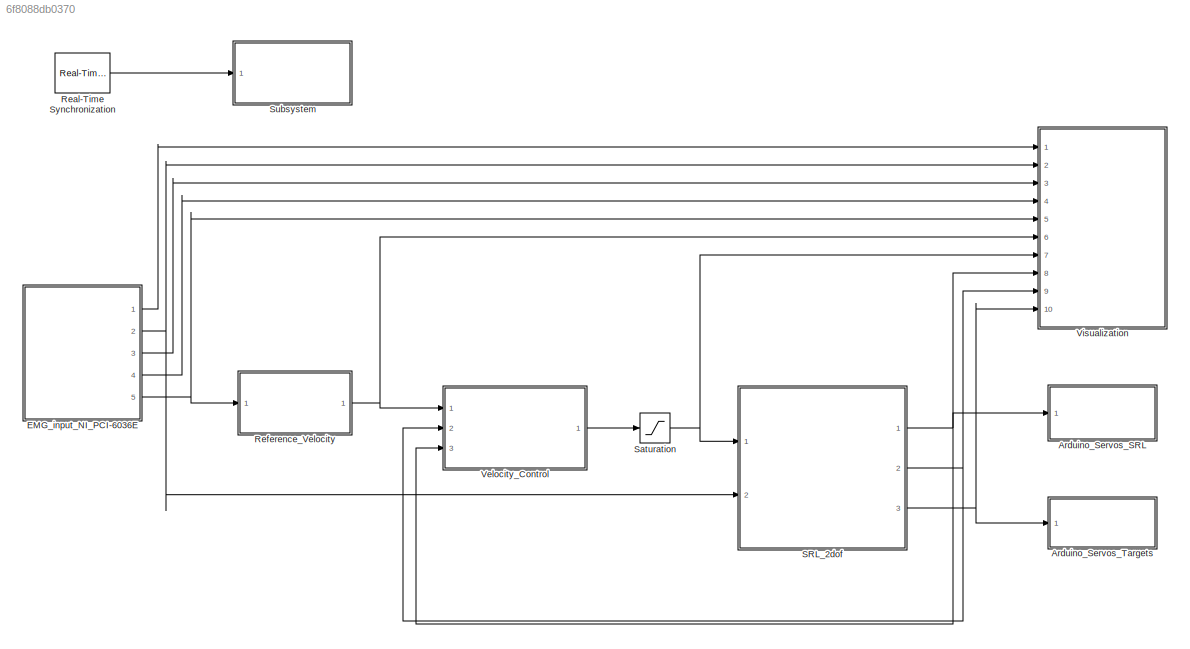
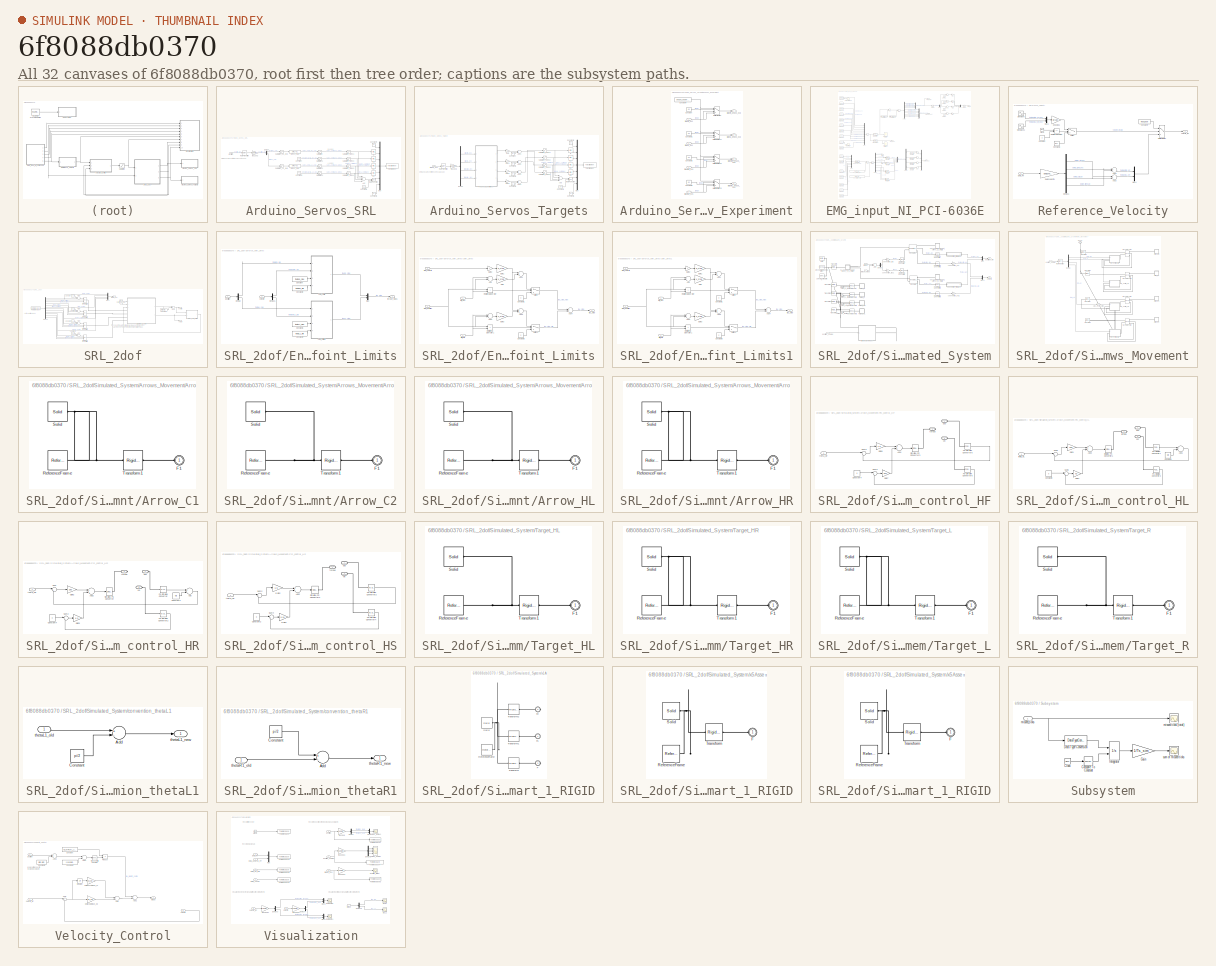
[diagram: thumbnail index - all 32 canvases of the model, root first then tree order]
MODEL slx_6f8088db0370
KIND model
CONFIG AbsTol = auto
CONFIG EnableMultiTasking = on
CONFIG FixedStep = auto
CONFIG MaxStep = auto
CONFIG MinStep = auto
CONFIG RelTol = 1e-3
CONFIG SampleTimeConstraint = Unconstrained
CONFIG Solver = ode45
CONFIG SolverName = ode45
CONFIG StartTime = 0.0
CONFIG StopTime = T_end
BLOCK [SubSystem] Arduino_Servos_SRL
  Ports = [1]
  RequestExecContextInheritance = off
  Variant = off
BLOCK [Sum] Arduino_Servos_SRL/Add
  InputSameDT = off
  Inputs = ++++
  OutDataTypeStr = Inherit: Inherit via internal rule
  Ports = [4, 1]
  SaturateOnIntegerOverflow = off
BLOCK [Constant] Arduino_Servos_SRL/Constant
  Value = 140
BLOCK [Constant] Arduino_Servos_SRL/Constant1
  Value = 43
BLOCK [Constant] Arduino_Servos_SRL/Constant4
  Value = 13
BLOCK [Constant] Arduino_Servos_SRL/Constant5
  Value = 10
BLOCK [Constant] Arduino_Servos_SRL/Constant6
  Value = 255
BLOCK [Demux] Arduino_Servos_SRL/Demux
  DisplayOption = bar
  Outputs = 2
  Ports = [1, 2]
BLOCK [InitialCondition] Arduino_Servos_SRL/IC
  Value = 90
BLOCK [InitialCondition] Arduino_Servos_SRL/IC1
  Value = 90
BLOCK [InitialCondition] Arduino_Servos_SRL/IC2
  Value = 90
BLOCK [InitialCondition] Arduino_Servos_SRL/IC3
  Value = 90
BLOCK [Math] Arduino_Servos_SRL/Math Function
  Operator = mod
  Ports = [2, 1]
BLOCK [Mux] Arduino_Servos_SRL/Mux
  DisplayOption = bar
  Inputs = 7
  Ports = [7, 1]
BLOCK [RateTransition] Arduino_Servos_SRL/Rate Transition
  Deterministic = off
  OutPortSampleTime = 0.008
BLOCK [Saturate] Arduino_Servos_SRL/Saturation
  InputPortMap = u0
  LowerLimit = 23
  Ports = [1, 1]
  UpperLimit = 150
BLOCK [Saturate] Arduino_Servos_SRL/Saturation1
  InputPortMap = u0
  LowerLimit = 90
  Ports = [1, 1]
  UpperLimit = 140
BLOCK [Saturate] Arduino_Servos_SRL/Saturation2
  InputPortMap = u0
  LowerLimit = 30
  Ports = [1, 1]
  UpperLimit = 158
BLOCK [Saturate] Arduino_Servos_SRL/Saturation3
  InputPortMap = u0
  LowerLimit = 43
  Ports = [1, 1]
  UpperLimit = 93
BLOCK [Saturate] Arduino_Servos_SRL/Saturation_L1_deg
  InputPortMap = u0
  LowerLimit = thetaL1_min/pi*180
  Ports = [1, 1]
  UpperLimit = thetaL1_max/pi*180
BLOCK [Saturate] Arduino_Servos_SRL/Saturation_R1_deg
  InputPortMap = u0
  LowerLimit = thetaR1_min/pi*180
  Ports = [1, 1]
  UpperLimit = thetaR1_max/pi*180
BLOCK [Saturate] Arduino_Servos_SRL/Saturation_Servo1
  InputPortMap = u0
  LowerLimit = 0
  Ports = [1, 1]
  UpperLimit = 180
BLOCK [Saturate] Arduino_Servos_SRL/Saturation_Servo2
  InputPortMap = u0
  LowerLimit = 0
  Ports = [1, 1]
  UpperLimit = 180
BLOCK [Saturate] Arduino_Servos_SRL/Saturation_Servo3
  InputPortMap = u0
  LowerLimit = 0
  Ports = [1, 1]
  UpperLimit = 180
BLOCK [Saturate] Arduino_Servos_SRL/Saturation_Servo4
  InputPortMap = u0
  LowerLimit = 0
  Ports = [1, 1]
  UpperLimit = 180
BLOCK [Fcn] Arduino_Servos_SRL/Servo1_map
  Expr = u*m1+q1
BLOCK [Fcn] Arduino_Servos_SRL/Servo3_map
  Expr = u*m3+q3
BLOCK [Reference] Arduino_Servos_SRL/To Instrument  REF=instrumentlib/To Instrument
  Ports = [1]
  SourceBlock = instrumentlib/To Instrument
  SourceProductBaseCode = IC
  SourceProductName = Instrument Control Toolbox
  SourceType = toinstrument
BLOCK [Inport] Arduino_Servos_SRL/position
  IconDisplay = Port number
BLOCK [Gain] Arduino_Servos_SRL/rad2deg
  Gain = 180/pi
  OutDataTypeStr = Inherit: Inherit via internal rule
  ParamDataTypeStr = Inherit: Inherit via internal rule
  SaturateOnIntegerOverflow = off
BLOCK [SubSystem] Arduino_Servos_Targets
  Ports = [1]
  RequestExecContextInheritance = off
  Variant = off
BLOCK [Sum] Arduino_Servos_Targets/Add
  InputSameDT = off
  Inputs = ++++
  OutDataTypeStr = Inherit: Inherit via internal rule
  Ports = [4, 1]
  SaturateOnIntegerOverflow = off
BLOCK [Sum] Arduino_Servos_Targets/Add1
  InputSameDT = off
  OutDataTypeStr = Inherit: Inherit via internal rule
  Ports = [2, 1]
  SaturateOnIntegerOverflow = off
BLOCK [Sum] Arduino_Servos_Targets/Add2
  InputSameDT = off
  OutDataTypeStr = Inherit: Inherit via internal rule
  Ports = [2, 1]
  SaturateOnIntegerOverflow = off
BLOCK [Sum] Arduino_Servos_Targets/Add3
  InputSameDT = off
  OutDataTypeStr = Inherit: Inherit via internal rule
  Ports = [2, 1]
  SaturateOnIntegerOverflow = off
BLOCK [Sum] Arduino_Servos_Targets/Add4
  InputSameDT = off
  OutDataTypeStr = Inherit: Inherit via internal rule
  Ports = [2, 1]
  SaturateOnIntegerOverflow = off
BLOCK [Constant] Arduino_Servos_Targets/Constant
  Value = 90
BLOCK [Constant] Arduino_Servos_Targets/Constant1
  Value = 90
BLOCK [Constant] Arduino_Servos_Targets/Constant2
  Value = 90
BLOCK [Constant] Arduino_Servos_Targets/Constant3
  Value = 90
BLOCK [Constant] Arduino_Servos_Targets/Constant4
  Value = 13
BLOCK [Constant] Arduino_Servos_Targets/Constant5
  Value = 10
BLOCK [Constant] Arduino_Servos_Targets/Constant6
  Value = 255
BLOCK [Demux] Arduino_Servos_Targets/Demux
  DisplayOption = bar
  Ports = [1, 4]
BLOCK [Gain] Arduino_Servos_Targets/Gain
  Gain = -1
  OutDataTypeStr = Inherit: Inherit via internal rule
  ParamDataTypeStr = Inherit: Inherit via internal rule
  SaturateOnIntegerOverflow = off
BLOCK [Gain] Arduino_Servos_Targets/Gain1
  Gain = -1
  OutDataTypeStr = Inherit: Inherit via internal rule
  ParamDataTypeStr = Inherit: Inherit via internal rule
  SaturateOnIntegerOverflow = off
BLOCK [Gain] Arduino_Servos_Targets/Gain2
  Gain = -1
  OutDataTypeStr = Inherit: Inherit via internal rule
  ParamDataTypeStr = Inherit: Inherit via internal rule
  SaturateOnIntegerOverflow = off
BLOCK [Gain] Arduino_Servos_Targets/Gain3
  Gain = -1
  OutDataTypeStr = Inherit: Inherit via internal rule
  ParamDataTypeStr = Inherit: Inherit via internal rule
  SaturateOnIntegerOverflow = off
BLOCK [InitialCondition] Arduino_Servos_Targets/IC
  Value = 90
BLOCK [InitialCondition] Arduino_Servos_Targets/IC1
  Value = 90
BLOCK [InitialCondition] Arduino_Servos_Targets/IC2
  Value = 90
BLOCK [InitialCondition] Arduino_Servos_Targets/IC3
  Value = 90
BLOCK [Math] Arduino_Servos_Targets/Math Function
  Operator = mod
  Ports = [2, 1]
BLOCK [Mux] Arduino_Servos_Targets/Mux
  DisplayOption = bar
  Inputs = 7
  Ports = [7, 1]
BLOCK [SubSystem] Arduino_Servos_Targets/Phases_Experiment
  Ports = [4, 4]
  RequestExecContextInheritance = off
  Variant = off
BLOCK [Constant] Arduino_Servos_Targets/Phases_Experiment/Constant
  Value = -60
BLOCK [Constant] Arduino_Servos_Targets/Phases_Experiment/Constant1
  Value = 60
BLOCK [Constant] Arduino_Servos_Targets/Phases_Experiment/Constant3
  Value = 60
BLOCK [Constant] Arduino_Servos_Targets/Phases_Experiment/Constant5
  Value = -60
BLOCK [Constant] Arduino_Servos_Targets/Phases_Experiment/Constant7
  Value = phase_experiment
BLOCK [MultiPortSwitch] Arduino_Servos_Targets/Phases_Experiment/Multiport Switch
  InputSameDT = off
  Ports = [4, 1]
  SaturateOnIntegerOverflow = off
BLOCK [MultiPortSwitch] Arduino_Servos_Targets/Phases_Experiment/Multiport Switch1
  InputSameDT = off
  Ports = [4, 1]
  SaturateOnIntegerOverflow = off
BLOCK [MultiPortSwitch] Arduino_Servos_Targets/Phases_Experiment/Multiport Switch2
  InputSameDT = off
  Ports = [4, 1]
  SaturateOnIntegerOverflow = off
BLOCK [MultiPortSwitch] Arduino_Servos_Targets/Phases_Experiment/Multiport Switch3
  InputSameDT = off
  Ports = [4, 1]
  SaturateOnIntegerOverflow = off
BLOCK [Outport] Arduino_Servos_Targets/Phases_Experiment/targetHL_phase_exp
  IconDisplay = Port number
  Port = 4
BLOCK [Inport] Arduino_Servos_Targets/Phases_Experiment/targetHL_pos
  IconDisplay = Port number
  Port = 4
BLOCK [Outport] Arduino_Servos_Targets/Phases_Experiment/targetHR_phase_exp
  IconDisplay = Port number
  Port = 3
BLOCK [Inport] Arduino_Servos_Targets/Phases_Experiment/targetHR_pos
  IconDisplay = Port number
  Port = 3
BLOCK [Outport] Arduino_Servos_Targets/Phases_Experiment/targetL_phase_exp
  IconDisplay = Port number
  Port = 2
BLOCK [Inport] Arduino_Servos_Targets/Phases_Experiment/targetL_pos
  IconDisplay = Port number
  Port = 2
BLOCK [Outport] Arduino_Servos_Targets/Phases_Experiment/targetR_phase_exp
  IconDisplay = Port number
BLOCK [Inport] Arduino_Servos_Targets/Phases_Experiment/targetR_pos
  IconDisplay = Port number
BLOCK [RateTransition] Arduino_Servos_Targets/Rate Transition
  Deterministic = off
  OutPortSampleTime = 0.008
BLOCK [Saturate] Arduino_Servos_Targets/Saturation_Servo1
  InputPortMap = u0
  LowerLimit = 0
  Ports = [1, 1]
  UpperLimit = 180
BLOCK [Saturate] Arduino_Servos_Targets/Saturation_Servo2
  InputPortMap = u0
  LowerLimit = 0
  Ports = [1, 1]
  UpperLimit = 180
BLOCK [Saturate] Arduino_Servos_Targets/Saturation_Servo3
  InputPortMap = u0
  LowerLimit = 0
  Ports = [1, 1]
  UpperLimit = 180
BLOCK [Saturate] Arduino_Servos_Targets/Saturation_Servo4
  InputPortMap = u0
  LowerLimit = 0
  Ports = [1, 1]
  UpperLimit = 180
BLOCK [Reference] Arduino_Servos_Targets/To Instrument  REF=instrumentlib/To Instrument
  Ports = [1]
  SourceBlock = instrumentlib/To Instrument
  SourceProductBaseCode = IC
  SourceProductName = Instrument Control Toolbox
  SourceType = toinstrument
BLOCK [Gain] Arduino_Servos_Targets/rad2deg
  Gain = 180/pi
  OutDataTypeStr = Inherit: Inherit via internal rule
  ParamDataTypeStr = Inherit: Inherit via internal rule
  SaturateOnIntegerOverflow = off
BLOCK [Inport] Arduino_Servos_Targets/targets_pos
  IconDisplay = Port number
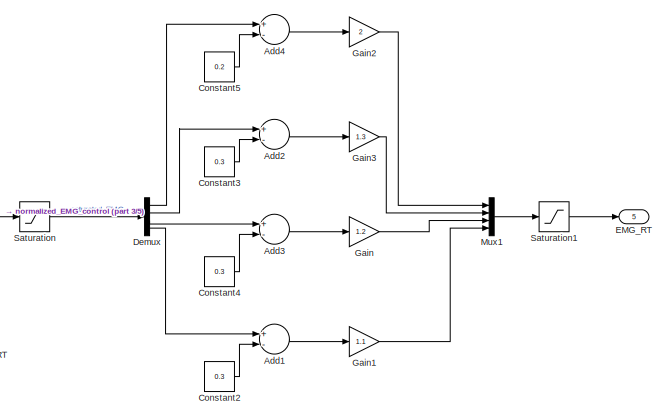
[diagram: EMG_input_NI_PCI-6036E - part 1/5, top right region]
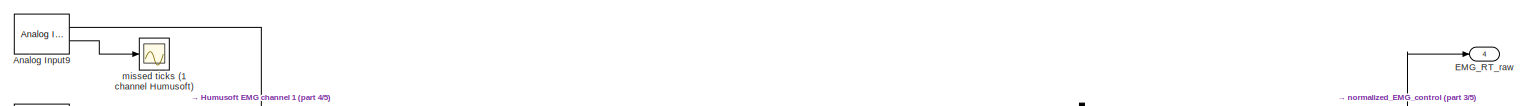
[diagram: EMG_input_NI_PCI-6036E - part 2/5, top center region]
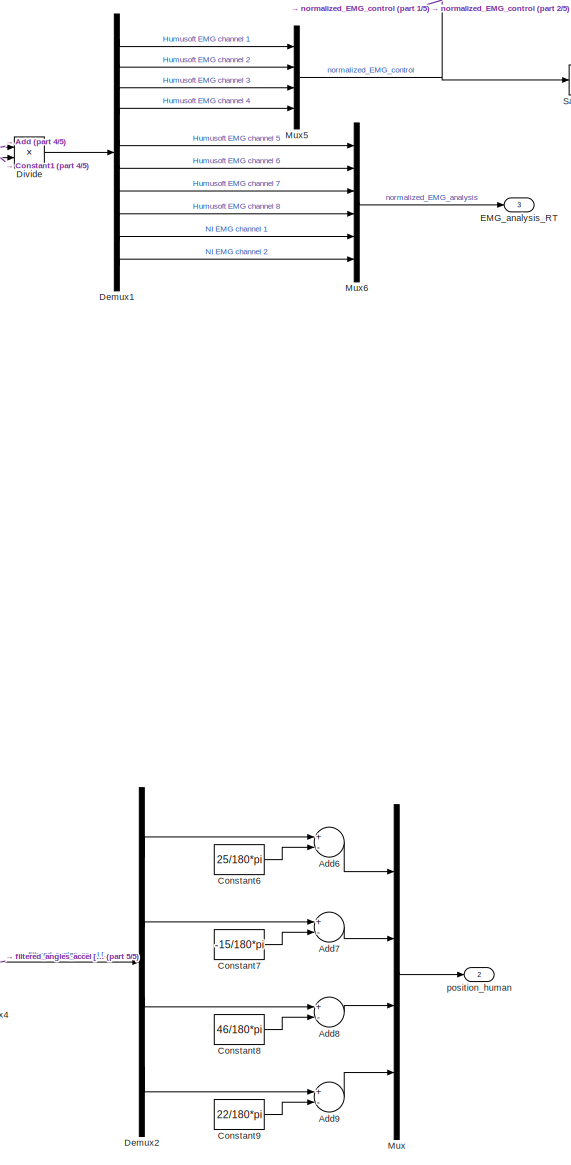
[diagram: EMG_input_NI_PCI-6036E - part 3/5, central region]
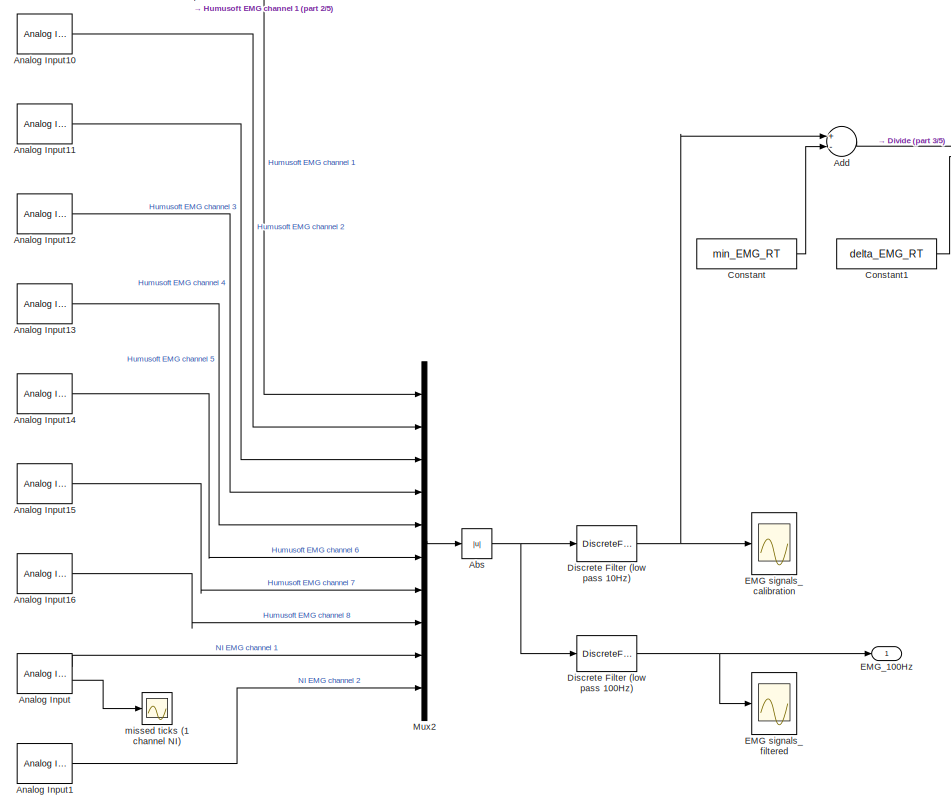
[diagram: EMG_input_NI_PCI-6036E - part 4/5, top left region]
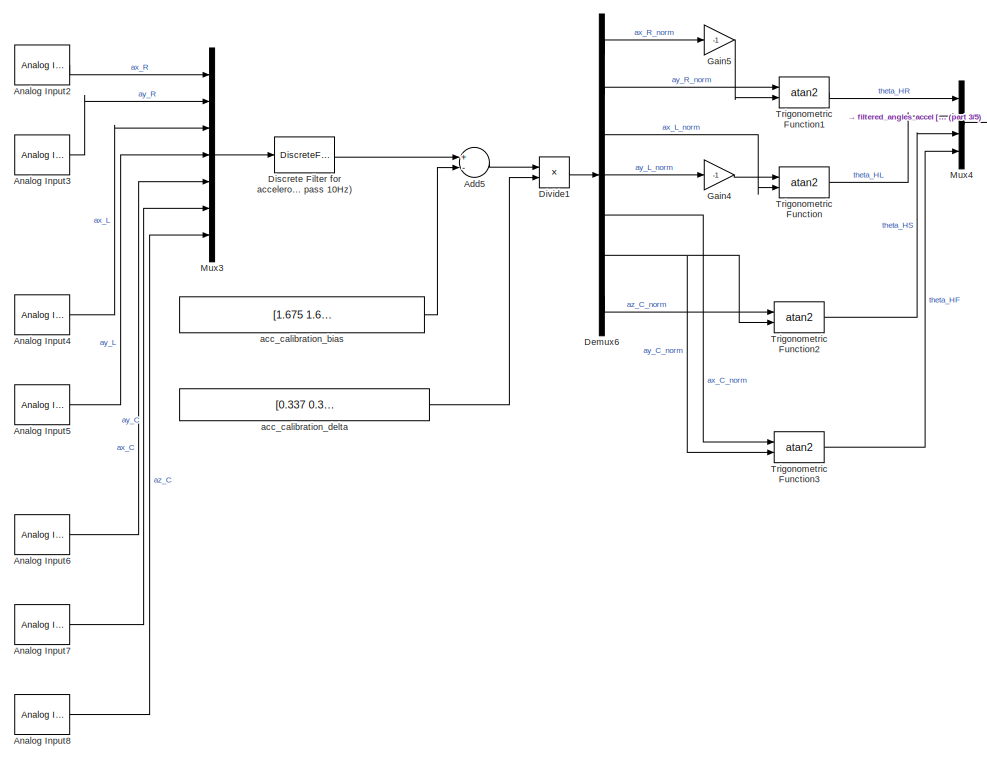
[diagram: EMG_input_NI_PCI-6036E - part 5/5, bottom left region]
BLOCK [SubSystem] EMG_input_NI_PCI-6036E
  Ports = [0, 5]
  RequestExecContextInheritance = off
  Variant = off
BLOCK [Abs] EMG_input_NI_PCI-6036E/Abs
  SaturateOnIntegerOverflow = off
BLOCK [Sum] EMG_input_NI_PCI-6036E/Add
  InputSameDT = off
  Inputs = +-
  OutDataTypeStr = Inherit: Inherit via internal rule
  Ports = [2, 1]
  SaturateOnIntegerOverflow = off
BLOCK [Sum] EMG_input_NI_PCI-6036E/Add1
  InputSameDT = off
  Inputs = +-
  OutDataTypeStr = Inherit: Inherit via internal rule
  Ports = [2, 1]
  SaturateOnIntegerOverflow = off
BLOCK [Sum] EMG_input_NI_PCI-6036E/Add2
  InputSameDT = off
  Inputs = +-
  OutDataTypeStr = Inherit: Inherit via internal rule
  Ports = [2, 1]
  SaturateOnIntegerOverflow = off
BLOCK [Sum] EMG_input_NI_PCI-6036E/Add3
  InputSameDT = off
  Inputs = +-
  OutDataTypeStr = Inherit: Inherit via internal rule
  Ports = [2, 1]
  SaturateOnIntegerOverflow = off
BLOCK [Sum] EMG_input_NI_PCI-6036E/Add4
  InputSameDT = off
  Inputs = +-
  OutDataTypeStr = Inherit: Inherit via internal rule
  Ports = [2, 1]
  SaturateOnIntegerOverflow = off
BLOCK [Sum] EMG_input_NI_PCI-6036E/Add5
  InputSameDT = off
  Inputs = +-
  OutDataTypeStr = Inherit: Inherit via internal rule
  Ports = [2, 1]
  SaturateOnIntegerOverflow = off
BLOCK [Sum] EMG_input_NI_PCI-6036E/Add6
  InputSameDT = off
  Inputs = +-
  OutDataTypeStr = Inherit: Inherit via internal rule
  Ports = [2, 1]
  SaturateOnIntegerOverflow = off
BLOCK [Sum] EMG_input_NI_PCI-6036E/Add7
  InputSameDT = off
  Inputs = +-
  OutDataTypeStr = Inherit: Inherit via internal rule
  Ports = [2, 1]
  SaturateOnIntegerOverflow = off
BLOCK [Sum] EMG_input_NI_PCI-6036E/Add8
  InputSameDT = off
  Inputs = +-
  OutDataTypeStr = Inherit: Inherit via internal rule
  Ports = [2, 1]
  SaturateOnIntegerOverflow = off
BLOCK [Sum] EMG_input_NI_PCI-6036E/Add9
  InputSameDT = off
  Inputs = +-
  OutDataTypeStr = Inherit: Inherit via internal rule
  Ports = [2, 1]
  SaturateOnIntegerOverflow = off
BLOCK [Reference] EMG_input_NI_PCI-6036E/Analog Input  REF=sldrtlib/Analog Input
  AttributesFormatString = National Instruments\nPCI-6036E [auto]
  Ports = [0, 2]
  SourceBlock = sldrtlib/Analog Input
  SourceProductBaseCode = WT
  SourceProductName = Simulink Desktop Real-Time
  SourceType = Simulink Desktop Real-Time Analog Input
BLOCK [Reference] EMG_input_NI_PCI-6036E/Analog Input1  REF=sldrtlib/Analog Input
  AttributesFormatString = National Instruments\nPCI-6036E [auto]
  Ports = [0, 1]
  SourceBlock = sldrtlib/Analog Input
  SourceProductBaseCode = WT
  SourceProductName = Simulink Desktop Real-Time
  SourceType = Simulink Desktop Real-Time Analog Input
BLOCK [Reference] EMG_input_NI_PCI-6036E/Analog Input10  REF=sldrtlib/Analog Input
  AttributesFormatString = Humusoft\nAD622 [auto]
  Ports = [0, 1]
  SourceBlock = sldrtlib/Analog Input
  SourceProductBaseCode = WT
  SourceProductName = Simulink Desktop Real-Time
  SourceType = Simulink Desktop Real-Time Analog Input
BLOCK [Reference] EMG_input_NI_PCI-6036E/Analog Input11  REF=sldrtlib/Analog Input
  AttributesFormatString = Humusoft\nAD622 [auto]
  Ports = [0, 1]
  SourceBlock = sldrtlib/Analog Input
  SourceProductBaseCode = WT
  SourceProductName = Simulink Desktop Real-Time
  SourceType = Simulink Desktop Real-Time Analog Input
BLOCK [Reference] EMG_input_NI_PCI-6036E/Analog Input12  REF=sldrtlib/Analog Input
  AttributesFormatString = Humusoft\nAD622 [auto]
  Ports = [0, 1]
  SourceBlock = sldrtlib/Analog Input
  SourceProductBaseCode = WT
  SourceProductName = Simulink Desktop Real-Time
  SourceType = Simulink Desktop Real-Time Analog Input
BLOCK [Reference] EMG_input_NI_PCI-6036E/Analog Input13  REF=sldrtlib/Analog Input
  AttributesFormatString = Humusoft\nAD622 [auto]
  Ports = [0, 1]
  SourceBlock = sldrtlib/Analog Input
  SourceProductBaseCode = WT
  SourceProductName = Simulink Desktop Real-Time
  SourceType = Simulink Desktop Real-Time Analog Input
BLOCK [Reference] EMG_input_NI_PCI-6036E/Analog Input14  REF=sldrtlib/Analog Input
  AttributesFormatString = Humusoft\nAD622 [auto]
  Ports = [0, 1]
  SourceBlock = sldrtlib/Analog Input
  SourceProductBaseCode = WT
  SourceProductName = Simulink Desktop Real-Time
  SourceType = Simulink Desktop Real-Time Analog Input
BLOCK [Reference] EMG_input_NI_PCI-6036E/Analog Input15  REF=sldrtlib/Analog Input
  AttributesFormatString = Humusoft\nAD622 [auto]
  Ports = [0, 1]
  SourceBlock = sldrtlib/Analog Input
  SourceProductBaseCode = WT
  SourceProductName = Simulink Desktop Real-Time
  SourceType = Simulink Desktop Real-Time Analog Input
BLOCK [Reference] EMG_input_NI_PCI-6036E/Analog Input16  REF=sldrtlib/Analog Input
  AttributesFormatString = Humusoft\nAD622 [auto]
  Ports = [0, 1]
  SourceBlock = sldrtlib/Analog Input
  SourceProductBaseCode = WT
  SourceProductName = Simulink Desktop Real-Time
  SourceType = Simulink Desktop Real-Time Analog Input
BLOCK [Reference] EMG_input_NI_PCI-6036E/Analog Input2  REF=sldrtlib/Analog Input
  AttributesFormatString = National Instruments\nPCI-6036E [auto]
  Ports = [0, 1]
  SourceBlock = sldrtlib/Analog Input
  SourceProductBaseCode = WT
  SourceProductName = Simulink Desktop Real-Time
  SourceType = Simulink Desktop Real-Time Analog Input
BLOCK [Reference] EMG_input_NI_PCI-6036E/Analog Input3  REF=sldrtlib/Analog Input
  AttributesFormatString = National Instruments\nPCI-6036E [auto]
  Ports = [0, 1]
  SourceBlock = sldrtlib/Analog Input
  SourceProductBaseCode = WT
  SourceProductName = Simulink Desktop Real-Time
  SourceType = Simulink Desktop Real-Time Analog Input
BLOCK [Reference] EMG_input_NI_PCI-6036E/Analog Input4  REF=sldrtlib/Analog Input
  AttributesFormatString = National Instruments\nPCI-6036E [auto]
  Ports = [0, 1]
  SourceBlock = sldrtlib/Analog Input
  SourceProductBaseCode = WT
  SourceProductName = Simulink Desktop Real-Time
  SourceType = Simulink Desktop Real-Time Analog Input
BLOCK [Reference] EMG_input_NI_PCI-6036E/Analog Input5  REF=sldrtlib/Analog Input
  AttributesFormatString = National Instruments\nPCI-6036E [auto]
  Ports = [0, 1]
  SourceBlock = sldrtlib/Analog Input
  SourceProductBaseCode = WT
  SourceProductName = Simulink Desktop Real-Time
  SourceType = Simulink Desktop Real-Time Analog Input
BLOCK [Reference] EMG_input_NI_PCI-6036E/Analog Input6  REF=sldrtlib/Analog Input
  AttributesFormatString = National Instruments\nPCI-6036E [auto]
  Ports = [0, 1]
  SourceBlock = sldrtlib/Analog Input
  SourceProductBaseCode = WT
  SourceProductName = Simulink Desktop Real-Time
  SourceType = Simulink Desktop Real-Time Analog Input
BLOCK [Reference] EMG_input_NI_PCI-6036E/Analog Input7  REF=sldrtlib/Analog Input
  AttributesFormatString = National Instruments\nPCI-6036E [auto]
  Ports = [0, 1]
  SourceBlock = sldrtlib/Analog Input
  SourceProductBaseCode = WT
  SourceProductName = Simulink Desktop Real-Time
  SourceType = Simulink Desktop Real-Time Analog Input
BLOCK [Reference] EMG_input_NI_PCI-6036E/Analog Input8  REF=sldrtlib/Analog Input
  AttributesFormatString = National Instruments\nPCI-6036E [auto]
  Ports = [0, 1]
  SourceBlock = sldrtlib/Analog Input
  SourceProductBaseCode = WT
  SourceProductName = Simulink Desktop Real-Time
  SourceType = Simulink Desktop Real-Time Analog Input
BLOCK [Reference] EMG_input_NI_PCI-6036E/Analog Input9  REF=sldrtlib/Analog Input
  AttributesFormatString = Humusoft\nAD622 [auto]
  Ports = [0, 2]
  SourceBlock = sldrtlib/Analog Input
  SourceProductBaseCode = WT
  SourceProductName = Simulink Desktop Real-Time
  SourceType = Simulink Desktop Real-Time Analog Input
BLOCK [Constant] EMG_input_NI_PCI-6036E/Constant
  Value = min_EMG_RT
BLOCK [Constant] EMG_input_NI_PCI-6036E/Constant1
  Value = delta_EMG_RT
BLOCK [Constant] EMG_input_NI_PCI-6036E/Constant2
  Value = 0.3
BLOCK [Constant] EMG_input_NI_PCI-6036E/Constant3
  Value = 0.3
BLOCK [Constant] EMG_input_NI_PCI-6036E/Constant4
  Value = 0.3
BLOCK [Constant] EMG_input_NI_PCI-6036E/Constant5
  Value = 0.2
BLOCK [Constant] EMG_input_NI_PCI-6036E/Constant6
  Value = 25/180*pi
BLOCK [Constant] EMG_input_NI_PCI-6036E/Constant7
  Value = -15/180*pi
BLOCK [Constant] EMG_input_NI_PCI-6036E/Constant8
  Value = 46/180*pi
BLOCK [Constant] EMG_input_NI_PCI-6036E/Constant9
  Value = 22/180*pi
BLOCK [Demux] EMG_input_NI_PCI-6036E/Demux
  DisplayOption = bar
  Ports = [1, 4]
BLOCK [Demux] EMG_input_NI_PCI-6036E/Demux1
  DisplayOption = bar
  Outputs = 10
  Ports = [1, 10]
BLOCK [Demux] EMG_input_NI_PCI-6036E/Demux2
  DisplayOption = bar
  Ports = [1, 4]
BLOCK [Demux] EMG_input_NI_PCI-6036E/Demux6
  DisplayOption = bar
  Outputs = 7
  Ports = [1, 7]
BLOCK [DiscreteFilter] EMG_input_NI_PCI-6036E/Discrete Filter (low pass 100Hz)
  Denominator = A_butter_low
  InputPortMap = u0
  Numerator = B_butter_low
  Ports = [1, 1]
BLOCK [DiscreteFilter] EMG_input_NI_PCI-6036E/Discrete Filter (low pass 10Hz)
  Denominator = A_butter_cal
  InputPortMap = u0
  Numerator = B_butter_cal
  Ports = [1, 1]
BLOCK [DiscreteFilter] EMG_input_NI_PCI-6036E/Discrete Filter for accelerometers (low pass 10Hz)
  Denominator = A_butter_acc
  InputPortMap = u0
  Numerator = B_butter_acc
  Ports = [1, 1]
BLOCK [Product] EMG_input_NI_PCI-6036E/Divide
  InputSameDT = off
  Inputs = */
  OutDataTypeStr = Inherit: Inherit via internal rule
  Ports = [2, 1]
  RndMeth = Floor
  SaturateOnIntegerOverflow = off
BLOCK [Product] EMG_input_NI_PCI-6036E/Divide1
  InputSameDT = off
  Inputs = */
  OutDataTypeStr = Inherit: Inherit via internal rule
  Ports = [2, 1]
  RndMeth = Floor
  SaturateOnIntegerOverflow = off
BLOCK [Scope] EMG_input_NI_PCI-6036E/EMG signals_calibration
  NumInputPorts = 1
  Ports = [1]
  ScopeSpecificationString = C++SS(StrPVP('Location','[177, 426, 769, 899]'),StrPVP('Open','off'),MxPVP('AxesTitles',53,'struct(''axes1'',''%<SignalLabel>'')'),MxPVP('ScopeGraphics',56,'struct(''FigureColor'',''[0.501960784313725 0.501960784313725 0.501960784313725]'',''AxesColor'',''[0 0 0]'',''AxesTickColor'',''[1 1 1]'',''LineColors'',''[1 1 0;1 0 1;0 1 1;1 0 0;0 1 0;0 0 1]'',''LineStyles'',''-|-|-|-|-|-'',''LineWidths'','...<+282ch>
BLOCK [Scope] EMG_input_NI_PCI-6036E/EMG signals_filtered
  NumInputPorts = 1
  Ports = [1]
  ScopeSpecificationString = C++SS(StrPVP('Location','[177, 426, 769, 899]'),StrPVP('Open','off'),MxPVP('AxesTitles',53,'struct(''axes1'',''%<SignalLabel>'')'),MxPVP('ScopeGraphics',56,'struct(''FigureColor'',''[0.501960784313725 0.501960784313725 0.501960784313725]'',''AxesColor'',''[0 0 0]'',''AxesTickColor'',''[1 1 1]'',''LineColors'',''[1 1 0;1 0 1;0 1 1;1 0 0;0 1 0;0 0 1]'',''LineStyles'',''-|-|-|-|-|-'',''LineWidths'','...<+281ch>
BLOCK [Outport] EMG_input_NI_PCI-6036E/EMG_100Hz
  IconDisplay = Port number
BLOCK [Outport] EMG_input_NI_PCI-6036E/EMG_RT
  IconDisplay = Port number
  Port = 5
BLOCK [Outport] EMG_input_NI_PCI-6036E/EMG_RT_raw
  IconDisplay = Port number
  Port = 4
BLOCK [Outport] EMG_input_NI_PCI-6036E/EMG_analysis_RT
  IconDisplay = Port number
  Port = 3
BLOCK [Gain] EMG_input_NI_PCI-6036E/Gain
  Gain = 1.2
  OutDataTypeStr = Inherit: Inherit via internal rule
  ParamDataTypeStr = Inherit: Inherit via internal rule
  SaturateOnIntegerOverflow = off
BLOCK [Gain] EMG_input_NI_PCI-6036E/Gain1
  Gain = 1.1
  OutDataTypeStr = Inherit: Inherit via internal rule
  ParamDataTypeStr = Inherit: Inherit via internal rule
  SaturateOnIntegerOverflow = off
BLOCK [Gain] EMG_input_NI_PCI-6036E/Gain2
  Gain = 2
  OutDataTypeStr = Inherit: Inherit via internal rule
  ParamDataTypeStr = Inherit: Inherit via internal rule
  SaturateOnIntegerOverflow = off
BLOCK [Gain] EMG_input_NI_PCI-6036E/Gain3
  Gain = 1.3
  OutDataTypeStr = Inherit: Inherit via internal rule
  ParamDataTypeStr = Inherit: Inherit via internal rule
  SaturateOnIntegerOverflow = off
BLOCK [Gain] EMG_input_NI_PCI-6036E/Gain4
  Gain = -1
  OutDataTypeStr = Inherit: Inherit via internal rule
  ParamDataTypeStr = Inherit: Inherit via internal rule
  SaturateOnIntegerOverflow = off
BLOCK [Gain] EMG_input_NI_PCI-6036E/Gain5
  Gain = -1
  OutDataTypeStr = Inherit: Inherit via internal rule
  ParamDataTypeStr = Inherit: Inherit via internal rule
  SaturateOnIntegerOverflow = off
BLOCK [Mux] EMG_input_NI_PCI-6036E/Mux
  DisplayOption = bar
  Ports = [4, 1]
BLOCK [Mux] EMG_input_NI_PCI-6036E/Mux1
  DisplayOption = bar
  Ports = [4, 1]
BLOCK [Mux] EMG_input_NI_PCI-6036E/Mux2
  DisplayOption = bar
  Inputs = 10
  Ports = [10, 1]
BLOCK [Mux] EMG_input_NI_PCI-6036E/Mux3
  DisplayOption = bar
  Inputs = 7
  Ports = [7, 1]
BLOCK [Mux] EMG_input_NI_PCI-6036E/Mux4
  DisplayOption = bar
  Ports = [4, 1]
BLOCK [Mux] EMG_input_NI_PCI-6036E/Mux5
  DisplayOption = bar
  Ports = [4, 1]
BLOCK [Mux] EMG_input_NI_PCI-6036E/Mux6
  DisplayOption = bar
  Inputs = 6
  Ports = [6, 1]
BLOCK [Saturate] EMG_input_NI_PCI-6036E/Saturation
  InputPortMap = u0
  LowerLimit = 0
  Ports = [1, 1]
  UpperLimit = 1
BLOCK [Saturate] EMG_input_NI_PCI-6036E/Saturation1
  InputPortMap = u0
  LowerLimit = 0
  Ports = [1, 1]
  UpperLimit = 1
BLOCK [Trigonometry] EMG_input_NI_PCI-6036E/Trigonometric Function
  Operator = atan2
  Ports = [2, 1]
BLOCK [Trigonometry] EMG_input_NI_PCI-6036E/Trigonometric Function1
  Operator = atan2
  Ports = [2, 1]
BLOCK [Trigonometry] EMG_input_NI_PCI-6036E/Trigonometric Function2
  Operator = atan2
  Ports = [2, 1]
BLOCK [Trigonometry] EMG_input_NI_PCI-6036E/Trigonometric Function3
  Operator = atan2
  Ports = [2, 1]
BLOCK [Constant] EMG_input_NI_PCI-6036E/acc_calibration_bias
  Value = [1.675  1.663  1.675  1.659  1.663  1.657  1.665]
BLOCK [Constant] EMG_input_NI_PCI-6036E/acc_calibration_delta
  Value = [0.337  0.330  0.333  0.319  0.336  0.332  0.288]
BLOCK [Scope] EMG_input_NI_PCI-6036E/missed ticks (1 channel Humusoft)
  NumInputPorts = 1
  Ports = [1]
  ScopeSpecificationString = C++SS(StrPVP('Location','[50, 86, 641, 580]'),StrPVP('Open','off'),MxPVP('AxesTitles',53,'struct(''axes1'',''%<SignalLabel>'')'),MxPVP('ScopeGraphics',56,'struct(''FigureColor'',''[0.501960784313725 0.501960784313725 0.501960784313725]'',''AxesColor'',''[0 0 0]'',''AxesTickColor'',''[1 1 1]'',''LineColors'',''[1 1 0;1 0 1;0 1 1;1 0 0;0 1 0;0 0 1]'',''LineStyles'',''-|-|-|-|-|-'',''LineWidths'',''[...<+238ch>
BLOCK [Scope] EMG_input_NI_PCI-6036E/missed ticks (1 channel NI)
  NumInputPorts = 1
  Ports = [1]
  ScopeSpecificationString = C++SS(StrPVP('Location','[50, 86, 641, 580]'),StrPVP('Open','off'),MxPVP('AxesTitles',53,'struct(''axes1'',''%<SignalLabel>'')'),MxPVP('ScopeGraphics',56,'struct(''FigureColor'',''[0.501960784313725 0.501960784313725 0.501960784313725]'',''AxesColor'',''[0 0 0]'',''AxesTickColor'',''[1 1 1]'',''LineColors'',''[1 1 0;1 0 1;0 1 1;1 0 0;0 1 0;0 0 1]'',''LineStyles'',''-|-|-|-|-|-'',''LineWidths'',''[...<+237ch>
BLOCK [Outport] EMG_input_NI_PCI-6036E/position_human
  IconDisplay = Port number
  Port = 2
BLOCK [Reference] Real-Time Synchronization  REF=sldrtlib/Real-Time
Synchronization
  Ports = [0, 1]
  SourceBlock = sldrtlib/Real-Time\nSynchronization
  SourceProductBaseCode = WT
  SourceProductName = Simulink Desktop Real-Time
  SourceType = Simulink Desktop Real-Time Synchronization
BLOCK [SubSystem] Reference_Velocity
  Ports = [1, 1]
  RequestExecContextInheritance = off
  Variant = off
BLOCK [Sum] Reference_Velocity/Add2
  InputSameDT = off
  Inputs = +-
  OutDataTypeStr = Inherit: Inherit via internal rule
  Ports = [2, 1]
  SaturateOnIntegerOverflow = off
BLOCK [Sum] Reference_Velocity/Add3
  InputSameDT = off
  Inputs = -+
  OutDataTypeStr = Inherit: Inherit via internal rule
  Ports = [2, 1]
  SaturateOnIntegerOverflow = off
BLOCK [Clock] Reference_Velocity/Clock
BLOCK [Constant] Reference_Velocity/Constant
  Value = 2
BLOCK [Constant] Reference_Velocity/Constant1
  Value = [0 0]
BLOCK [Constant] Reference_Velocity/Constant4
  Value = input_type
BLOCK [Demux] Reference_Velocity/Demux1
  DisplayOption = bar
  Ports = [1, 4]
BLOCK [Gain] Reference_Velocity/EMG2velocity1
  Gain = EMG2vel_gain
  OutDataTypeStr = Inherit: Inherit via internal rule
  ParamDataTypeStr = Inherit: Inherit via internal rule
  SaturateOnIntegerOverflow = off
BLOCK [Inport] Reference_Velocity/EMG_RT
  IconDisplay = Port number
BLOCK [MultiPortSwitch] Reference_Velocity/Multiport Switch
  InputSameDT = off
  Inputs = 2
  Ports = [3, 1]
  SaturateOnIntegerOverflow = off
BLOCK [Mux] Reference_Velocity/Mux1
  DisplayOption = bar
  Inputs = 2
  Ports = [2, 1]
BLOCK [Mux] Reference_Velocity/Mux4
  DisplayOption = bar
  Inputs = 2
  Ports = [2, 1]
BLOCK [RelationalOperator] Reference_Velocity/Relational Operator
  InputSameDT = off
  Operator = <=
  OutDataTypeStr = boolean
  Ports = [2, 1]
BLOCK [Sin] Reference_Velocity/Sine Wave
  Amplitude = -40
  Frequency = 2*pi/(4)
  Ports = [0, 1]
  SampleTime = 0
BLOCK [Sin] Reference_Velocity/Sine Wave1
  Amplitude = -40
  Frequency = 2*pi/(4)
  Ports = [0, 1]
  SampleTime = 0
BLOCK [Switch] Reference_Velocity/Switch
  Criteria = u2 > Threshold
  InputSameDT = off
  SaturateOnIntegerOverflow = off
BLOCK [Gain] Reference_Velocity/deg2rad1
  Gain = pi/180
  OutDataTypeStr = Inherit: Inherit via internal rule
  ParamDataTypeStr = Inherit: Inherit via internal rule
  SaturateOnIntegerOverflow = off
BLOCK [Outport] Reference_Velocity/velocity_ref
  IconDisplay = Port number
BLOCK [SubSystem] SRL_2dof
  Ports = [2, 3]
  RequestExecContextInheritance = off
  Variant = off
BLOCK [Sum] SRL_2dof/Add1
  InputSameDT = off
  OutDataTypeStr = Inherit: Inherit via internal rule
  Ports = [2, 1]
  SaturateOnIntegerOverflow = off
BLOCK [Sum] SRL_2dof/Add2
  InputSameDT = off
  OutDataTypeStr = Inherit: Inherit via internal rule
  Ports = [2, 1]
  SaturateOnIntegerOverflow = off
BLOCK [Sum] SRL_2dof/Add3
  InputSameDT = off
  OutDataTypeStr = Inherit: Inherit via internal rule
  Ports = [2, 1]
  SaturateOnIntegerOverflow = off
BLOCK [Sum] SRL_2dof/Add4
  InputSameDT = off
  OutDataTypeStr = Inherit: Inherit via internal rule
  Ports = [2, 1]
  SaturateOnIntegerOverflow = off
BLOCK [Sum] SRL_2dof/Add5
  InputSameDT = off
  OutDataTypeStr = Inherit: Inherit via internal rule
  Ports = [2, 1]
  SaturateOnIntegerOverflow = off
BLOCK [Constant] SRL_2dof/Constant
  Value = pi/2
BLOCK [Constant] SRL_2dof/Constant1
  Value = -pi/2
BLOCK [Constant] SRL_2dof/Constant2
  Value = pi/2
BLOCK [Constant] SRL_2dof/Constant3
  Value = -pi/2
BLOCK [Constant] SRL_2dof/Constant4
  Value = [-pi/2 pi/2]
BLOCK [Demux] SRL_2dof/Demux1
  DisplayOption = bar
  Outputs = 12
  Ports = [1, 12]
BLOCK [SubSystem] SRL_2dof/Enforce_Joint_Limits
  Ports = [2, 1]
  RequestExecContextInheritance = off
  Variant = off
BLOCK [Constant] SRL_2dof/Enforce_Joint_Limits/Constant
  Value = thetaR1_max
BLOCK [Constant] SRL_2dof/Enforce_Joint_Limits/Constant1
  Value = thetaL1_max
BLOCK [Constant] SRL_2dof/Enforce_Joint_Limits/Constant2
  Value = thetaR1_min
BLOCK [Constant] SRL_2dof/Enforce_Joint_Limits/Constant3
  Value = thetaL1_min
BLOCK [Demux] SRL_2dof/Enforce_Joint_Limits/Demux
  DisplayOption = bar
  Outputs = 2
  Ports = [1, 2]
BLOCK [Demux] SRL_2dof/Enforce_Joint_Limits/Demux1
  DisplayOption = bar
  Outputs = 2
  Ports = [1, 2]
BLOCK [SubSystem] SRL_2dof/Enforce_Joint_Limits/Joint_Limits
  Ports = [4, 1]
  RequestExecContextInheritance = off
  Variant = off
BLOCK [Sum] SRL_2dof/Enforce_Joint_Limits/Joint_Limits/Add
  InputSameDT = off
  Inputs = +-
  OutDataTypeStr = Inherit: Inherit via internal rule
  Ports = [2, 1]
  SaturateOnIntegerOverflow = off
BLOCK [Sum] SRL_2dof/Enforce_Joint_Limits/Joint_Limits/Add1
  InputSameDT = off
  OutDataTypeStr = Inherit: Inherit via internal rule
  Ports = [2, 1]
  SaturateOnIntegerOverflow = off
BLOCK [Sum] SRL_2dof/Enforce_Joint_Limits/Joint_Limits/Add2
  InputSameDT = off
  Inputs = +-
  OutDataTypeStr = Inherit: Inherit via internal rule
  Ports = [2, 1]
  SaturateOnIntegerOverflow = off
BLOCK [Sum] SRL_2dof/Enforce_Joint_Limits/Joint_Limits/Add3
  InputSameDT = off
  OutDataTypeStr = Inherit: Inherit via internal rule
  Ports = [2, 1]
  SaturateOnIntegerOverflow = off
BLOCK [Sum] SRL_2dof/Enforce_Joint_Limits/Joint_Limits/Add4
  InputSameDT = off
  OutDataTypeStr = Inherit: Inherit via internal rule
  Ports = [2, 1]
  SaturateOnIntegerOverflow = off
BLOCK [Constant] SRL_2dof/Enforce_Joint_Limits/Joint_Limits/Constant1
  Value = 0
BLOCK [Constant] SRL_2dof/Enforce_Joint_Limits/Joint_Limits/Constant3
  Value = 0
BLOCK [Gain] SRL_2dof/Enforce_Joint_Limits/Joint_Limits/Gain
  Gain = k_stop
  OutDataTypeStr = Inherit: Inherit via internal rule
  ParamDataTypeStr = Inherit: Inherit via internal rule
  SaturateOnIntegerOverflow = off
BLOCK [Gain] SRL_2dof/Enforce_Joint_Limits/Joint_Limits/Gain1
  Gain = b_stop
  OutDataTypeStr = Inherit: Inherit via internal rule
  ParamDataTypeStr = Inherit: Inherit via internal rule
  SaturateOnIntegerOverflow = off
BLOCK [Gain] SRL_2dof/Enforce_Joint_Limits/Joint_Limits/Gain2
  Gain = -1
  OutDataTypeStr = Inherit: Inherit via internal rule
  ParamDataTypeStr = Inherit: Inherit via internal rule
  SaturateOnIntegerOverflow = off
BLOCK [Gain] SRL_2dof/Enforce_Joint_Limits/Joint_Limits/Gain3
  Gain = k_stop
  OutDataTypeStr = Inherit: Inherit via internal rule
  ParamDataTypeStr = Inherit: Inherit via internal rule
  SaturateOnIntegerOverflow = off
BLOCK [RelationalOperator] SRL_2dof/Enforce_Joint_Limits/Joint_Limits/Relational Operator
  InputSameDT = off
  Operator = >
  OutDataTypeStr = boolean
  Ports = [2, 1]
BLOCK [RelationalOperator] SRL_2dof/Enforce_Joint_Limits/Joint_Limits/Relational Operator1
  InputSameDT = off
  Operator = <
  OutDataTypeStr = boolean
  Ports = [2, 1]
BLOCK [Switch] SRL_2dof/Enforce_Joint_Limits/Joint_Limits/Switch
  Criteria = u2 > Threshold
  InputSameDT = off
  SaturateOnIntegerOverflow = off
BLOCK [Switch] SRL_2dof/Enforce_Joint_Limits/Joint_Limits/Switch1
  Criteria = u2 > Threshold
  InputSameDT = off
  SaturateOnIntegerOverflow = off
BLOCK [Inport] SRL_2dof/Enforce_Joint_Limits/Joint_Limits/joint_position
  IconDisplay = Port number
BLOCK [Inport] SRL_2dof/Enforce_Joint_Limits/Joint_Limits/joint_velocity
  IconDisplay = Port number
  Port = 2
BLOCK [Inport] SRL_2dof/Enforce_Joint_Limits/Joint_Limits/limit_max
  IconDisplay = Port number
  Port = 3
BLOCK [Inport] SRL_2dof/Enforce_Joint_Limits/Joint_Limits/limit_min
  IconDisplay = Port number
  Port = 4
BLOCK [Outport] SRL_2dof/Enforce_Joint_Limits/Joint_Limits/tau_stop
  IconDisplay = Port number
BLOCK [SubSystem] SRL_2dof/Enforce_Joint_Limits/Joint_Limits1
  Ports = [4, 1]
  RequestExecContextInheritance = off
  Variant = off
BLOCK [Sum] SRL_2dof/Enforce_Joint_Limits/Joint_Limits1/Add
  InputSameDT = off
  Inputs = +-
  OutDataTypeStr = Inherit: Inherit via internal rule
  Ports = [2, 1]
  SaturateOnIntegerOverflow = off
BLOCK [Sum] SRL_2dof/Enforce_Joint_Limits/Joint_Limits1/Add1
  InputSameDT = off
  OutDataTypeStr = Inherit: Inherit via internal rule
  Ports = [2, 1]
  SaturateOnIntegerOverflow = off
BLOCK [Sum] SRL_2dof/Enforce_Joint_Limits/Joint_Limits1/Add2
  InputSameDT = off
  Inputs = +-
  OutDataTypeStr = Inherit: Inherit via internal rule
  Ports = [2, 1]
  SaturateOnIntegerOverflow = off
BLOCK [Sum] SRL_2dof/Enforce_Joint_Limits/Joint_Limits1/Add3
  InputSameDT = off
  OutDataTypeStr = Inherit: Inherit via internal rule
  Ports = [2, 1]
  SaturateOnIntegerOverflow = off
BLOCK [Sum] SRL_2dof/Enforce_Joint_Limits/Joint_Limits1/Add4
  InputSameDT = off
  OutDataTypeStr = Inherit: Inherit via internal rule
  Ports = [2, 1]
  SaturateOnIntegerOverflow = off
BLOCK [Constant] SRL_2dof/Enforce_Joint_Limits/Joint_Limits1/Constant1
  Value = 0
BLOCK [Constant] SRL_2dof/Enforce_Joint_Limits/Joint_Limits1/Constant3
  Value = 0
BLOCK [Gain] SRL_2dof/Enforce_Joint_Limits/Joint_Limits1/Gain
  Gain = k_stop
  OutDataTypeStr = Inherit: Inherit via internal rule
  ParamDataTypeStr = Inherit: Inherit via internal rule
  SaturateOnIntegerOverflow = off
BLOCK [Gain] SRL_2dof/Enforce_Joint_Limits/Joint_Limits1/Gain1
  Gain = b_stop
  OutDataTypeStr = Inherit: Inherit via internal rule
  ParamDataTypeStr = Inherit: Inherit via internal rule
  SaturateOnIntegerOverflow = off
BLOCK [Gain] SRL_2dof/Enforce_Joint_Limits/Joint_Limits1/Gain2
  Gain = -1
  OutDataTypeStr = Inherit: Inherit via internal rule
  ParamDataTypeStr = Inherit: Inherit via internal rule
  SaturateOnIntegerOverflow = off
BLOCK [Gain] SRL_2dof/Enforce_Joint_Limits/Joint_Limits1/Gain3
  Gain = k_stop
  OutDataTypeStr = Inherit: Inherit via internal rule
  ParamDataTypeStr = Inherit: Inherit via internal rule
  SaturateOnIntegerOverflow = off
BLOCK [RelationalOperator] SRL_2dof/Enforce_Joint_Limits/Joint_Limits1/Relational Operator
  InputSameDT = off
  Operator = >
  OutDataTypeStr = boolean
  Ports = [2, 1]
BLOCK [RelationalOperator] SRL_2dof/Enforce_Joint_Limits/Joint_Limits1/Relational Operator1
  InputSameDT = off
  Operator = <
  OutDataTypeStr = boolean
  Ports = [2, 1]
BLOCK [Switch] SRL_2dof/Enforce_Joint_Limits/Joint_Limits1/Switch
  Criteria = u2 > Threshold
  InputSameDT = off
  SaturateOnIntegerOverflow = off
BLOCK [Switch] SRL_2dof/Enforce_Joint_Limits/Joint_Limits1/Switch1
  Criteria = u2 > Threshold
  InputSameDT = off
  SaturateOnIntegerOverflow = off
BLOCK [Inport] SRL_2dof/Enforce_Joint_Limits/Joint_Limits1/joint_position
  IconDisplay = Port number
BLOCK [Inport] SRL_2dof/Enforce_Joint_Limits/Joint_Limits1/joint_velocity
  IconDisplay = Port number
  Port = 2
BLOCK [Inport] SRL_2dof/Enforce_Joint_Limits/Joint_Limits1/limit_max
  IconDisplay = Port number
  Port = 3
BLOCK [Inport] SRL_2dof/Enforce_Joint_Limits/Joint_Limits1/limit_min
  IconDisplay = Port number
  Port = 4
BLOCK [Outport] SRL_2dof/Enforce_Joint_Limits/Joint_Limits1/tau_stop
  IconDisplay = Port number
BLOCK [Mux] SRL_2dof/Enforce_Joint_Limits/Mux
  DisplayOption = bar
  Inputs = 2
  Ports = [2, 1]
BLOCK [Inport] SRL_2dof/Enforce_Joint_Limits/position
  IconDisplay = Port number
BLOCK [Outport] SRL_2dof/Enforce_Joint_Limits/torque_stops
  IconDisplay = Port number
BLOCK [Inport] SRL_2dof/Enforce_Joint_Limits/velocity
  IconDisplay = Port number
  Port = 2
BLOCK [FromWorkspace] SRL_2dof/From Workspace
  OutputAfterFinalValue = Setting to zero
  SampleTime = 0
  VariableName = targets_motion
  ZeroCross = on
BLOCK [Mux] SRL_2dof/Mux2
  DisplayOption = bar
  Ports = [4, 1]
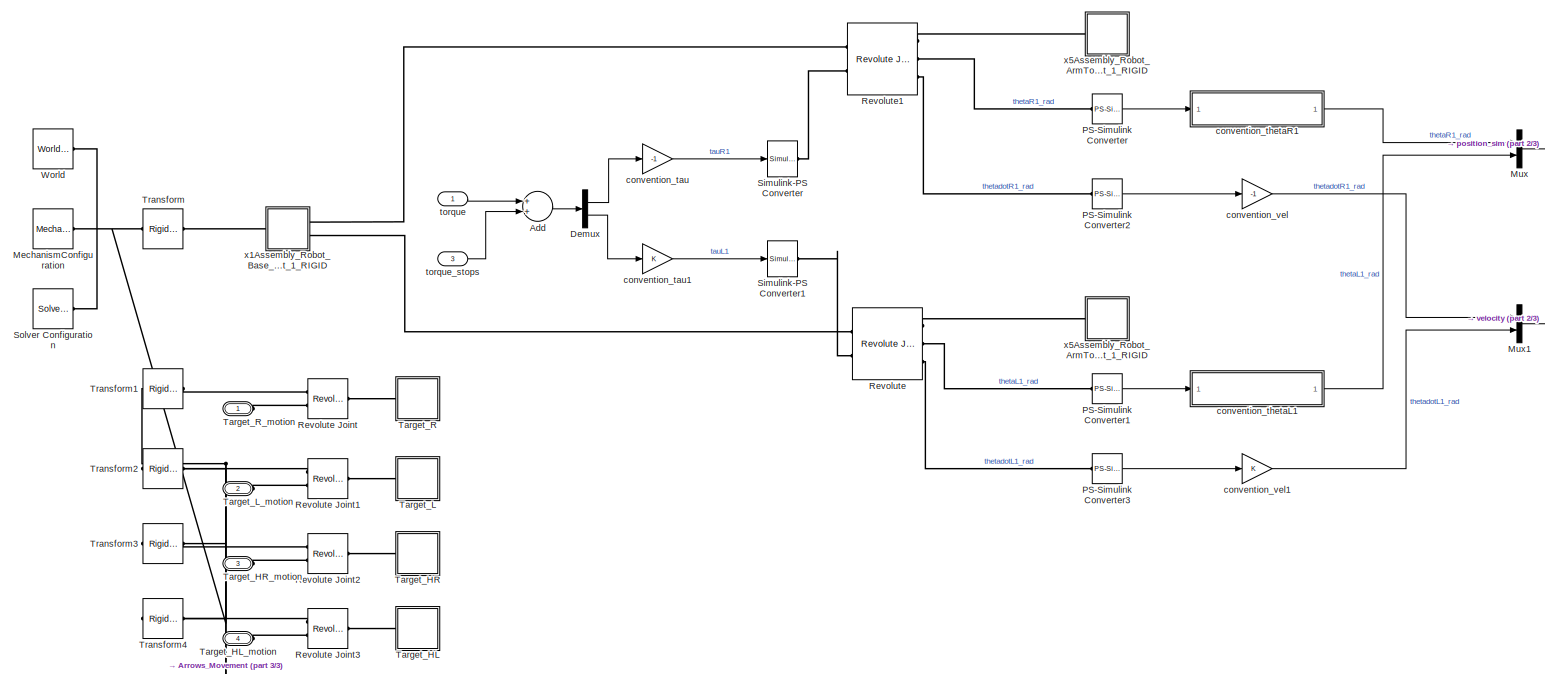
[diagram: SRL_2dof/Simulated_System - part 1/3, full width, middle band]
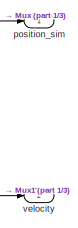
[diagram: SRL_2dof/Simulated_System - part 2/3, top right region]
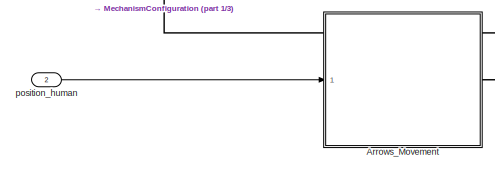
[diagram: SRL_2dof/Simulated_System - part 3/3, bottom left region]
BLOCK [SubSystem] SRL_2dof/Simulated_System
  Ports = [3, 2, 0, 0, 0, 4]
  RequestExecContextInheritance = off
  Variant = off
BLOCK [Sum] SRL_2dof/Simulated_System/Add
  InputSameDT = off
  OutDataTypeStr = Inherit: Inherit via internal rule
  Ports = [2, 1]
  SaturateOnIntegerOverflow = off
BLOCK [SubSystem] SRL_2dof/Simulated_System/Arrows_Movement
  Ports = [1, 0, 0, 0, 0, 0, 1]
  RequestExecContextInheritance = off
  Variant = off
BLOCK [SubSystem] SRL_2dof/Simulated_System/Arrows_Movement/Arrow_C1
  Ports = [0, 0, 0, 0, 0, 1]
  RequestExecContextInheritance = off
  Variant = off
BLOCK [PMIOPort] SRL_2dof/Simulated_System/Arrows_Movement/Arrow_C1/F1
  Port = 1
  Side = Left
BLOCK [Reference] SRL_2dof/Simulated_System/Arrows_Movement/Arrow_C1/ReferenceFrame  REF=sm_lib/Frames and
Transforms/Reference
Frame
  Ports = [0, 0, 0, 0, 0, 0, 1]
  SourceBlock = sm_lib/Frames and\nTransforms/Reference\nFrame
  SourceProductBaseCode = MS
  SourceProductName = Simscape Multibody
  SourceType = Reference\nFrame
BLOCK [Reference] SRL_2dof/Simulated_System/Arrows_Movement/Arrow_C1/Solid  REF=sm_lib/Body Elements/Solid
  Ports = [0, 0, 0, 0, 0, 0, 1]
  SourceBlock = sm_lib/Body Elements/Solid
  SourceProductBaseCode = MS
  SourceProductName = Simscape Multibody
  SourceType = Solid
BLOCK [Reference] SRL_2dof/Simulated_System/Arrows_Movement/Arrow_C1/Transform1  REF=sm_lib/Frames and
Transforms/Rigid
Transform
  Ports = [0, 0, 0, 0, 0, 1, 1]
  SourceBlock = sm_lib/Frames and\nTransforms/Rigid\nTransform
  SourceProductBaseCode = MS
  SourceProductName = Simscape Multibody
  SourceType = Rigid\nTransform
BLOCK [SubSystem] SRL_2dof/Simulated_System/Arrows_Movement/Arrow_C2
  Ports = [0, 0, 0, 0, 0, 1]
  RequestExecContextInheritance = off
  Variant = off
BLOCK [PMIOPort] SRL_2dof/Simulated_System/Arrows_Movement/Arrow_C2/F1
  Port = 1
  Side = Left
BLOCK [Reference] SRL_2dof/Simulated_System/Arrows_Movement/Arrow_C2/ReferenceFrame  REF=sm_lib/Frames and
Transforms/Reference
Frame
  Ports = [0, 0, 0, 0, 0, 0, 1]
  SourceBlock = sm_lib/Frames and\nTransforms/Reference\nFrame
  SourceProductBaseCode = MS
  SourceProductName = Simscape Multibody
  SourceType = Reference\nFrame
BLOCK [Reference] SRL_2dof/Simulated_System/Arrows_Movement/Arrow_C2/Solid  REF=sm_lib/Body Elements/Solid
  Ports = [0, 0, 0, 0, 0, 0, 1]
  SourceBlock = sm_lib/Body Elements/Solid
  SourceProductBaseCode = MS
  SourceProductName = Simscape Multibody
  SourceType = Solid
BLOCK [Reference] SRL_2dof/Simulated_System/Arrows_Movement/Arrow_C2/Transform1  REF=sm_lib/Frames and
Transforms/Rigid
Transform
  Ports = [0, 0, 0, 0, 0, 1, 1]
  SourceBlock = sm_lib/Frames and\nTransforms/Rigid\nTransform
  SourceProductBaseCode = MS
  SourceProductName = Simscape Multibody
  SourceType = Rigid\nTransform
BLOCK [SubSystem] SRL_2dof/Simulated_System/Arrows_Movement/Arrow_HL
  Ports = [0, 0, 0, 0, 0, 1]
  RequestExecContextInheritance = off
  Variant = off
BLOCK [PMIOPort] SRL_2dof/Simulated_System/Arrows_Movement/Arrow_HL/F1
  Port = 1
  Side = Left
BLOCK [Reference] SRL_2dof/Simulated_System/Arrows_Movement/Arrow_HL/ReferenceFrame  REF=sm_lib/Frames and
Transforms/Reference
Frame
  Ports = [0, 0, 0, 0, 0, 0, 1]
  SourceBlock = sm_lib/Frames and\nTransforms/Reference\nFrame
  SourceProductBaseCode = MS
  SourceProductName = Simscape Multibody
  SourceType = Reference\nFrame
BLOCK [Reference] SRL_2dof/Simulated_System/Arrows_Movement/Arrow_HL/Solid  REF=sm_lib/Body Elements/Solid
  Ports = [0, 0, 0, 0, 0, 0, 1]
  SourceBlock = sm_lib/Body Elements/Solid
  SourceProductBaseCode = MS
  SourceProductName = Simscape Multibody
  SourceType = Solid
BLOCK [Reference] SRL_2dof/Simulated_System/Arrows_Movement/Arrow_HL/Transform1  REF=sm_lib/Frames and
Transforms/Rigid
Transform
  Ports = [0, 0, 0, 0, 0, 1, 1]
  SourceBlock = sm_lib/Frames and\nTransforms/Rigid\nTransform
  SourceProductBaseCode = MS
  SourceProductName = Simscape Multibody
  SourceType = Rigid\nTransform
BLOCK [SubSystem] SRL_2dof/Simulated_System/Arrows_Movement/Arrow_HR
  Ports = [0, 0, 0, 0, 0, 1]
  RequestExecContextInheritance = off
  Variant = off
BLOCK [PMIOPort] SRL_2dof/Simulated_System/Arrows_Movement/Arrow_HR/F1
  Port = 1
  Side = Left
BLOCK [Reference] SRL_2dof/Simulated_System/Arrows_Movement/Arrow_HR/ReferenceFrame  REF=sm_lib/Frames and
Transforms/Reference
Frame
  Ports = [0, 0, 0, 0, 0, 0, 1]
  SourceBlock = sm_lib/Frames and\nTransforms/Reference\nFrame
  SourceProductBaseCode = MS
  SourceProductName = Simscape Multibody
  SourceType = Reference\nFrame
BLOCK [Reference] SRL_2dof/Simulated_System/Arrows_Movement/Arrow_HR/Solid  REF=sm_lib/Body Elements/Solid
  Ports = [0, 0, 0, 0, 0, 0, 1]
  SourceBlock = sm_lib/Body Elements/Solid
  SourceProductBaseCode = MS
  SourceProductName = Simscape Multibody
  SourceType = Solid
BLOCK [Reference] SRL_2dof/Simulated_System/Arrows_Movement/Arrow_HR/Transform1  REF=sm_lib/Frames and
Transforms/Rigid
Transform
  Ports = [0, 0, 0, 0, 0, 1, 1]
  SourceBlock = sm_lib/Frames and\nTransforms/Rigid\nTransform
  SourceProductBaseCode = MS
  SourceProductName = Simscape Multibody
  SourceType = Rigid\nTransform
BLOCK [PMIOPort] SRL_2dof/Simulated_System/Arrows_Movement/Conn1
  Port = 1
  Side = Right
BLOCK [Demux] SRL_2dof/Simulated_System/Arrows_Movement/Demux
  DisplayOption = bar
  Ports = [1, 4]
BLOCK [SubSystem] SRL_2dof/Simulated_System/Arrows_Movement/PD_control_HF
  Ports = [1, 0, 0, 0, 0, 2, 1]
  RequestExecContextInheritance = off
  Variant = off
BLOCK [Sum] SRL_2dof/Simulated_System/Arrows_Movement/PD_control_HF/Add4
  InputSameDT = off
  OutDataTypeStr = Inherit: Inherit via internal rule
  Ports = [2, 1]
  SaturateOnIntegerOverflow = off
BLOCK [Constant] SRL_2dof/Simulated_System/Arrows_Movement/PD_control_HF/Constant4
  Value = 0
BLOCK [Gain] SRL_2dof/Simulated_System/Arrows_Movement/PD_control_HF/Gain6
  Gain = 1.5
  OutDataTypeStr = Inherit: Inherit via internal rule
  ParamDataTypeStr = Inherit: Inherit via internal rule
  SaturateOnIntegerOverflow = off
BLOCK [Gain] SRL_2dof/Simulated_System/Arrows_Movement/PD_control_HF/Gain7
  Gain = 0.04
  OutDataTypeStr = Inherit: Inherit via internal rule
  ParamDataTypeStr = Inherit: Inherit via internal rule
  SaturateOnIntegerOverflow = off
BLOCK [Reference] SRL_2dof/Simulated_System/Arrows_Movement/PD_control_HF/PS-Simulink Converter5  REF=nesl_utility/PS-Simulink
Converter
  Ports = [0, 1, 0, 0, 0, 1]
  SourceBlock = nesl_utility/PS-Simulink\nConverter
  SourceProductBaseCode = SS
  SourceProductName = Simscape
  SourceType = PS-Simulink\nConverter
BLOCK [Reference] SRL_2dof/Simulated_System/Arrows_Movement/PD_control_HF/PS-Simulink Converter6  REF=nesl_utility/PS-Simulink
Converter
  Ports = [0, 1, 0, 0, 0, 1]
  SourceBlock = nesl_utility/PS-Simulink\nConverter
  SourceProductBaseCode = SS
  SourceProductName = Simscape
  SourceType = PS-Simulink\nConverter
BLOCK [Reference] SRL_2dof/Simulated_System/Arrows_Movement/PD_control_HF/Simulink-PS Converter3  REF=nesl_utility/Simulink-PS
Converter
  Ports = [1, 0, 0, 0, 0, 0, 1]
  SourceBlock = nesl_utility/Simulink-PS\nConverter
  SourceProductBaseCode = SS
  SourceProductName = Simscape
  SourceType = Simulink-PS\nConverter
BLOCK [Sum] SRL_2dof/Simulated_System/Arrows_Movement/PD_control_HF/Sum5
  IconShape = round
  InputSameDT = off
  Inputs = |+-
  OutDataTypeStr = Inherit: Inherit via internal rule
  Ports = [2, 1]
  SaturateOnIntegerOverflow = off
BLOCK [Sum] SRL_2dof/Simulated_System/Arrows_Movement/PD_control_HF/Sum6
  IconShape = round
  InputSameDT = off
  Inputs = |+-
  OutDataTypeStr = Inherit: Inherit via internal rule
  Ports = [2, 1]
  SaturateOnIntegerOverflow = off
BLOCK [PMIOPort] SRL_2dof/Simulated_System/Arrows_Movement/PD_control_HF/pos
  Port = 1
  Side = Left
BLOCK [Inport] SRL_2dof/Simulated_System/Arrows_Movement/PD_control_HF/theta_HF
  IconDisplay = Port number
BLOCK [PMIOPort] SRL_2dof/Simulated_System/Arrows_Movement/PD_control_HF/torque
  Port = 2
  Side = Right
BLOCK [PMIOPort] SRL_2dof/Simulated_System/Arrows_Movement/PD_control_HF/vel
  Port = 3
  Side = Left
BLOCK [SubSystem] SRL_2dof/Simulated_System/Arrows_Movement/PD_control_HL
  Ports = [1, 0, 0, 0, 0, 2, 1]
  RequestExecContextInheritance = off
  Variant = off
BLOCK [Sum] SRL_2dof/Simulated_System/Arrows_Movement/PD_control_HL/Add1
  InputSameDT = off
  Inputs = +-
  OutDataTypeStr = Inherit: Inherit via internal rule
  Ports = [2, 1]
  SaturateOnIntegerOverflow = off
BLOCK [Sum] SRL_2dof/Simulated_System/Arrows_Movement/PD_control_HL/Add3
  InputSameDT = off
  OutDataTypeStr = Inherit: Inherit via internal rule
  Ports = [2, 1]
  SaturateOnIntegerOverflow = off
BLOCK [Constant] SRL_2dof/Simulated_System/Arrows_Movement/PD_control_HL/Constant1
  Value = pi/2
BLOCK [Constant] SRL_2dof/Simulated_System/Arrows_Movement/PD_control_HL/Constant3
  Value = 0
BLOCK [Gain] SRL_2dof/Simulated_System/Arrows_Movement/PD_control_HL/Gain1
  Gain = 150
  OutDataTypeStr = Inherit: Inherit via internal rule
  ParamDataTypeStr = Inherit: Inherit via internal rule
  SaturateOnIntegerOverflow = off
BLOCK [Gain] SRL_2dof/Simulated_System/Arrows_Movement/PD_control_HL/Gain4
  Gain = 6.5
  OutDataTypeStr = Inherit: Inherit via internal rule
  ParamDataTypeStr = Inherit: Inherit via internal rule
  SaturateOnIntegerOverflow = off
BLOCK [Reference] SRL_2dof/Simulated_System/Arrows_Movement/PD_control_HL/PS-Simulink Converter1  REF=nesl_utility/PS-Simulink
Converter
  Ports = [0, 1, 0, 0, 0, 1]
  SourceBlock = nesl_utility/PS-Simulink\nConverter
  SourceProductBaseCode = SS
  SourceProductName = Simscape
  SourceType = PS-Simulink\nConverter
BLOCK [Reference] SRL_2dof/Simulated_System/Arrows_Movement/PD_control_HL/PS-Simulink Converter3  REF=nesl_utility/PS-Simulink
Converter
  Ports = [0, 1, 0, 0, 0, 1]
  SourceBlock = nesl_utility/PS-Simulink\nConverter
  SourceProductBaseCode = SS
  SourceProductName = Simscape
  SourceType = PS-Simulink\nConverter
BLOCK [Reference] SRL_2dof/Simulated_System/Arrows_Movement/PD_control_HL/Simulink-PS Converter1  REF=nesl_utility/Simulink-PS
Converter
  Ports = [1, 0, 0, 0, 0, 0, 1]
  SourceBlock = nesl_utility/Simulink-PS\nConverter
  SourceProductBaseCode = SS
  SourceProductName = Simscape
  SourceType = Simulink-PS\nConverter
BLOCK [Sum] SRL_2dof/Simulated_System/Arrows_Movement/PD_control_HL/Sum1
  IconShape = round
  InputSameDT = off
  Inputs = |+-
  OutDataTypeStr = Inherit: Inherit via internal rule
  Ports = [2, 1]
  SaturateOnIntegerOverflow = off
BLOCK [Sum] SRL_2dof/Simulated_System/Arrows_Movement/PD_control_HL/Sum3
  IconShape = round
  InputSameDT = off
  Inputs = |+-
  OutDataTypeStr = Inherit: Inherit via internal rule
  Ports = [2, 1]
  SaturateOnIntegerOverflow = off
BLOCK [PMIOPort] SRL_2dof/Simulated_System/Arrows_Movement/PD_control_HL/pos
  Port = 1
  Side = Left
BLOCK [Inport] SRL_2dof/Simulated_System/Arrows_Movement/PD_control_HL/theta_HL
  IconDisplay = Port number
BLOCK [PMIOPort] SRL_2dof/Simulated_System/Arrows_Movement/PD_control_HL/torque
  Port = 2
  Side = Right
BLOCK [PMIOPort] SRL_2dof/Simulated_System/Arrows_Movement/PD_control_HL/vel
  Port = 3
  Side = Left
BLOCK [SubSystem] SRL_2dof/Simulated_System/Arrows_Movement/PD_control_HR
  Ports = [1, 0, 0, 0, 0, 2, 1]
  RequestExecContextInheritance = off
  Variant = off
BLOCK [Sum] SRL_2dof/Simulated_System/Arrows_Movement/PD_control_HR/Add
  InputSameDT = off
  Inputs = +-
  OutDataTypeStr = Inherit: Inherit via internal rule
  Ports = [2, 1]
  SaturateOnIntegerOverflow = off
BLOCK [Sum] SRL_2dof/Simulated_System/Arrows_Movement/PD_control_HR/Add2
  InputSameDT = off
  OutDataTypeStr = Inherit: Inherit via internal rule
  Ports = [2, 1]
  SaturateOnIntegerOverflow = off
BLOCK [Constant] SRL_2dof/Simulated_System/Arrows_Movement/PD_control_HR/Constant2
  Value = pi/2
BLOCK [Constant] SRL_2dof/Simulated_System/Arrows_Movement/PD_control_HR/Constant4
  Value = 0
BLOCK [Gain] SRL_2dof/Simulated_System/Arrows_Movement/PD_control_HR/Gain2
  Gain = 150
  OutDataTypeStr = Inherit: Inherit via internal rule
  ParamDataTypeStr = Inherit: Inherit via internal rule
  SaturateOnIntegerOverflow = off
BLOCK [Gain] SRL_2dof/Simulated_System/Arrows_Movement/PD_control_HR/Gain3
  Gain = 6.5
  OutDataTypeStr = Inherit: Inherit via internal rule
  ParamDataTypeStr = Inherit: Inherit via internal rule
  SaturateOnIntegerOverflow = off
BLOCK [Reference] SRL_2dof/Simulated_System/Arrows_Movement/PD_control_HR/PS-Simulink Converter  REF=nesl_utility/PS-Simulink
Converter
  Ports = [0, 1, 0, 0, 0, 1]
  SourceBlock = nesl_utility/PS-Simulink\nConverter
  SourceProductBaseCode = SS
  SourceProductName = Simscape
  SourceType = PS-Simulink\nConverter
BLOCK [Reference] SRL_2dof/Simulated_System/Arrows_Movement/PD_control_HR/PS-Simulink Converter2  REF=nesl_utility/PS-Simulink
Converter
  Ports = [0, 1, 0, 0, 0, 1]
  SourceBlock = nesl_utility/PS-Simulink\nConverter
  SourceProductBaseCode = SS
  SourceProductName = Simscape
  SourceType = PS-Simulink\nConverter
BLOCK [Reference] SRL_2dof/Simulated_System/Arrows_Movement/PD_control_HR/Simulink-PS Converter  REF=nesl_utility/Simulink-PS
Converter
  Ports = [1, 0, 0, 0, 0, 0, 1]
  SourceBlock = nesl_utility/Simulink-PS\nConverter
  SourceProductBaseCode = SS
  SourceProductName = Simscape
  SourceType = Simulink-PS\nConverter
BLOCK [Sum] SRL_2dof/Simulated_System/Arrows_Movement/PD_control_HR/Sum
  IconShape = round
  InputSameDT = off
  Inputs = |+-
  OutDataTypeStr = Inherit: Inherit via internal rule
  Ports = [2, 1]
  SaturateOnIntegerOverflow = off
BLOCK [Sum] SRL_2dof/Simulated_System/Arrows_Movement/PD_control_HR/Sum2
  IconShape = round
  InputSameDT = off
  Inputs = |+-
  OutDataTypeStr = Inherit: Inherit via internal rule
  Ports = [2, 1]
  SaturateOnIntegerOverflow = off
BLOCK [PMIOPort] SRL_2dof/Simulated_System/Arrows_Movement/PD_control_HR/pos
  Port = 1
  Side = Left
BLOCK [Inport] SRL_2dof/Simulated_System/Arrows_Movement/PD_control_HR/theta_HR
  IconDisplay = Port number
BLOCK [PMIOPort] SRL_2dof/Simulated_System/Arrows_Movement/PD_control_HR/torque
  Port = 2
  Side = Right
BLOCK [PMIOPort] SRL_2dof/Simulated_System/Arrows_Movement/PD_control_HR/vel
  Port = 3
  Side = Left
BLOCK [SubSystem] SRL_2dof/Simulated_System/Arrows_Movement/PD_control_HS
  Ports = [1, 0, 0, 0, 0, 2, 1]
  RequestExecContextInheritance = off
  Variant = off
BLOCK [Sum] SRL_2dof/Simulated_System/Arrows_Movement/PD_control_HS/Add2
  InputSameDT = off
  OutDataTypeStr = Inherit: Inherit via internal rule
  Ports = [2, 1]
  SaturateOnIntegerOverflow = off
BLOCK [Constant] SRL_2dof/Simulated_System/Arrows_Movement/PD_control_HS/Constant2
  Value = 0
BLOCK [Gain] SRL_2dof/Simulated_System/Arrows_Movement/PD_control_HS/Gain2
  Gain = 1.5
  OutDataTypeStr = Inherit: Inherit via internal rule
  ParamDataTypeStr = Inherit: Inherit via internal rule
  SaturateOnIntegerOverflow = off
BLOCK [Gain] SRL_2dof/Simulated_System/Arrows_Movement/PD_control_HS/Gain3
  Gain = 0.04
  OutDataTypeStr = Inherit: Inherit via internal rule
  ParamDataTypeStr = Inherit: Inherit via internal rule
  SaturateOnIntegerOverflow = off
BLOCK [Reference] SRL_2dof/Simulated_System/Arrows_Movement/PD_control_HS/PS-Simulink Converter2  REF=nesl_utility/PS-Simulink
Converter
  Ports = [0, 1, 0, 0, 0, 1]
  SourceBlock = nesl_utility/PS-Simulink\nConverter
  SourceProductBaseCode = SS
  SourceProductName = Simscape
  SourceType = PS-Simulink\nConverter
BLOCK [Reference] SRL_2dof/Simulated_System/Arrows_Movement/PD_control_HS/PS-Simulink Converter4  REF=nesl_utility/PS-Simulink
Converter
  Ports = [0, 1, 0, 0, 0, 1]
  SourceBlock = nesl_utility/PS-Simulink\nConverter
  SourceProductBaseCode = SS
  SourceProductName = Simscape
  SourceType = PS-Simulink\nConverter
BLOCK [Reference] SRL_2dof/Simulated_System/Arrows_Movement/PD_control_HS/Simulink-PS Converter2  REF=nesl_utility/Simulink-PS
Converter
  Ports = [1, 0, 0, 0, 0, 0, 1]
  SourceBlock = nesl_utility/Simulink-PS\nConverter
  SourceProductBaseCode = SS
  SourceProductName = Simscape
  SourceType = Simulink-PS\nConverter
BLOCK [Sum] SRL_2dof/Simulated_System/Arrows_Movement/PD_control_HS/Sum2
  IconShape = round
  InputSameDT = off
  Inputs = |+-
  OutDataTypeStr = Inherit: Inherit via internal rule
  Ports = [2, 1]
  SaturateOnIntegerOverflow = off
BLOCK [Sum] SRL_2dof/Simulated_System/Arrows_Movement/PD_control_HS/Sum4
  IconShape = round
  InputSameDT = off
  Inputs = |+-
  OutDataTypeStr = Inherit: Inherit via internal rule
  Ports = [2, 1]
  SaturateOnIntegerOverflow = off
BLOCK [PMIOPort] SRL_2dof/Simulated_System/Arrows_Movement/PD_control_HS/pos
  Port = 1
  Side = Left
BLOCK [Inport] SRL_2dof/Simulated_System/Arrows_Movement/PD_control_HS/theta_HS
  IconDisplay = Port number
BLOCK [PMIOPort] SRL_2dof/Simulated_System/Arrows_Movement/PD_control_HS/torque
  Port = 2
  Side = Right
BLOCK [PMIOPort] SRL_2dof/Simulated_System/Arrows_Movement/PD_control_HS/vel
  Port = 3
  Side = Left
BLOCK [RateTransition] SRL_2dof/Simulated_System/Arrows_Movement/Rate Transition
  OutPortSampleTime = Ts_sim
BLOCK [Reference] SRL_2dof/Simulated_System/Arrows_Movement/Revolute Joint1  REF=sm_lib/Joints/Revolute Joint
  Ports = [0, 0, 0, 0, 0, 2, 3]
  SourceBlock = sm_lib/Joints/Revolute Joint
  SourceProductBaseCode = MS
  SourceProductName = Simscape Multibody
  SourceType = Revolute Joint
BLOCK [Reference] SRL_2dof/Simulated_System/Arrows_Movement/Revolute Joint2  REF=sm_lib/Joints/Revolute Joint
  Ports = [0, 0, 0, 0, 0, 2, 3]
  SourceBlock = sm_lib/Joints/Revolute Joint
  SourceProductBaseCode = MS
  SourceProductName = Simscape Multibody
  SourceType = Revolute Joint
BLOCK [Reference] SRL_2dof/Simulated_System/Arrows_Movement/Revolute Joint4  REF=sm_lib/Joints/Revolute Joint
  Ports = [0, 0, 0, 0, 0, 2, 3]
  SourceBlock = sm_lib/Joints/Revolute Joint
  SourceProductBaseCode = MS
  SourceProductName = Simscape Multibody
  SourceType = Revolute Joint
BLOCK [Reference] SRL_2dof/Simulated_System/Arrows_Movement/Revolute Joint5  REF=sm_lib/Joints/Revolute Joint
  Ports = [0, 0, 0, 0, 0, 2, 3]
  SourceBlock = sm_lib/Joints/Revolute Joint
  SourceProductBaseCode = MS
  SourceProductName = Simscape Multibody
  SourceType = Revolute Joint
BLOCK [Reference] SRL_2dof/Simulated_System/Arrows_Movement/Transform5  REF=sm_lib/Frames and
Transforms/Rigid
Transform
  Ports = [0, 0, 0, 0, 0, 1, 1]
  SourceBlock = sm_lib/Frames and\nTransforms/Rigid\nTransform
  SourceProductBaseCode = MS
  SourceProductName = Simscape Multibody
  SourceType = Rigid\nTransform
BLOCK [Reference] SRL_2dof/Simulated_System/Arrows_Movement/Transform6  REF=sm_lib/Frames and
Transforms/Rigid
Transform
  Ports = [0, 0, 0, 0, 0, 1, 1]
  SourceBlock = sm_lib/Frames and\nTransforms/Rigid\nTransform
  SourceProductBaseCode = MS
  SourceProductName = Simscape Multibody
  SourceType = Rigid\nTransform
BLOCK [Reference] SRL_2dof/Simulated_System/Arrows_Movement/Transform7  REF=sm_lib/Frames and
Transforms/Rigid
Transform
  Ports = [0, 0, 0, 0, 0, 1, 1]
  SourceBlock = sm_lib/Frames and\nTransforms/Rigid\nTransform
  SourceProductBaseCode = MS
  SourceProductName = Simscape Multibody
  SourceType = Rigid\nTransform
BLOCK [Reference] SRL_2dof/Simulated_System/Arrows_Movement/Transform8  REF=sm_lib/Frames and
Transforms/Rigid
Transform
  Ports = [0, 0, 0, 0, 0, 1, 1]
  SourceBlock = sm_lib/Frames and\nTransforms/Rigid\nTransform
  SourceProductBaseCode = MS
  SourceProductName = Simscape Multibody
  SourceType = Rigid\nTransform
BLOCK [Inport] SRL_2dof/Simulated_System/Arrows_Movement/position_human
  IconDisplay = Port number
BLOCK [Gain] SRL_2dof/Simulated_System/Arrows_Movement/sign_convention
  Gain = -1
  OutDataTypeStr = Inherit: Inherit via internal rule
  ParamDataTypeStr = Inherit: Inherit via internal rule
  SaturateOnIntegerOverflow = off
BLOCK [Demux] SRL_2dof/Simulated_System/Demux
  DisplayOption = bar
  Outputs = 2
  Ports = [1, 2]
BLOCK [Reference] SRL_2dof/Simulated_System/MechanismConfiguration  REF=sm_lib/Utilities/Mechanism
Configuration
  Ports = [0, 0, 0, 0, 0, 0, 1]
  SourceBlock = sm_lib/Utilities/Mechanism\nConfiguration
  SourceProductBaseCode = MS
  SourceProductName = Simscape Multibody
  SourceType = Mechanism\nConfiguration
BLOCK [Mux] SRL_2dof/Simulated_System/Mux
  DisplayOption = bar
  Inputs = 2
  Ports = [2, 1]
BLOCK [Mux] SRL_2dof/Simulated_System/Mux1
  DisplayOption = bar
  Inputs = 2
  Ports = [2, 1]
BLOCK [Reference] SRL_2dof/Simulated_System/PS-Simulink Converter  REF=nesl_utility/PS-Simulink
Converter
  Ports = [0, 1, 0, 0, 0, 1]
  SourceBlock = nesl_utility/PS-Simulink\nConverter
  SourceProductBaseCode = SS
  SourceProductName = Simscape
  SourceType = PS-Simulink\nConverter
BLOCK [Reference] SRL_2dof/Simulated_System/PS-Simulink Converter1  REF=nesl_utility/PS-Simulink
Converter
  Ports = [0, 1, 0, 0, 0, 1]
  SourceBlock = nesl_utility/PS-Simulink\nConverter
  SourceProductBaseCode = SS
  SourceProductName = Simscape
  SourceType = PS-Simulink\nConverter
BLOCK [Reference] SRL_2dof/Simulated_System/PS-Simulink Converter2  REF=nesl_utility/PS-Simulink
Converter
  Ports = [0, 1, 0, 0, 0, 1]
  SourceBlock = nesl_utility/PS-Simulink\nConverter
  SourceProductBaseCode = SS
  SourceProductName = Simscape
  SourceType = PS-Simulink\nConverter
BLOCK [Reference] SRL_2dof/Simulated_System/PS-Simulink Converter3  REF=nesl_utility/PS-Simulink
Converter
  Ports = [0, 1, 0, 0, 0, 1]
  SourceBlock = nesl_utility/PS-Simulink\nConverter
  SourceProductBaseCode = SS
  SourceProductName = Simscape
  SourceType = PS-Simulink\nConverter
BLOCK [Reference] SRL_2dof/Simulated_System/Revolute  REF=sm_lib/Joints/Revolute Joint
  Ports = [0, 0, 0, 0, 0, 2, 3]
  SourceBlock = sm_lib/Joints/Revolute Joint
  SourceProductBaseCode = MS
  SourceProductName = Simscape Multibody
  SourceType = Revolute Joint
BLOCK [Reference] SRL_2dof/Simulated_System/Revolute Joint  REF=sm_lib/Joints/Revolute Joint
  Ports = [0, 0, 0, 0, 0, 2, 1]
  SourceBlock = sm_lib/Joints/Revolute Joint
  SourceProductBaseCode = MS
  SourceProductName = Simscape Multibody
  SourceType = Revolute Joint
BLOCK [Reference] SRL_2dof/Simulated_System/Revolute Joint1  REF=sm_lib/Joints/Revolute Joint
  Ports = [0, 0, 0, 0, 0, 2, 1]
  SourceBlock = sm_lib/Joints/Revolute Joint
  SourceProductBaseCode = MS
  SourceProductName = Simscape Multibody
  SourceType = Revolute Joint
BLOCK [Reference] SRL_2dof/Simulated_System/Revolute Joint2  REF=sm_lib/Joints/Revolute Joint
  Ports = [0, 0, 0, 0, 0, 2, 1]
  SourceBlock = sm_lib/Joints/Revolute Joint
  SourceProductBaseCode = MS
  SourceProductName = Simscape Multibody
  SourceType = Revolute Joint
BLOCK [Reference] SRL_2dof/Simulated_System/Revolute Joint3  REF=sm_lib/Joints/Revolute Joint
  Ports = [0, 0, 0, 0, 0, 2, 1]
  SourceBlock = sm_lib/Joints/Revolute Joint
  SourceProductBaseCode = MS
  SourceProductName = Simscape Multibody
  SourceType = Revolute Joint
BLOCK [Reference] SRL_2dof/Simulated_System/Revolute1  REF=sm_lib/Joints/Revolute Joint
  Ports = [0, 0, 0, 0, 0, 2, 3]
  SourceBlock = sm_lib/Joints/Revolute Joint
  SourceProductBaseCode = MS
  SourceProductName = Simscape Multibody
  SourceType = Revolute Joint
BLOCK [Reference] SRL_2dof/Simulated_System/Simulink-PS Converter  REF=nesl_utility/Simulink-PS
Converter
  Ports = [1, 0, 0, 0, 0, 0, 1]
  SourceBlock = nesl_utility/Simulink-PS\nConverter
  SourceProductBaseCode = SS
  SourceProductName = Simscape
  SourceType = Simulink-PS\nConverter
BLOCK [Reference] SRL_2dof/Simulated_System/Simulink-PS Converter1  REF=nesl_utility/Simulink-PS
Converter
  Ports = [1, 0, 0, 0, 0, 0, 1]
  SourceBlock = nesl_utility/Simulink-PS\nConverter
  SourceProductBaseCode = SS
  SourceProductName = Simscape
  SourceType = Simulink-PS\nConverter
BLOCK [Reference] SRL_2dof/Simulated_System/Solver Configuration  REF=nesl_utility/Solver
Configuration
  Ports = [0, 0, 0, 0, 0, 0, 1]
  SourceBlock = nesl_utility/Solver\nConfiguration
  SourceProductBaseCode = SS
  SourceProductName = Simscape
  SourceType = Solver\nConfiguration
BLOCK [SubSystem] SRL_2dof/Simulated_System/Target_HL
  Ports = [0, 0, 0, 0, 0, 1]
  RequestExecContextInheritance = off
  Variant = off
BLOCK [PMIOPort] SRL_2dof/Simulated_System/Target_HL/F1
  Port = 1
  Side = Left
BLOCK [Reference] SRL_2dof/Simulated_System/Target_HL/ReferenceFrame  REF=sm_lib/Frames and
Transforms/Reference
Frame
  Ports = [0, 0, 0, 0, 0, 0, 1]
  SourceBlock = sm_lib/Frames and\nTransforms/Reference\nFrame
  SourceProductBaseCode = MS
  SourceProductName = Simscape Multibody
  SourceType = Reference\nFrame
BLOCK [Reference] SRL_2dof/Simulated_System/Target_HL/Solid  REF=sm_lib/Body Elements/Solid
  Ports = [0, 0, 0, 0, 0, 0, 1]
  SourceBlock = sm_lib/Body Elements/Solid
  SourceProductBaseCode = MS
  SourceProductName = Simscape Multibody
  SourceType = Solid
BLOCK [Reference] SRL_2dof/Simulated_System/Target_HL/Transform1  REF=sm_lib/Frames and
Transforms/Rigid
Transform
  Ports = [0, 0, 0, 0, 0, 1, 1]
  SourceBlock = sm_lib/Frames and\nTransforms/Rigid\nTransform
  SourceProductBaseCode = MS
  SourceProductName = Simscape Multibody
  SourceType = Rigid\nTransform
BLOCK [PMIOPort] SRL_2dof/Simulated_System/Target_HL_motion
  Port = 4
  Side = Left
BLOCK [SubSystem] SRL_2dof/Simulated_System/Target_HR
  Ports = [0, 0, 0, 0, 0, 1]
  RequestExecContextInheritance = off
  Variant = off
BLOCK [PMIOPort] SRL_2dof/Simulated_System/Target_HR/F1
  Port = 1
  Side = Left
BLOCK [Reference] SRL_2dof/Simulated_System/Target_HR/ReferenceFrame  REF=sm_lib/Frames and
Transforms/Reference
Frame
  Ports = [0, 0, 0, 0, 0, 0, 1]
  SourceBlock = sm_lib/Frames and\nTransforms/Reference\nFrame
  SourceProductBaseCode = MS
  SourceProductName = Simscape Multibody
  SourceType = Reference\nFrame
BLOCK [Reference] SRL_2dof/Simulated_System/Target_HR/Solid  REF=sm_lib/Body Elements/Solid
  Ports = [0, 0, 0, 0, 0, 0, 1]
  SourceBlock = sm_lib/Body Elements/Solid
  SourceProductBaseCode = MS
  SourceProductName = Simscape Multibody
  SourceType = Solid
BLOCK [Reference] SRL_2dof/Simulated_System/Target_HR/Transform1  REF=sm_lib/Frames and
Transforms/Rigid
Transform
  Ports = [0, 0, 0, 0, 0, 1, 1]
  SourceBlock = sm_lib/Frames and\nTransforms/Rigid\nTransform
  SourceProductBaseCode = MS
  SourceProductName = Simscape Multibody
  SourceType = Rigid\nTransform
BLOCK [PMIOPort] SRL_2dof/Simulated_System/Target_HR_motion
  Port = 3
  Side = Left
BLOCK [SubSystem] SRL_2dof/Simulated_System/Target_L
  Ports = [0, 0, 0, 0, 0, 1]
  RequestExecContextInheritance = off
  Variant = off
BLOCK [PMIOPort] SRL_2dof/Simulated_System/Target_L/F1
  Port = 1
  Side = Left
BLOCK [Reference] SRL_2dof/Simulated_System/Target_L/ReferenceFrame  REF=sm_lib/Frames and
Transforms/Reference
Frame
  Ports = [0, 0, 0, 0, 0, 0, 1]
  SourceBlock = sm_lib/Frames and\nTransforms/Reference\nFrame
  SourceProductBaseCode = MS
  SourceProductName = Simscape Multibody
  SourceType = Reference\nFrame
BLOCK [Reference] SRL_2dof/Simulated_System/Target_L/Solid  REF=sm_lib/Body Elements/Solid
  Ports = [0, 0, 0, 0, 0, 0, 1]
  SourceBlock = sm_lib/Body Elements/Solid
  SourceProductBaseCode = MS
  SourceProductName = Simscape Multibody
  SourceType = Solid
BLOCK [Reference] SRL_2dof/Simulated_System/Target_L/Transform1  REF=sm_lib/Frames and
Transforms/Rigid
Transform
  Ports = [0, 0, 0, 0, 0, 1, 1]
  SourceBlock = sm_lib/Frames and\nTransforms/Rigid\nTransform
  SourceProductBaseCode = MS
  SourceProductName = Simscape Multibody
  SourceType = Rigid\nTransform
BLOCK [PMIOPort] SRL_2dof/Simulated_System/Target_L_motion
  Port = 2
  Side = Left
BLOCK [SubSystem] SRL_2dof/Simulated_System/Target_R
  Ports = [0, 0, 0, 0, 0, 1]
  RequestExecContextInheritance = off
  Variant = off
BLOCK [PMIOPort] SRL_2dof/Simulated_System/Target_R/F1
  Port = 1
  Side = Left
BLOCK [Reference] SRL_2dof/Simulated_System/Target_R/ReferenceFrame  REF=sm_lib/Frames and
Transforms/Reference
Frame
  Ports = [0, 0, 0, 0, 0, 0, 1]
  SourceBlock = sm_lib/Frames and\nTransforms/Reference\nFrame
  SourceProductBaseCode = MS
  SourceProductName = Simscape Multibody
  SourceType = Reference\nFrame
BLOCK [Reference] SRL_2dof/Simulated_System/Target_R/Solid  REF=sm_lib/Body Elements/Solid
  Ports = [0, 0, 0, 0, 0, 0, 1]
  SourceBlock = sm_lib/Body Elements/Solid
  SourceProductBaseCode = MS
  SourceProductName = Simscape Multibody
  SourceType = Solid
BLOCK [Reference] SRL_2dof/Simulated_System/Target_R/Transform1  REF=sm_lib/Frames and
Transforms/Rigid
Transform
  Ports = [0, 0, 0, 0, 0, 1, 1]
  SourceBlock = sm_lib/Frames and\nTransforms/Rigid\nTransform
  SourceProductBaseCode = MS
  SourceProductName = Simscape Multibody
  SourceType = Rigid\nTransform
BLOCK [PMIOPort] SRL_2dof/Simulated_System/Target_R_motion
  Port = 1
  Side = Left
BLOCK [Reference] SRL_2dof/Simulated_System/Transform  REF=sm_lib/Frames and
Transforms/Rigid
Transform
  Ports = [0, 0, 0, 0, 0, 1, 1]
  SourceBlock = sm_lib/Frames and\nTransforms/Rigid\nTransform
  SourceProductBaseCode = MS
  SourceProductName = Simscape Multibody
  SourceType = Rigid\nTransform
BLOCK [Reference] SRL_2dof/Simulated_System/Transform1  REF=sm_lib/Frames and
Transforms/Rigid
Transform
  Ports = [0, 0, 0, 0, 0, 1, 1]
  SourceBlock = sm_lib/Frames and\nTransforms/Rigid\nTransform
  SourceProductBaseCode = MS
  SourceProductName = Simscape Multibody
  SourceType = Rigid\nTransform
BLOCK [Reference] SRL_2dof/Simulated_System/Transform2  REF=sm_lib/Frames and
Transforms/Rigid
Transform
  Ports = [0, 0, 0, 0, 0, 1, 1]
  SourceBlock = sm_lib/Frames and\nTransforms/Rigid\nTransform
  SourceProductBaseCode = MS
  SourceProductName = Simscape Multibody
  SourceType = Rigid\nTransform
BLOCK [Reference] SRL_2dof/Simulated_System/Transform3  REF=sm_lib/Frames and
Transforms/Rigid
Transform
  Ports = [0, 0, 0, 0, 0, 1, 1]
  SourceBlock = sm_lib/Frames and\nTransforms/Rigid\nTransform
  SourceProductBaseCode = MS
  SourceProductName = Simscape Multibody
  SourceType = Rigid\nTransform
BLOCK [Reference] SRL_2dof/Simulated_System/Transform4  REF=sm_lib/Frames and
Transforms/Rigid
Transform
  Ports = [0, 0, 0, 0, 0, 1, 1]
  SourceBlock = sm_lib/Frames and\nTransforms/Rigid\nTransform
  SourceProductBaseCode = MS
  SourceProductName = Simscape Multibody
  SourceType = Rigid\nTransform
BLOCK [Reference] SRL_2dof/Simulated_System/World  REF=sm_lib/Frames and
Transforms/World Frame
  Ports = [0, 0, 0, 0, 0, 0, 1]
  SourceBlock = sm_lib/Frames and\nTransforms/World Frame
  SourceProductBaseCode = MS
  SourceProductName = Simscape Multibody
  SourceType = World Frame
BLOCK [Gain] SRL_2dof/Simulated_System/convention_tau
  Gain = -1
  OutDataTypeStr = Inherit: Inherit via internal rule
  ParamDataTypeStr = Inherit: Inherit via internal rule
  SaturateOnIntegerOverflow = off
BLOCK [Gain] SRL_2dof/Simulated_System/convention_tau1
  OutDataTypeStr = Inherit: Inherit via internal rule
  ParamDataTypeStr = Inherit: Inherit via internal rule
  SaturateOnIntegerOverflow = off
BLOCK [SubSystem] SRL_2dof/Simulated_System/convention_thetaL1
  Ports = [1, 1]
  RequestExecContextInheritance = off
  Variant = off
BLOCK [Sum] SRL_2dof/Simulated_System/convention_thetaL1/Add
  InputSameDT = off
  Inputs = +-
  OutDataTypeStr = Inherit: Inherit via internal rule
  Ports = [2, 1]
  SaturateOnIntegerOverflow = off
BLOCK [Constant] SRL_2dof/Simulated_System/convention_thetaL1/Constant
  Value = pi/2
BLOCK [Outport] SRL_2dof/Simulated_System/convention_thetaL1/thetaL1_new
  IconDisplay = Port number
BLOCK [Inport] SRL_2dof/Simulated_System/convention_thetaL1/thetaL1_old
  IconDisplay = Port number
BLOCK [SubSystem] SRL_2dof/Simulated_System/convention_thetaR1
  Ports = [1, 1]
  RequestExecContextInheritance = off
  Variant = off
BLOCK [Sum] SRL_2dof/Simulated_System/convention_thetaR1/Add
  InputSameDT = off
  Inputs = +-
  OutDataTypeStr = Inherit: Inherit via internal rule
  Ports = [2, 1]
  SaturateOnIntegerOverflow = off
BLOCK [Constant] SRL_2dof/Simulated_System/convention_thetaR1/Constant
  Value = pi/2
BLOCK [Outport] SRL_2dof/Simulated_System/convention_thetaR1/thetaR1_new
  IconDisplay = Port number
BLOCK [Inport] SRL_2dof/Simulated_System/convention_thetaR1/thetaR1_old
  IconDisplay = Port number
BLOCK [Gain] SRL_2dof/Simulated_System/convention_vel
  Gain = -1
  OutDataTypeStr = Inherit: Inherit via internal rule
  ParamDataTypeStr = Inherit: Inherit via internal rule
  SaturateOnIntegerOverflow = off
BLOCK [Gain] SRL_2dof/Simulated_System/convention_vel1
  OutDataTypeStr = Inherit: Inherit via internal rule
  ParamDataTypeStr = Inherit: Inherit via internal rule
  SaturateOnIntegerOverflow = off
BLOCK [Inport] SRL_2dof/Simulated_System/position_human
  IconDisplay = Port number
  Port = 2
BLOCK [Outport] SRL_2dof/Simulated_System/position_sim
  IconDisplay = Port number
BLOCK [Inport] SRL_2dof/Simulated_System/torque
  IconDisplay = Port number
BLOCK [Inport] SRL_2dof/Simulated_System/torque_stops
  IconDisplay = Port number
  Port = 3
BLOCK [Outport] SRL_2dof/Simulated_System/velocity
  IconDisplay = Port number
  Port = 2
BLOCK [SubSystem] SRL_2dof/Simulated_System/x1Assembly_Robot_Base_Part_1_RIGID
  Ports = [0, 0, 0, 0, 0, 1, 2]
  RequestExecContextInheritance = off
  Variant = off
BLOCK [PMIOPort] SRL_2dof/Simulated_System/x1Assembly_Robot_Base_Part_1_RIGID/F
  Port = 3
  Side = Right
BLOCK [PMIOPort] SRL_2dof/Simulated_System/x1Assembly_Robot_Base_Part_1_RIGID/F1
  Port = 1
  Side = Left
BLOCK [PMIOPort] SRL_2dof/Simulated_System/x1Assembly_Robot_Base_Part_1_RIGID/F2
  Port = 2
  Side = Right
BLOCK [Reference] SRL_2dof/Simulated_System/x1Assembly_Robot_Base_Part_1_RIGID/ReferenceFrame  REF=sm_lib/Frames and
Transforms/Reference
Frame
  Ports = [0, 0, 0, 0, 0, 0, 1]
  SourceBlock = sm_lib/Frames and\nTransforms/Reference\nFrame
  SourceProductBaseCode = MS
  SourceProductName = Simscape Multibody
  SourceType = Reference\nFrame
BLOCK [Reference] SRL_2dof/Simulated_System/x1Assembly_Robot_Base_Part_1_RIGID/Solid  REF=sm_lib/Body Elements/Solid
  Ports = [0, 0, 0, 0, 0, 0, 1]
  SourceBlock = sm_lib/Body Elements/Solid
  SourceProductBaseCode = MS
  SourceProductName = Simscape Multibody
  SourceType = Solid
BLOCK [Reference] SRL_2dof/Simulated_System/x1Assembly_Robot_Base_Part_1_RIGID/Transform  REF=sm_lib/Frames and
Transforms/Rigid
Transform
  Ports = [0, 0, 0, 0, 0, 1, 1]
  SourceBlock = sm_lib/Frames and\nTransforms/Rigid\nTransform
  SourceProductBaseCode = MS
  SourceProductName = Simscape Multibody
  SourceType = Rigid\nTransform
BLOCK [Reference] SRL_2dof/Simulated_System/x1Assembly_Robot_Base_Part_1_RIGID/Transform1  REF=sm_lib/Frames and
Transforms/Rigid
Transform
  Ports = [0, 0, 0, 0, 0, 1, 1]
  SourceBlock = sm_lib/Frames and\nTransforms/Rigid\nTransform
  SourceProductBaseCode = MS
  SourceProductName = Simscape Multibody
  SourceType = Rigid\nTransform
BLOCK [Reference] SRL_2dof/Simulated_System/x1Assembly_Robot_Base_Part_1_RIGID/Transform2  REF=sm_lib/Frames and
Transforms/Rigid
Transform
  Ports = [0, 0, 0, 0, 0, 1, 1]
  SourceBlock = sm_lib/Frames and\nTransforms/Rigid\nTransform
  SourceProductBaseCode = MS
  SourceProductName = Simscape Multibody
  SourceType = Rigid\nTransform
BLOCK [SubSystem] SRL_2dof/Simulated_System/x5Assembly_Robot_ArmTotalShoulder_L_Part_1_RIGID
  Ports = [0, 0, 0, 0, 0, 1]
  RequestExecContextInheritance = off
  Variant = off
BLOCK [PMIOPort] SRL_2dof/Simulated_System/x5Assembly_Robot_ArmTotalShoulder_L_Part_1_RIGID/F
  Port = 1
  Side = Left
BLOCK [Reference] SRL_2dof/Simulated_System/x5Assembly_Robot_ArmTotalShoulder_L_Part_1_RIGID/ReferenceFrame  REF=sm_lib/Frames and
Transforms/Reference
Frame
  Ports = [0, 0, 0, 0, 0, 0, 1]
  SourceBlock = sm_lib/Frames and\nTransforms/Reference\nFrame
  SourceProductBaseCode = MS
  SourceProductName = Simscape Multibody
  SourceType = Reference\nFrame
BLOCK [Reference] SRL_2dof/Simulated_System/x5Assembly_Robot_ArmTotalShoulder_L_Part_1_RIGID/Solid  REF=sm_lib/Body Elements/Solid
  Ports = [0, 0, 0, 0, 0, 0, 1]
  SourceBlock = sm_lib/Body Elements/Solid
  SourceProductBaseCode = MS
  SourceProductName = Simscape Multibody
  SourceType = Solid
BLOCK [Reference] SRL_2dof/Simulated_System/x5Assembly_Robot_ArmTotalShoulder_L_Part_1_RIGID/Transform  REF=sm_lib/Frames and
Transforms/Rigid
Transform
  Ports = [0, 0, 0, 0, 0, 1, 1]
  SourceBlock = sm_lib/Frames and\nTransforms/Rigid\nTransform
  SourceProductBaseCode = MS
  SourceProductName = Simscape Multibody
  SourceType = Rigid\nTransform
BLOCK [SubSystem] SRL_2dof/Simulated_System/x5Assembly_Robot_ArmTotalShoulder_R_Part_1_RIGID
  Ports = [0, 0, 0, 0, 0, 1]
  RequestExecContextInheritance = off
  Variant = off
BLOCK [PMIOPort] SRL_2dof/Simulated_System/x5Assembly_Robot_ArmTotalShoulder_R_Part_1_RIGID/F
  Port = 1
  Side = Left
BLOCK [Reference] SRL_2dof/Simulated_System/x5Assembly_Robot_ArmTotalShoulder_R_Part_1_RIGID/ReferenceFrame  REF=sm_lib/Frames and
Transforms/Reference
Frame
  Ports = [0, 0, 0, 0, 0, 0, 1]
  SourceBlock = sm_lib/Frames and\nTransforms/Reference\nFrame
  SourceProductBaseCode = MS
  SourceProductName = Simscape Multibody
  SourceType = Reference\nFrame
BLOCK [Reference] SRL_2dof/Simulated_System/x5Assembly_Robot_ArmTotalShoulder_R_Part_1_RIGID/Solid  REF=sm_lib/Body Elements/Solid
  Ports = [0, 0, 0, 0, 0, 0, 1]
  SourceBlock = sm_lib/Body Elements/Solid
  SourceProductBaseCode = MS
  SourceProductName = Simscape Multibody
  SourceType = Solid
BLOCK [Reference] SRL_2dof/Simulated_System/x5Assembly_Robot_ArmTotalShoulder_R_Part_1_RIGID/Transform  REF=sm_lib/Frames and
Transforms/Rigid
Transform
  Ports = [0, 0, 0, 0, 0, 1, 1]
  SourceBlock = sm_lib/Frames and\nTransforms/Rigid\nTransform
  SourceProductBaseCode = MS
  SourceProductName = Simscape Multibody
  SourceType = Rigid\nTransform
BLOCK [Reference] SRL_2dof/Simulink-PS Converter2  REF=nesl_utility/Simulink-PS
Converter
  Ports = [3, 0, 0, 0, 0, 0, 1]
  SourceBlock = nesl_utility/Simulink-PS\nConverter
  SourceProductBaseCode = SS
  SourceProductName = Simscape
  SourceType = Simulink-PS\nConverter
BLOCK [Reference] SRL_2dof/Simulink-PS Converter3  REF=nesl_utility/Simulink-PS
Converter
  Ports = [3, 0, 0, 0, 0, 0, 1]
  SourceBlock = nesl_utility/Simulink-PS\nConverter
  SourceProductBaseCode = SS
  SourceProductName = Simscape
  SourceType = Simulink-PS\nConverter
BLOCK [Reference] SRL_2dof/Simulink-PS Converter4  REF=nesl_utility/Simulink-PS
Converter
  Ports = [3, 0, 0, 0, 0, 0, 1]
  SourceBlock = nesl_utility/Simulink-PS\nConverter
  SourceProductBaseCode = SS
  SourceProductName = Simscape
  SourceType = Simulink-PS\nConverter
BLOCK [Reference] SRL_2dof/Simulink-PS Converter5  REF=nesl_utility/Simulink-PS
Converter
  Ports = [3, 0, 0, 0, 0, 0, 1]
  SourceBlock = nesl_utility/Simulink-PS\nConverter
  SourceProductBaseCode = SS
  SourceProductName = Simscape
  SourceType = Simulink-PS\nConverter
BLOCK [Outport] SRL_2dof/position
  IconDisplay = Port number
BLOCK [Inport] SRL_2dof/position_human
  IconDisplay = Port number
  Port = 2
BLOCK [Outport] SRL_2dof/targets_pos
  IconDisplay = Port number
  Port = 3
BLOCK [Inport] SRL_2dof/torque
  IconDisplay = Port number
BLOCK [Outport] SRL_2dof/velocity
  IconDisplay = Port number
  Port = 2
BLOCK [Saturate] Saturation
  InputPortMap = u0
  LowerLimit = -tau_max_cont
  Ports = [1, 1]
  UpperLimit = tau_max_cont
BLOCK [SubSystem] Subsystem
  Ports = [1]
  RequestExecContextInheritance = off
  Variant = off
BLOCK [Clock] Subsystem/Clock
BLOCK [Reference] Subsystem/Compare To Constant  REF=simulink/Logic and Bit
Operations/Compare
To Constant
  Ports = [1, 1]
  SourceBlock = simulink/Logic and Bit\nOperations/Compare\nTo Constant
  SourceProductBaseCode = SL
  SourceProductName = Simulink
  SourceType = Compare To Constant
BLOCK [DataTypeConversion] Subsystem/Data Type Conversion
  OutDataTypeStr = double
  RndMeth = Floor
  SaturateOnIntegerOverflow = off
BLOCK [Gain] Subsystem/Gain
  Gain = 1/Ts_sim
  OutDataTypeStr = Inherit: Inherit via internal rule
  ParamDataTypeStr = Inherit: Inherit via internal rule
  SaturateOnIntegerOverflow = off
BLOCK [Integrator] Subsystem/Integrator
  ExternalReset = rising
  Ports = [2, 1]
BLOCK [Scope] Subsystem/missed ticks (total)
  NumInputPorts = 1
  Ports = [1]
  ScopeSpecificationString = C++SS(StrPVP('Location','[302, 310, 886, 805]'),StrPVP('Open','off'),MxPVP('AxesTitles',53,'struct(''axes1'',''%<SignalLabel>'')'),MxPVP('ScopeGraphics',56,'struct(''FigureColor'',''[0.501960784313725 0.501960784313725 0.501960784313725]'',''AxesColor'',''[0 0 0]'',''AxesTickColor'',''[1 1 1]'',''LineColors'',''[1 1 0;1 0 1;0 1 1;1 0 0;0 1 0;0 0 1]'',''LineStyles'',''-|-|-|-|-|-'',''LineWidths'','...<+240ch>
BLOCK [Inport] Subsystem/missed_ticks
  IconDisplay = Port number
BLOCK [Scope] Subsystem/sum of missed ticks
  NumInputPorts = 1
  Ports = [1]
  ScopeSpecificationString = C++SS(StrPVP('Location','[455, 249, 1045, 744]'),StrPVP('Open','off'),MxPVP('AxesTitles',53,'struct(''axes1'',''%<SignalLabel>'')'),MxPVP('ScopeGraphics',56,'struct(''FigureColor'',''[0.501960784313725 0.501960784313725 0.501960784313725]'',''AxesColor'',''[0 0 0]'',''AxesTickColor'',''[1 1 1]'',''LineColors'',''[1 1 0;1 0 1;0 1 1;1 0 0;0 1 0;0 0 1]'',''LineStyles'',''-|-|-|-|-|-'',''LineWidths'',...<+241ch>
BLOCK [SubSystem] Velocity_Control
  Ports = [3, 1]
  RequestExecContextInheritance = off
  Variant = off
BLOCK [Sum] Velocity_Control/Add
  InputSameDT = off
  OutDataTypeStr = Inherit: Inherit via internal rule
  Ports = [2, 1]
  SaturateOnIntegerOverflow = off
BLOCK [Sum] Velocity_Control/Add1
  InputSameDT = off
  Inputs = +-
  OutDataTypeStr = Inherit: Inherit via internal rule
  Ports = [2, 1]
  SaturateOnIntegerOverflow = off
BLOCK [Sum] Velocity_Control/Add2
  InputSameDT = off
  OutDataTypeStr = Inherit: Inherit via internal rule
  Ports = [2, 1]
  SaturateOnIntegerOverflow = off
BLOCK [Sum] Velocity_Control/Add3
  InputSameDT = off
  OutDataTypeStr = Inherit: Inherit via internal rule
  Ports = [2, 1]
  SaturateOnIntegerOverflow = off
BLOCK [Constant] Velocity_Control/Constant
  Value = m_arm*g*L_com
BLOCK [Constant] Velocity_Control/Constant1
  Value = [-1 1]*delta_theta1
BLOCK [Constant] Velocity_Control/Constant2
  Value = [pi/2 -pi/2]
BLOCK [Integrator] Velocity_Control/Integrator
  Ports = [1, 1]
BLOCK [Product] Velocity_Control/Product
  InputSameDT = off
  OutDataTypeStr = Inherit: Inherit via internal rule
  Ports = [2, 1]
  RndMeth = Floor
  SaturateOnIntegerOverflow = off
BLOCK [Sum] Velocity_Control/Sum
  IconShape = round
  InputSameDT = off
  Inputs = |+-
  OutDataTypeStr = Inherit: Inherit via internal rule
  Ports = [2, 1]
  SaturateOnIntegerOverflow = off
BLOCK [Trigonometry] Velocity_Control/Trigonometric Function
  Ports = [1, 1]
BLOCK [Gain] Velocity_Control/deltapos2torque_Ki
  Gain = Ki_vel
  OutDataTypeStr = Inherit: Inherit via internal rule
  ParamDataTypeStr = Inherit: Inherit via internal rule
  SaturateOnIntegerOverflow = off
BLOCK [Gain] Velocity_Control/deltavel2torque_Kp
  Gain = Kp_vel
  OutDataTypeStr = Inherit: Inherit via internal rule
  ParamDataTypeStr = Inherit: Inherit via internal rule
  SaturateOnIntegerOverflow = off
BLOCK [Inport] Velocity_Control/position
  IconDisplay = Port number
  Port = 3
BLOCK [Outport] Velocity_Control/torque
  IconDisplay = Port number
BLOCK [Inport] Velocity_Control/velocity
  IconDisplay = Port number
  Port = 2
BLOCK [Inport] Velocity_Control/velocity_ref
  IconDisplay = Port number
BLOCK [SubSystem] Visualization
  Ports = [10]
  RequestExecContextInheritance = off
  Variant = off
BLOCK [Clock] Visualization/Clock
BLOCK [Demux] Visualization/Demux
  DisplayOption = bar
  Outputs = 2
  Ports = [1, 2]
BLOCK [Demux] Visualization/Demux1
  DisplayOption = bar
  Ports = [1, 4]
BLOCK [Demux] Visualization/Demux3
  DisplayOption = bar
  Outputs = 2
  Ports = [1, 2]
BLOCK [Demux] Visualization/Demux4
  DisplayOption = bar
  Outputs = 2
  Ports = [1, 2]
BLOCK [Demux] Visualization/Demux5
  DisplayOption = bar
  Outputs = 2
  Ports = [1, 2]
BLOCK [Inport] Visualization/EMG_100Hz
  IconDisplay = Port number
BLOCK [Inport] Visualization/EMG_RT
  IconDisplay = Port number
  Port = 5
BLOCK [Inport] Visualization/EMG_RT_raw
  IconDisplay = Port number
  Port = 4
BLOCK [Inport] Visualization/EMG_analysis_RT
  IconDisplay = Port number
  Port = 3
BLOCK [Mux] Visualization/Mux
  DisplayOption = bar
  Inputs = 2
  Ports = [2, 1]
BLOCK [Mux] Visualization/Mux3
  DisplayOption = bar
  Inputs = 2
  Ports = [2, 1]
BLOCK [Mux] Visualization/Mux4
  DisplayOption = bar
  Inputs = 2
  Ports = [2, 1]
BLOCK [Mux] Visualization/Mux5
  DisplayOption = bar
  Inputs = 2
  Ports = [2, 1]
BLOCK [ToWorkspace] Visualization/To Workspace
  FixptAsFi = on
  MaxDataPoints = inf
  Ports = [1]
  SampleTime = -1
  Save2DSignal = 3-D array (concatenate along third dimension)
  VariableName = time_simulation
BLOCK [ToWorkspace] Visualization/To Workspace1
  FixptAsFi = on
  MaxDataPoints = inf
  Ports = [1]
  SampleTime = -1
  Save2DSignal = 3-D array (concatenate along third dimension)
  VariableName = position_actual
BLOCK [ToWorkspace] Visualization/To Workspace2
  FixptAsFi = on
  MaxDataPoints = inf
  Ports = [1]
  SampleTime = -1
  Save2DSignal = 3-D array (concatenate along third dimension)
  VariableName = position_target
BLOCK [ToWorkspace] Visualization/To Workspace3
  FixptAsFi = on
  MaxDataPoints = inf
  Ports = [1]
  SampleTime = -1
  Save2DSignal = 3-D array (concatenate along third dimension)
  VariableName = normalized_EMG
BLOCK [ToWorkspace] Visualization/To Workspace4
  FixptAsFi = on
  MaxDataPoints = inf
  Ports = [1]
  SampleTime = -1
  Save2DSignal = 3-D array (concatenate along third dimension)
  SaveFormat = Structure With Time
  VariableName = data_human_actual
BLOCK [ToWorkspace] Visualization/To Workspace5
  FixptAsFi = on
  MaxDataPoints = inf
  Ports = [1]
  SampleTime = -1
  Save2DSignal = 3-D array (concatenate along third dimension)
  VariableName = EMG_control_raw
BLOCK [ToWorkspace] Visualization/To Workspace6
  FixptAsFi = on
  MaxDataPoints = inf
  Ports = [1]
  SampleTime = -1
  Save2DSignal = 3-D array (concatenate along third dimension)
  VariableName = EMG_100Hz
BLOCK [Scope] Visualization/human_angles
  NumInputPorts = 4
  Ports = [4]
  ScopeSpecificationString = C++SS(StrPVP('Location','[229, 301, 853, 704]'),StrPVP('Open','off'),StrPVP('ZoomMode','yonly'),MxPVP('AxesTitles',53,'struct(''axes1'',''%<SignalLabel>'',''axes2'',''%<SignalLabel>'',''axes3'',''%<SignalLabel>'',''axes4'',''%<SignalLabel>'')'),MxPVP('ScopeGraphics',56,'struct(''FigureColor'',''[0.501960784313725 0.501960784313725 0.501960784313725]'',''AxesColor'',''[0 0 0]'',''AxesTickColor'',''...<+371ch>
BLOCK [Inport] Visualization/position
  IconDisplay = Port number
  Port = 8
BLOCK [Inport] Visualization/position_human
  IconDisplay = Port number
  Port = 2
BLOCK [Scope] Visualization/position_target
  NumInputPorts = 1
  Ports = [1]
  ScopeSpecificationString = C++SS(StrPVP('Location','[229, 301, 853, 704]'),StrPVP('Open','off'),StrPVP('ZoomMode','yonly'),MxPVP('AxesTitles',53,'struct(''axes1'',''%<SignalLabel>'')'),MxPVP('ScopeGraphics',56,'struct(''FigureColor'',''[0.501960784313725 0.501960784313725 0.501960784313725]'',''AxesColor'',''[0 0 0]'',''AxesTickColor'',''[1 1 1]'',''LineColors'',''[1 1 0;1 0 1;0 1 1;1 0 0;0 1 0;0 0 1]'',''LineStyles'',''-|-...<+263ch>
BLOCK [Gain] Visualization/rad2deg
  Gain = 180/pi
  OutDataTypeStr = Inherit: Inherit via internal rule
  ParamDataTypeStr = Inherit: Inherit via internal rule
  SaturateOnIntegerOverflow = off
BLOCK [Gain] Visualization/rad2deg1
  Gain = 180/pi
  OutDataTypeStr = Inherit: Inherit via internal rule
  ParamDataTypeStr = Inherit: Inherit via internal rule
  SaturateOnIntegerOverflow = off
BLOCK [Gain] Visualization/rad2deg2
  Gain = 180/pi
  OutDataTypeStr = Inherit: Inherit via internal rule
  ParamDataTypeStr = Inherit: Inherit via internal rule
  SaturateOnIntegerOverflow = off
BLOCK [Gain] Visualization/rad2deg3
  Gain = 180/pi
  OutDataTypeStr = Inherit: Inherit via internal rule
  ParamDataTypeStr = Inherit: Inherit via internal rule
  SaturateOnIntegerOverflow = off
BLOCK [Gain] Visualization/rad2deg4
  Gain = 180/pi
  OutDataTypeStr = Inherit: Inherit via internal rule
  ParamDataTypeStr = Inherit: Inherit via internal rule
  SaturateOnIntegerOverflow = off
BLOCK [Inport] Visualization/targets_pos
  IconDisplay = Port number
  Port = 10
BLOCK [Scope] Visualization/tauL1
  NumInputPorts = 1
  Ports = [1]
  ScopeSpecificationString = C++SS(StrPVP('Location','[278, 558, 1150, 913]'),StrPVP('Open','off'),MxPVP('AxesTitles',53,'struct(''axes1'',''%<SignalLabel>'')'),MxPVP('ScopeGraphics',56,'struct(''FigureColor'',''[0.5 0.5 0.5]'',''AxesColor'',''[0 0 0]'',''AxesTickColor'',''[1 1 1]'',''LineColors'',''[1 1 0;1 0 1;0 1 1;1 0 0;0 1 0;0 0 1]'',''LineStyles'',''-|-|-|-|-|-'',''LineWidths'',''[0.5 0.5 0.5 0.5 0.5 0.5]'',''MarkerStyl...<+198ch>
BLOCK [Scope] Visualization/tauR1
  NumInputPorts = 1
  Ports = [1]
  ScopeSpecificationString = C++SS(StrPVP('Location','[279, 107, 1149, 493]'),StrPVP('Open','off'),MxPVP('AxesTitles',53,'struct(''axes1'',''%<SignalLabel>'')'),MxPVP('ScopeGraphics',56,'struct(''FigureColor'',''[0.501960784313725 0.501960784313725 0.501960784313725]'',''AxesColor'',''[0 0 0]'',''AxesTickColor'',''[1 1 1]'',''LineColors'',''[1 1 0;1 0 1;0 1 1;1 0 0;0 1 0;0 0 1]'',''LineStyles'',''-|-|-|-|-|-'',''LineWidths'',...<+304ch>
BLOCK [Scope] Visualization/thetaR1_thetaL1
  NumInputPorts = 1
  Ports = [1]
  ScopeSpecificationString = C++SS(StrPVP('Location','[89, 69, 842, 813]'),StrPVP('Open','off'),MxPVP('AxesTitles',53,'struct(''axes1'',''%<SignalLabel>'')'),MxPVP('ScopeGraphics',56,'struct(''FigureColor'',''[0.501960784313725 0.501960784313725 0.501960784313725]'',''AxesColor'',''[0 0 0]'',''AxesTickColor'',''[1 1 1]'',''LineColors'',''[1 1 0;1 0 1;0 1 1;1 0 0;0 1 0;0 0 1]'',''LineStyles'',''-|-|-|-|-|-'',''LineWidths'',''[...<+233ch>
BLOCK [Scope] Visualization/thetadotL1
  NumInputPorts = 1
  Ports = [1]
  ScopeSpecificationString = C++SS(StrPVP('Location','[501, 146, 1271, 696]'),StrPVP('Open','off'),MxPVP('AxesTitles',53,'struct(''axes1'',''%<SignalLabel>'')'),MxPVP('ScopeGraphics',56,'struct(''FigureColor'',''[0.501960784313725 0.501960784313725 0.501960784313725]'',''AxesColor'',''[0 0 0]'',''AxesTickColor'',''[1 1 1]'',''LineColors'',''[1 1 0;1 0 1;0 1 1;1 0 0;0 1 0;0 0 1]'',''LineStyles'',''-|-|-|-|-|-'',''LineWidths'',...<+240ch>
BLOCK [Scope] Visualization/thetadotR1
  NumInputPorts = 1
  Ports = [1]
  ScopeSpecificationString = C++SS(StrPVP('Location','[98, 144, 868, 694]'),StrPVP('Open','off'),MxPVP('AxesTitles',53,'struct(''axes1'',''%<SignalLabel>'')'),MxPVP('ScopeGraphics',56,'struct(''FigureColor'',''[0.501960784313725 0.501960784313725 0.501960784313725]'',''AxesColor'',''[0 0 0]'',''AxesTickColor'',''[1 1 1]'',''LineColors'',''[1 1 0;1 0 1;0 1 1;1 0 0;0 1 0;0 0 1]'',''LineStyles'',''-|-|-|-|-|-'',''LineWidths'',''...<+234ch>
BLOCK [Inport] Visualization/torque
  IconDisplay = Port number
  Port = 7
BLOCK [Inport] Visualization/velocity
  IconDisplay = Port number
  Port = 9
BLOCK [Inport] Visualization/velocity_ref
  IconDisplay = Port number
  Port = 6
ANNOTATION Arduino_Servos_SRL: commands are sent to the servos at 125Hz
ANNOTATION Arduino_Servos_SRL: L1 Servo
ANNOTATION Arduino_Servos_SRL: R1 Servo
ANNOTATION Arduino_Servos_Targets: commands are sent to the servos at 125Hz
ANNOTATION SRL_2dof: set to zero after final value
ANNOTATION SRL_2dof: this subsystem uses the simulation angle conventions, where the angle is zero in the vertical direction, pointing downwards (so we need conversions before the input and after the output)
ANNOTATION Velocity_Control: angles with respect to the direction of gravity
ANNOTATION Visualization: Record EMG signals
ANNOTATION Visualization: Record the position of the robot, human and targets
ANNOTATION Visualization: Record time vector
ANNOTATION Visualization: Visualize robot torque signals (without recording them)
ANNOTATION Visualization: Visualize robot velocity signals (without recording them)
LINE Arduino_Servos_SRL/Add:1 -> Arduino_Servos_SRL/Math Function:1
LINE Arduino_Servos_SRL/Constant1:1 -> Arduino_Servos_SRL/Saturation3:1
LINE Arduino_Servos_SRL/Constant4:1 -> Arduino_Servos_SRL/Mux:1
LINE Arduino_Servos_SRL/Constant5:1 -> Arduino_Servos_SRL/Mux:7
LINE Arduino_Servos_SRL/Constant6:1 -> Arduino_Servos_SRL/Math Function:2
LINE Arduino_Servos_SRL/Constant:1 -> Arduino_Servos_SRL/Saturation1:1
LINE Arduino_Servos_SRL/Demux:1 -> Arduino_Servos_SRL/Saturation_R1_deg:1
LINE Arduino_Servos_SRL/Demux:2 -> Arduino_Servos_SRL/Saturation_L1_deg:1
LINE Arduino_Servos_SRL/IC1:1 -> Arduino_Servos_SRL/Mux:3
LINE Arduino_Servos_SRL/IC2:1 -> Arduino_Servos_SRL/Mux:4
LINE Arduino_Servos_SRL/IC3:1 -> Arduino_Servos_SRL/Mux:5
LINE Arduino_Servos_SRL/IC:1 -> Arduino_Servos_SRL/Mux:2
LINE Arduino_Servos_SRL/Math Function:1 -> Arduino_Servos_SRL/Mux:6
LINE Arduino_Servos_SRL/Mux:1 -> Arduino_Servos_SRL/To Instrument:1
LINE Arduino_Servos_SRL/Rate Transition:1 -> Arduino_Servos_SRL/rad2deg:1
LINE Arduino_Servos_SRL/Saturation1:1 -> Arduino_Servos_SRL/Saturation_Servo2:1
LINE Arduino_Servos_SRL/Saturation2:1 -> Arduino_Servos_SRL/Saturation_Servo3:1
LINE Arduino_Servos_SRL/Saturation3:1 -> Arduino_Servos_SRL/Saturation_Servo4:1
LINE Arduino_Servos_SRL/Saturation:1 -> Arduino_Servos_SRL/Saturation_Servo1:1
LINE Arduino_Servos_SRL/Saturation_L1_deg:1 -> Arduino_Servos_SRL/Servo3_map:1
LINE Arduino_Servos_SRL/Saturation_R1_deg:1 -> Arduino_Servos_SRL/Servo1_map:1
NET Arduino_Servos_SRL/Saturation_Servo1:1 -> Arduino_Servos_SRL/Add:1, Arduino_Servos_SRL/IC:1
NET Arduino_Servos_SRL/Saturation_Servo2:1 -> Arduino_Servos_SRL/Add:2, Arduino_Servos_SRL/IC1:1
NET Arduino_Servos_SRL/Saturation_Servo3:1 -> Arduino_Servos_SRL/Add:3, Arduino_Servos_SRL/IC2:1
NET Arduino_Servos_SRL/Saturation_Servo4:1 -> Arduino_Servos_SRL/Add:4, Arduino_Servos_SRL/IC3:1
LINE Arduino_Servos_SRL/Servo1_map:1 -> Arduino_Servos_SRL/Saturation:1
LINE Arduino_Servos_SRL/Servo3_map:1 -> Arduino_Servos_SRL/Saturation2:1
LINE Arduino_Servos_SRL/position:1 -> Arduino_Servos_SRL/Rate Transition:1
LINE Arduino_Servos_SRL/rad2deg:1 -> Arduino_Servos_SRL/Demux:1
LINE Arduino_Servos_Targets/Add1:1 -> Arduino_Servos_Targets/Saturation_Servo4:1
LINE Arduino_Servos_Targets/Add2:1 -> Arduino_Servos_Targets/Saturation_Servo3:1
LINE Arduino_Servos_Targets/Add3:1 -> Arduino_Servos_Targets/Saturation_Servo2:1
LINE Arduino_Servos_Targets/Add4:1 -> Arduino_Servos_Targets/Saturation_Servo1:1
LINE Arduino_Servos_Targets/Add:1 -> Arduino_Servos_Targets/Math Function:1
LINE Arduino_Servos_Targets/Constant1:1 -> Arduino_Servos_Targets/Add2:2
LINE Arduino_Servos_Targets/Constant2:1 -> Arduino_Servos_Targets/Add3:2
LINE Arduino_Servos_Targets/Constant3:1 -> Arduino_Servos_Targets/Add4:2
LINE Arduino_Servos_Targets/Constant4:1 -> Arduino_Servos_Targets/Mux:1
LINE Arduino_Servos_Targets/Constant5:1 -> Arduino_Servos_Targets/Mux:7
LINE Arduino_Servos_Targets/Constant6:1 -> Arduino_Servos_Targets/Math Function:2
LINE Arduino_Servos_Targets/Constant:1 -> Arduino_Servos_Targets/Add1:2
LINE Arduino_Servos_Targets/Demux:1 -> Arduino_Servos_Targets/Phases_Experiment:1
LINE Arduino_Servos_Targets/Demux:2 -> Arduino_Servos_Targets/Phases_Experiment:2
LINE Arduino_Servos_Targets/Demux:3 -> Arduino_Servos_Targets/Phases_Experiment:3
LINE Arduino_Servos_Targets/Demux:4 -> Arduino_Servos_Targets/Phases_Experiment:4
LINE Arduino_Servos_Targets/Gain1:1 -> Arduino_Servos_Targets/Add2:1
LINE Arduino_Servos_Targets/Gain2:1 -> Arduino_Servos_Targets/Add3:1
LINE Arduino_Servos_Targets/Gain3:1 -> Arduino_Servos_Targets/Add4:1
LINE Arduino_Servos_Targets/Gain:1 -> Arduino_Servos_Targets/Add1:1
LINE Arduino_Servos_Targets/IC1:1 -> Arduino_Servos_Targets/Mux:3
LINE Arduino_Servos_Targets/IC2:1 -> Arduino_Servos_Targets/Mux:4
LINE Arduino_Servos_Targets/IC3:1 -> Arduino_Servos_Targets/Mux:5
LINE Arduino_Servos_Targets/IC:1 -> Arduino_Servos_Targets/Mux:2
LINE Arduino_Servos_Targets/Math Function:1 -> Arduino_Servos_Targets/Mux:6
LINE Arduino_Servos_Targets/Mux:1 -> Arduino_Servos_Targets/To Instrument:1
LINE Arduino_Servos_Targets/Phases_Experiment/Constant1:1 -> Arduino_Servos_Targets/Phases_Experiment/Multiport Switch1:2
LINE Arduino_Servos_Targets/Phases_Experiment/Constant3:1 -> Arduino_Servos_Targets/Phases_Experiment/Multiport Switch2:3
LINE Arduino_Servos_Targets/Phases_Experiment/Constant5:1 -> Arduino_Servos_Targets/Phases_Experiment/Multiport Switch3:3
NET Arduino_Servos_Targets/Phases_Experiment/Constant7:1 -> Arduino_Servos_Targets/Phases_Experiment/Multiport Switch1:1, Arduino_Servos_Targets/Phases_Experiment/Multiport Switch2:1, Arduino_Servos_Targets/Phases_Experiment/Multiport Switch3:1, Arduino_Servos_Targets/Phases_Experiment/Multiport Switch:1
LINE Arduino_Servos_Targets/Phases_Experiment/Constant:1 -> Arduino_Servos_Targets/Phases_Experiment/Multiport Switch:2
LINE Arduino_Servos_Targets/Phases_Experiment/Multiport Switch1:1 -> Arduino_Servos_Targets/Phases_Experiment/targetL_phase_exp:1
LINE Arduino_Servos_Targets/Phases_Experiment/Multiport Switch2:1 -> Arduino_Servos_Targets/Phases_Experiment/targetHR_phase_exp:1
LINE Arduino_Servos_Targets/Phases_Experiment/Multiport Switch3:1 -> Arduino_Servos_Targets/Phases_Experiment/targetHL_phase_exp:1
LINE Arduino_Servos_Targets/Phases_Experiment/Multiport Switch:1 -> Arduino_Servos_Targets/Phases_Experiment/targetR_phase_exp:1
NET Arduino_Servos_Targets/Phases_Experiment/targetHL_pos:1 -> Arduino_Servos_Targets/Phases_Experiment/Multiport Switch3:2, Arduino_Servos_Targets/Phases_Experiment/Multiport Switch3:4
NET Arduino_Servos_Targets/Phases_Experiment/targetHR_pos:1 -> Arduino_Servos_Targets/Phases_Experiment/Multiport Switch2:2, Arduino_Servos_Targets/Phases_Experiment/Multiport Switch2:4
NET Arduino_Servos_Targets/Phases_Experiment/targetL_pos:1 -> Arduino_Servos_Targets/Phases_Experiment/Multiport Switch1:3, Arduino_Servos_Targets/Phases_Experiment/Multiport Switch1:4
NET Arduino_Servos_Targets/Phases_Experiment/targetR_pos:1 -> Arduino_Servos_Targets/Phases_Experiment/Multiport Switch:3, Arduino_Servos_Targets/Phases_Experiment/Multiport Switch:4
LINE Arduino_Servos_Targets/Phases_Experiment:1 -> Arduino_Servos_Targets/Gain:1
LINE Arduino_Servos_Targets/Phases_Experiment:2 -> Arduino_Servos_Targets/Gain1:1
LINE Arduino_Servos_Targets/Phases_Experiment:3 -> Arduino_Servos_Targets/Gain2:1
LINE Arduino_Servos_Targets/Phases_Experiment:4 -> Arduino_Servos_Targets/Gain3:1
LINE Arduino_Servos_Targets/Rate Transition:1 -> Arduino_Servos_Targets/rad2deg:1
NET Arduino_Servos_Targets/Saturation_Servo1:1 -> Arduino_Servos_Targets/Add:1, Arduino_Servos_Targets/IC:1
NET Arduino_Servos_Targets/Saturation_Servo2:1 -> Arduino_Servos_Targets/Add:2, Arduino_Servos_Targets/IC1:1
NET Arduino_Servos_Targets/Saturation_Servo3:1 -> Arduino_Servos_Targets/Add:3, Arduino_Servos_Targets/IC2:1
NET Arduino_Servos_Targets/Saturation_Servo4:1 -> Arduino_Servos_Targets/Add:4, Arduino_Servos_Targets/IC3:1
LINE Arduino_Servos_Targets/rad2deg:1 -> Arduino_Servos_Targets/Demux:1
LINE Arduino_Servos_Targets/targets_pos:1 -> Arduino_Servos_Targets/Rate Transition:1
NET EMG_input_NI_PCI-6036E/Abs:1 -> EMG_input_NI_PCI-6036E/Discrete Filter (low pass 100Hz):1, EMG_input_NI_PCI-6036E/Discrete Filter (low pass 10Hz):1
LINE EMG_input_NI_PCI-6036E/Add1:1 -> EMG_input_NI_PCI-6036E/Gain1:1
LINE EMG_input_NI_PCI-6036E/Add2:1 -> EMG_input_NI_PCI-6036E/Gain3:1
LINE EMG_input_NI_PCI-6036E/Add3:1 -> EMG_input_NI_PCI-6036E/Gain:1
LINE EMG_input_NI_PCI-6036E/Add4:1 -> EMG_input_NI_PCI-6036E/Gain2:1
LINE EMG_input_NI_PCI-6036E/Add5:1 -> EMG_input_NI_PCI-6036E/Divide1:1
LINE EMG_input_NI_PCI-6036E/Add6:1 -> EMG_input_NI_PCI-6036E/Mux:1
LINE EMG_input_NI_PCI-6036E/Add7:1 -> EMG_input_NI_PCI-6036E/Mux:2
LINE EMG_input_NI_PCI-6036E/Add8:1 -> EMG_input_NI_PCI-6036E/Mux:3
LINE EMG_input_NI_PCI-6036E/Add9:1 -> EMG_input_NI_PCI-6036E/Mux:4
LINE EMG_input_NI_PCI-6036E/Add:1 -> EMG_input_NI_PCI-6036E/Divide:1
LINE EMG_input_NI_PCI-6036E/Analog Input10:1 -> EMG_input_NI_PCI-6036E/Mux2:2
LINE EMG_input_NI_PCI-6036E/Analog Input11:1 -> EMG_input_NI_PCI-6036E/Mux2:3
LINE EMG_input_NI_PCI-6036E/Analog Input12:1 -> EMG_input_NI_PCI-6036E/Mux2:4
LINE EMG_input_NI_PCI-6036E/Analog Input13:1 -> EMG_input_NI_PCI-6036E/Mux2:5
LINE EMG_input_NI_PCI-6036E/Analog Input14:1 -> EMG_input_NI_PCI-6036E/Mux2:6
LINE EMG_input_NI_PCI-6036E/Analog Input15:1 -> EMG_input_NI_PCI-6036E/Mux2:7
LINE EMG_input_NI_PCI-6036E/Analog Input16:1 -> EMG_input_NI_PCI-6036E/Mux2:8
LINE EMG_input_NI_PCI-6036E/Analog Input1:1 -> EMG_input_NI_PCI-6036E/Mux2:10
LINE EMG_input_NI_PCI-6036E/Analog Input2:1 -> EMG_input_NI_PCI-6036E/Mux3:1
LINE EMG_input_NI_PCI-6036E/Analog Input3:1 -> EMG_input_NI_PCI-6036E/Mux3:2
LINE EMG_input_NI_PCI-6036E/Analog Input4:1 -> EMG_input_NI_PCI-6036E/Mux3:3
LINE EMG_input_NI_PCI-6036E/Analog Input5:1 -> EMG_input_NI_PCI-6036E/Mux3:4
LINE EMG_input_NI_PCI-6036E/Analog Input6:1 -> EMG_input_NI_PCI-6036E/Mux3:5
LINE EMG_input_NI_PCI-6036E/Analog Input7:1 -> EMG_input_NI_PCI-6036E/Mux3:6
LINE EMG_input_NI_PCI-6036E/Analog Input8:1 -> EMG_input_NI_PCI-6036E/Mux3:7
LINE EMG_input_NI_PCI-6036E/Analog Input9:1 -> EMG_input_NI_PCI-6036E/Mux2:1
LINE EMG_input_NI_PCI-6036E/Analog Input9:2 -> EMG_input_NI_PCI-6036E/missed ticks (1 channel Humusoft):1
LINE EMG_input_NI_PCI-6036E/Analog Input:1 -> EMG_input_NI_PCI-6036E/Mux2:9
LINE EMG_input_NI_PCI-6036E/Analog Input:2 -> EMG_input_NI_PCI-6036E/missed ticks (1 channel NI):1
LINE EMG_input_NI_PCI-6036E/Constant1:1 -> EMG_input_NI_PCI-6036E/Divide:2
LINE EMG_input_NI_PCI-6036E/Constant2:1 -> EMG_input_NI_PCI-6036E/Add1:2
LINE EMG_input_NI_PCI-6036E/Constant3:1 -> EMG_input_NI_PCI-6036E/Add2:2
LINE EMG_input_NI_PCI-6036E/Constant4:1 -> EMG_input_NI_PCI-6036E/Add3:2
LINE EMG_input_NI_PCI-6036E/Constant5:1 -> EMG_input_NI_PCI-6036E/Add4:2
LINE EMG_input_NI_PCI-6036E/Constant6:1 -> EMG_input_NI_PCI-6036E/Add6:2
LINE EMG_input_NI_PCI-6036E/Constant7:1 -> EMG_input_NI_PCI-6036E/Add7:2
LINE EMG_input_NI_PCI-6036E/Constant8:1 -> EMG_input_NI_PCI-6036E/Add8:2
LINE EMG_input_NI_PCI-6036E/Constant9:1 -> EMG_input_NI_PCI-6036E/Add9:2
LINE EMG_input_NI_PCI-6036E/Constant:1 -> EMG_input_NI_PCI-6036E/Add:2
LINE EMG_input_NI_PCI-6036E/Demux1:1 -> EMG_input_NI_PCI-6036E/Mux5:1
LINE EMG_input_NI_PCI-6036E/Demux1:10 -> EMG_input_NI_PCI-6036E/Mux6:6
LINE EMG_input_NI_PCI-6036E/Demux1:2 -> EMG_input_NI_PCI-6036E/Mux5:2
LINE EMG_input_NI_PCI-6036E/Demux1:3 -> EMG_input_NI_PCI-6036E/Mux5:3
LINE EMG_input_NI_PCI-6036E/Demux1:4 -> EMG_input_NI_PCI-6036E/Mux5:4
LINE EMG_input_NI_PCI-6036E/Demux1:5 -> EMG_input_NI_PCI-6036E/Mux6:1
LINE EMG_input_NI_PCI-6036E/Demux1:6 -> EMG_input_NI_PCI-6036E/Mux6:2
LINE EMG_input_NI_PCI-6036E/Demux1:7 -> EMG_input_NI_PCI-6036E/Mux6:3
LINE EMG_input_NI_PCI-6036E/Demux1:8 -> EMG_input_NI_PCI-6036E/Mux6:4
LINE EMG_input_NI_PCI-6036E/Demux1:9 -> EMG_input_NI_PCI-6036E/Mux6:5
LINE EMG_input_NI_PCI-6036E/Demux2:1 -> EMG_input_NI_PCI-6036E/Add6:1
LINE EMG_input_NI_PCI-6036E/Demux2:2 -> EMG_input_NI_PCI-6036E/Add7:1
LINE EMG_input_NI_PCI-6036E/Demux2:3 -> EMG_input_NI_PCI-6036E/Add8:1
LINE EMG_input_NI_PCI-6036E/Demux2:4 -> EMG_input_NI_PCI-6036E/Add9:1
LINE EMG_input_NI_PCI-6036E/Demux6:1 -> EMG_input_NI_PCI-6036E/Gain5:1
LINE EMG_input_NI_PCI-6036E/Demux6:2 -> EMG_input_NI_PCI-6036E/Trigonometric Function1:1
LINE EMG_input_NI_PCI-6036E/Demux6:3 -> EMG_input_NI_PCI-6036E/Trigonometric Function:2
LINE EMG_input_NI_PCI-6036E/Demux6:4 -> EMG_input_NI_PCI-6036E/Gain4:1
LINE EMG_input_NI_PCI-6036E/Demux6:5 -> EMG_input_NI_PCI-6036E/Trigonometric Function3:1
NET EMG_input_NI_PCI-6036E/Demux6:6 -> EMG_input_NI_PCI-6036E/Trigonometric Function2:2, EMG_input_NI_PCI-6036E/Trigonometric Function3:2
LINE EMG_input_NI_PCI-6036E/Demux6:7 -> EMG_input_NI_PCI-6036E/Trigonometric Function2:1
LINE EMG_input_NI_PCI-6036E/Demux:1 -> EMG_input_NI_PCI-6036E/Add4:1
LINE EMG_input_NI_PCI-6036E/Demux:2 -> EMG_input_NI_PCI-6036E/Add2:1
LINE EMG_input_NI_PCI-6036E/Demux:3 -> EMG_input_NI_PCI-6036E/Add3:1
LINE EMG_input_NI_PCI-6036E/Demux:4 -> EMG_input_NI_PCI-6036E/Add1:1
NET EMG_input_NI_PCI-6036E/Discrete Filter (low pass 100Hz):1 -> EMG_input_NI_PCI-6036E/EMG signals_filtered:1, EMG_input_NI_PCI-6036E/EMG_100Hz:1
NET EMG_input_NI_PCI-6036E/Discrete Filter (low pass 10Hz):1 -> EMG_input_NI_PCI-6036E/Add:1, EMG_input_NI_PCI-6036E/EMG signals_calibration:1
LINE EMG_input_NI_PCI-6036E/Discrete Filter for accelerometers (low pass 10Hz):1 -> EMG_input_NI_PCI-6036E/Add5:1
LINE EMG_input_NI_PCI-6036E/Divide1:1 -> EMG_input_NI_PCI-6036E/Demux6:1
LINE EMG_input_NI_PCI-6036E/Divide:1 -> EMG_input_NI_PCI-6036E/Demux1:1
LINE EMG_input_NI_PCI-6036E/Gain1:1 -> EMG_input_NI_PCI-6036E/Mux1:4
LINE EMG_input_NI_PCI-6036E/Gain2:1 -> EMG_input_NI_PCI-6036E/Mux1:1
LINE EMG_input_NI_PCI-6036E/Gain3:1 -> EMG_input_NI_PCI-6036E/Mux1:2
LINE EMG_input_NI_PCI-6036E/Gain4:1 -> EMG_input_NI_PCI-6036E/Trigonometric Function:1
LINE EMG_input_NI_PCI-6036E/Gain5:1 -> EMG_input_NI_PCI-6036E/Trigonometric Function1:2
LINE EMG_input_NI_PCI-6036E/Gain:1 -> EMG_input_NI_PCI-6036E/Mux1:3
LINE EMG_input_NI_PCI-6036E/Mux1:1 -> EMG_input_NI_PCI-6036E/Saturation1:1
LINE EMG_input_NI_PCI-6036E/Mux2:1 -> EMG_input_NI_PCI-6036E/Abs:1
LINE EMG_input_NI_PCI-6036E/Mux3:1 -> EMG_input_NI_PCI-6036E/Discrete Filter for accelerometers (low pass 10Hz):1
LINE EMG_input_NI_PCI-6036E/Mux4:1 -> EMG_input_NI_PCI-6036E/Demux2:1
NET EMG_input_NI_PCI-6036E/Mux5:1 -> EMG_input_NI_PCI-6036E/EMG_RT_raw:1, EMG_input_NI_PCI-6036E/Saturation:1
LINE EMG_input_NI_PCI-6036E/Mux6:1 -> EMG_input_NI_PCI-6036E/EMG_analysis_RT:1
LINE EMG_input_NI_PCI-6036E/Mux:1 -> EMG_input_NI_PCI-6036E/position_human:1
LINE EMG_input_NI_PCI-6036E/Saturation1:1 -> EMG_input_NI_PCI-6036E/EMG_RT:1
LINE EMG_input_NI_PCI-6036E/Saturation:1 -> EMG_input_NI_PCI-6036E/Demux:1
LINE EMG_input_NI_PCI-6036E/Trigonometric Function1:1 -> EMG_input_NI_PCI-6036E/Mux4:1
LINE EMG_input_NI_PCI-6036E/Trigonometric Function2:1 -> EMG_input_NI_PCI-6036E/Mux4:3
LINE EMG_input_NI_PCI-6036E/Trigonometric Function3:1 -> EMG_input_NI_PCI-6036E/Mux4:4
LINE EMG_input_NI_PCI-6036E/Trigonometric Function:1 -> EMG_input_NI_PCI-6036E/Mux4:2
LINE EMG_input_NI_PCI-6036E/acc_calibration_bias:1 -> EMG_input_NI_PCI-6036E/Add5:2
LINE EMG_input_NI_PCI-6036E/acc_calibration_delta:1 -> EMG_input_NI_PCI-6036E/Divide1:2
LINE EMG_input_NI_PCI-6036E:1 -> Visualization:1
NET EMG_input_NI_PCI-6036E:2 -> SRL_2dof:2, Visualization:2
LINE EMG_input_NI_PCI-6036E:3 -> Visualization:3
LINE EMG_input_NI_PCI-6036E:4 -> Visualization:4
NET EMG_input_NI_PCI-6036E:5 -> Reference_Velocity:1, Visualization:5
LINE Real-Time Synchronization:1 -> Subsystem:1
LINE Reference_Velocity/Add2:1 -> Reference_Velocity/Mux4:1
LINE Reference_Velocity/Add3:1 -> Reference_Velocity/Mux4:2
LINE Reference_Velocity/Clock:1 -> Reference_Velocity/Relational Operator:1
LINE Reference_Velocity/Constant1:1 -> Reference_Velocity/Switch:3
LINE Reference_Velocity/Constant4:1 -> Reference_Velocity/Multiport Switch:1
LINE Reference_Velocity/Constant:1 -> Reference_Velocity/Relational Operator:2
LINE Reference_Velocity/Demux1:1 -> Reference_Velocity/Add3:1
LINE Reference_Velocity/Demux1:2 -> Reference_Velocity/Add2:1
LINE Reference_Velocity/Demux1:3 -> Reference_Velocity/Add3:2
LINE Reference_Velocity/Demux1:4 -> Reference_Velocity/Add2:2
LINE Reference_Velocity/EMG2velocity1:1 -> Reference_Velocity/Demux1:1
LINE Reference_Velocity/EMG_RT:1 -> Reference_Velocity/EMG2velocity1:1
LINE Reference_Velocity/Multiport Switch:1 -> Reference_Velocity/velocity_ref:1
LINE Reference_Velocity/Mux1:1 -> Reference_Velocity/deg2rad1:1
LINE Reference_Velocity/Mux4:1 -> Reference_Velocity/Multiport Switch:3
LINE Reference_Velocity/Relational Operator:1 -> Reference_Velocity/Switch:2
LINE Reference_Velocity/Sine Wave1:1 -> Reference_Velocity/Mux1:2
LINE Reference_Velocity/Sine Wave:1 -> Reference_Velocity/Mux1:1
LINE Reference_Velocity/Switch:1 -> Reference_Velocity/Multiport Switch:2
LINE Reference_Velocity/deg2rad1:1 -> Reference_Velocity/Switch:1
NET Reference_Velocity:1 -> Velocity_Control:1, Visualization:6
LINE SRL_2dof/Add1:1 -> SRL_2dof/Simulink-PS Converter2:1
LINE SRL_2dof/Add2:1 -> SRL_2dof/Simulink-PS Converter3:1
LINE SRL_2dof/Add3:1 -> SRL_2dof/Simulink-PS Converter4:1
LINE SRL_2dof/Add4:1 -> SRL_2dof/Simulink-PS Converter5:1
NET SRL_2dof/Add5:1 -> SRL_2dof/Enforce_Joint_Limits:1, SRL_2dof/position:1
LINE SRL_2dof/Constant1:1 -> SRL_2dof/Add2:1
LINE SRL_2dof/Constant2:1 -> SRL_2dof/Add3:1
LINE SRL_2dof/Constant3:1 -> SRL_2dof/Add4:1
LINE SRL_2dof/Constant4:1 -> SRL_2dof/Add5:2
LINE SRL_2dof/Constant:1 -> SRL_2dof/Add1:1
NET SRL_2dof/Demux1:1 -> SRL_2dof/Add1:2, SRL_2dof/Mux2:1
NET SRL_2dof/Demux1:10 -> SRL_2dof/Add4:2, SRL_2dof/Mux2:4
LINE SRL_2dof/Demux1:11 -> SRL_2dof/Simulink-PS Converter5:2
LINE SRL_2dof/Demux1:12 -> SRL_2dof/Simulink-PS Converter5:3
LINE SRL_2dof/Demux1:2 -> SRL_2dof/Simulink-PS Converter2:2
LINE SRL_2dof/Demux1:3 -> SRL_2dof/Simulink-PS Converter2:3
NET SRL_2dof/Demux1:4 -> SRL_2dof/Add2:2, SRL_2dof/Mux2:2
LINE SRL_2dof/Demux1:5 -> SRL_2dof/Simulink-PS Converter3:2
LINE SRL_2dof/Demux1:6 -> SRL_2dof/Simulink-PS Converter3:3
NET SRL_2dof/Demux1:7 -> SRL_2dof/Add3:2, SRL_2dof/Mux2:3
LINE SRL_2dof/Demux1:8 -> SRL_2dof/Simulink-PS Converter4:2
LINE SRL_2dof/Demux1:9 -> SRL_2dof/Simulink-PS Converter4:3
LINE SRL_2dof/Enforce_Joint_Limits/Constant1:1 -> SRL_2dof/Enforce_Joint_Limits/Joint_Limits1:3
LINE SRL_2dof/Enforce_Joint_Limits/Constant2:1 -> SRL_2dof/Enforce_Joint_Limits/Joint_Limits:4
LINE SRL_2dof/Enforce_Joint_Limits/Constant3:1 -> SRL_2dof/Enforce_Joint_Limits/Joint_Limits1:4
LINE SRL_2dof/Enforce_Joint_Limits/Constant:1 -> SRL_2dof/Enforce_Joint_Limits/Joint_Limits:3
LINE SRL_2dof/Enforce_Joint_Limits/Demux1:1 -> SRL_2dof/Enforce_Joint_Limits/Joint_Limits:2
LINE SRL_2dof/Enforce_Joint_Limits/Demux1:2 -> SRL_2dof/Enforce_Joint_Limits/Joint_Limits1:2
LINE SRL_2dof/Enforce_Joint_Limits/Demux:1 -> SRL_2dof/Enforce_Joint_Limits/Joint_Limits:1
LINE SRL_2dof/Enforce_Joint_Limits/Demux:2 -> SRL_2dof/Enforce_Joint_Limits/Joint_Limits1:1
LINE SRL_2dof/Enforce_Joint_Limits/Joint_Limits/Add1:1 -> SRL_2dof/Enforce_Joint_Limits/Joint_Limits/Switch:1
LINE SRL_2dof/Enforce_Joint_Limits/Joint_Limits/Add2:1 -> SRL_2dof/Enforce_Joint_Limits/Joint_Limits/Gain3:1
LINE SRL_2dof/Enforce_Joint_Limits/Joint_Limits/Add3:1 -> SRL_2dof/Enforce_Joint_Limits/Joint_Limits/Switch1:1
LINE SRL_2dof/Enforce_Joint_Limits/Joint_Limits/Add4:1 -> SRL_2dof/Enforce_Joint_Limits/Joint_Limits/tau_stop:1
LINE SRL_2dof/Enforce_Joint_Limits/Joint_Limits/Add:1 -> SRL_2dof/Enforce_Joint_Limits/Joint_Limits/Gain:1
LINE SRL_2dof/Enforce_Joint_Limits/Joint_Limits/Constant1:1 -> SRL_2dof/Enforce_Joint_Limits/Joint_Limits/Switch:3
LINE SRL_2dof/Enforce_Joint_Limits/Joint_Limits/Constant3:1 -> SRL_2dof/Enforce_Joint_Limits/Joint_Limits/Switch1:3
NET SRL_2dof/Enforce_Joint_Limits/Joint_Limits/Gain1:1 -> SRL_2dof/Enforce_Joint_Limits/Joint_Limits/Add1:1, SRL_2dof/Enforce_Joint_Limits/Joint_Limits/Add3:1
LINE SRL_2dof/Enforce_Joint_Limits/Joint_Limits/Gain2:1 -> SRL_2dof/Enforce_Joint_Limits/Joint_Limits/Gain1:1
LINE SRL_2dof/Enforce_Joint_Limits/Joint_Limits/Gain3:1 -> SRL_2dof/Enforce_Joint_Limits/Joint_Limits/Add3:2
LINE SRL_2dof/Enforce_Joint_Limits/Joint_Limits/Gain:1 -> SRL_2dof/Enforce_Joint_Limits/Joint_Limits/Add1:2
LINE SRL_2dof/Enforce_Joint_Limits/Joint_Limits/Relational Operator1:1 -> SRL_2dof/Enforce_Joint_Limits/Joint_Limits/Switch1:2
LINE SRL_2dof/Enforce_Joint_Limits/Joint_Limits/Relational Operator:1 -> SRL_2dof/Enforce_Joint_Limits/Joint_Limits/Switch:2
LINE SRL_2dof/Enforce_Joint_Limits/Joint_Limits/Switch1:1 -> SRL_2dof/Enforce_Joint_Limits/Joint_Limits/Add4:2
LINE SRL_2dof/Enforce_Joint_Limits/Joint_Limits/Switch:1 -> SRL_2dof/Enforce_Joint_Limits/Joint_Limits/Add4:1
NET SRL_2dof/Enforce_Joint_Limits/Joint_Limits/joint_position:1 -> SRL_2dof/Enforce_Joint_Limits/Joint_Limits/Add2:2, SRL_2dof/Enforce_Joint_Limits/Joint_Limits/Add:2, SRL_2dof/Enforce_Joint_Limits/Joint_Limits/Relational Operator1:1, SRL_2dof/Enforce_Joint_Limits/Joint_Limits/Relational Operator:1
LINE SRL_2dof/Enforce_Joint_Limits/Joint_Limits/joint_velocity:1 -> SRL_2dof/Enforce_Joint_Limits/Joint_Limits/Gain2:1
NET SRL_2dof/Enforce_Joint_Limits/Joint_Limits/limit_max:1 -> SRL_2dof/Enforce_Joint_Limits/Joint_Limits/Add:1, SRL_2dof/Enforce_Joint_Limits/Joint_Limits/Relational Operator:2
NET SRL_2dof/Enforce_Joint_Limits/Joint_Limits/limit_min:1 -> SRL_2dof/Enforce_Joint_Limits/Joint_Limits/Add2:1, SRL_2dof/Enforce_Joint_Limits/Joint_Limits/Relational Operator1:2
LINE SRL_2dof/Enforce_Joint_Limits/Joint_Limits1/Add1:1 -> SRL_2dof/Enforce_Joint_Limits/Joint_Limits1/Switch:1
LINE SRL_2dof/Enforce_Joint_Limits/Joint_Limits1/Add2:1 -> SRL_2dof/Enforce_Joint_Limits/Joint_Limits1/Gain3:1
LINE SRL_2dof/Enforce_Joint_Limits/Joint_Limits1/Add3:1 -> SRL_2dof/Enforce_Joint_Limits/Joint_Limits1/Switch1:1
LINE SRL_2dof/Enforce_Joint_Limits/Joint_Limits1/Add4:1 -> SRL_2dof/Enforce_Joint_Limits/Joint_Limits1/tau_stop:1
LINE SRL_2dof/Enforce_Joint_Limits/Joint_Limits1/Add:1 -> SRL_2dof/Enforce_Joint_Limits/Joint_Limits1/Gain:1
LINE SRL_2dof/Enforce_Joint_Limits/Joint_Limits1/Constant1:1 -> SRL_2dof/Enforce_Joint_Limits/Joint_Limits1/Switch:3
LINE SRL_2dof/Enforce_Joint_Limits/Joint_Limits1/Constant3:1 -> SRL_2dof/Enforce_Joint_Limits/Joint_Limits1/Switch1:3
NET SRL_2dof/Enforce_Joint_Limits/Joint_Limits1/Gain1:1 -> SRL_2dof/Enforce_Joint_Limits/Joint_Limits1/Add1:1, SRL_2dof/Enforce_Joint_Limits/Joint_Limits1/Add3:1
LINE SRL_2dof/Enforce_Joint_Limits/Joint_Limits1/Gain2:1 -> SRL_2dof/Enforce_Joint_Limits/Joint_Limits1/Gain1:1
LINE SRL_2dof/Enforce_Joint_Limits/Joint_Limits1/Gain3:1 -> SRL_2dof/Enforce_Joint_Limits/Joint_Limits1/Add3:2
LINE SRL_2dof/Enforce_Joint_Limits/Joint_Limits1/Gain:1 -> SRL_2dof/Enforce_Joint_Limits/Joint_Limits1/Add1:2
LINE SRL_2dof/Enforce_Joint_Limits/Joint_Limits1/Relational Operator1:1 -> SRL_2dof/Enforce_Joint_Limits/Joint_Limits1/Switch1:2
LINE SRL_2dof/Enforce_Joint_Limits/Joint_Limits1/Relational Operator:1 -> SRL_2dof/Enforce_Joint_Limits/Joint_Limits1/Switch:2
LINE SRL_2dof/Enforce_Joint_Limits/Joint_Limits1/Switch1:1 -> SRL_2dof/Enforce_Joint_Limits/Joint_Limits1/Add4:2
LINE SRL_2dof/Enforce_Joint_Limits/Joint_Limits1/Switch:1 -> SRL_2dof/Enforce_Joint_Limits/Joint_Limits1/Add4:1
NET SRL_2dof/Enforce_Joint_Limits/Joint_Limits1/joint_position:1 -> SRL_2dof/Enforce_Joint_Limits/Joint_Limits1/Add2:2, SRL_2dof/Enforce_Joint_Limits/Joint_Limits1/Add:2, SRL_2dof/Enforce_Joint_Limits/Joint_Limits1/Relational Operator1:1, SRL_2dof/Enforce_Joint_Limits/Joint_Limits1/Relational Operator:1
LINE SRL_2dof/Enforce_Joint_Limits/Joint_Limits1/joint_velocity:1 -> SRL_2dof/Enforce_Joint_Limits/Joint_Limits1/Gain2:1
NET SRL_2dof/Enforce_Joint_Limits/Joint_Limits1/limit_max:1 -> SRL_2dof/Enforce_Joint_Limits/Joint_Limits1/Add:1, SRL_2dof/Enforce_Joint_Limits/Joint_Limits1/Relational Operator:2
NET SRL_2dof/Enforce_Joint_Limits/Joint_Limits1/limit_min:1 -> SRL_2dof/Enforce_Joint_Limits/Joint_Limits1/Add2:1, SRL_2dof/Enforce_Joint_Limits/Joint_Limits1/Relational Operator1:2
LINE SRL_2dof/Enforce_Joint_Limits/Joint_Limits1:1 -> SRL_2dof/Enforce_Joint_Limits/Mux:2
LINE SRL_2dof/Enforce_Joint_Limits/Joint_Limits:1 -> SRL_2dof/Enforce_Joint_Limits/Mux:1
LINE SRL_2dof/Enforce_Joint_Limits/Mux:1 -> SRL_2dof/Enforce_Joint_Limits/torque_stops:1
LINE SRL_2dof/Enforce_Joint_Limits/position:1 -> SRL_2dof/Enforce_Joint_Limits/Demux:1
LINE SRL_2dof/Enforce_Joint_Limits/velocity:1 -> SRL_2dof/Enforce_Joint_Limits/Demux1:1
LINE SRL_2dof/Enforce_Joint_Limits:1 -> SRL_2dof/Simulated_System:3
LINE SRL_2dof/From Workspace:1 -> SRL_2dof/Demux1:1
LINE SRL_2dof/Mux2:1 -> SRL_2dof/targets_pos:1
LINE SRL_2dof/Simulated_System/Add:1 -> SRL_2dof/Simulated_System/Demux:1
LINE SRL_2dof/Simulated_System/Arrows_Movement/Demux:1 -> SRL_2dof/Simulated_System/Arrows_Movement/PD_control_HR:1
LINE SRL_2dof/Simulated_System/Arrows_Movement/Demux:2 -> SRL_2dof/Simulated_System/Arrows_Movement/PD_control_HL:1
LINE SRL_2dof/Simulated_System/Arrows_Movement/Demux:3 -> SRL_2dof/Simulated_System/Arrows_Movement/sign_convention:1
LINE SRL_2dof/Simulated_System/Arrows_Movement/Demux:4 -> SRL_2dof/Simulated_System/Arrows_Movement/PD_control_HF:1
LINE SRL_2dof/Simulated_System/Arrows_Movement/PD_control_HF/Add4:1 -> SRL_2dof/Simulated_System/Arrows_Movement/PD_control_HF/Simulink-PS Converter3:1
LINE SRL_2dof/Simulated_System/Arrows_Movement/PD_control_HF/Constant4:1 -> SRL_2dof/Simulated_System/Arrows_Movement/PD_control_HF/Sum6:1
LINE SRL_2dof/Simulated_System/Arrows_Movement/PD_control_HF/Gain6:1 -> SRL_2dof/Simulated_System/Arrows_Movement/PD_control_HF/Add4:1
LINE SRL_2dof/Simulated_System/Arrows_Movement/PD_control_HF/Gain7:1 -> SRL_2dof/Simulated_System/Arrows_Movement/PD_control_HF/Add4:2
LINE SRL_2dof/Simulated_System/Arrows_Movement/PD_control_HF/PS-Simulink Converter5:1 -> SRL_2dof/Simulated_System/Arrows_Movement/PD_control_HF/Sum5:2
LINE SRL_2dof/Simulated_System/Arrows_Movement/PD_control_HF/PS-Simulink Converter6:1 -> SRL_2dof/Simulated_System/Arrows_Movement/PD_control_HF/Sum6:2
LINE SRL_2dof/Simulated_System/Arrows_Movement/PD_control_HF/Sum5:1 -> SRL_2dof/Simulated_System/Arrows_Movement/PD_control_HF/Gain6:1
LINE SRL_2dof/Simulated_System/Arrows_Movement/PD_control_HF/Sum6:1 -> SRL_2dof/Simulated_System/Arrows_Movement/PD_control_HF/Gain7:1
LINE SRL_2dof/Simulated_System/Arrows_Movement/PD_control_HF/theta_HF:1 -> SRL_2dof/Simulated_System/Arrows_Movement/PD_control_HF/Sum5:1
LINE SRL_2dof/Simulated_System/Arrows_Movement/PD_control_HL/Add1:1 -> SRL_2dof/Simulated_System/Arrows_Movement/PD_control_HL/Sum1:2
LINE SRL_2dof/Simulated_System/Arrows_Movement/PD_control_HL/Add3:1 -> SRL_2dof/Simulated_System/Arrows_Movement/PD_control_HL/Simulink-PS Converter1:1
LINE SRL_2dof/Simulated_System/Arrows_Movement/PD_control_HL/Constant1:1 -> SRL_2dof/Simulated_System/Arrows_Movement/PD_control_HL/Add1:2
LINE SRL_2dof/Simulated_System/Arrows_Movement/PD_control_HL/Constant3:1 -> SRL_2dof/Simulated_System/Arrows_Movement/PD_control_HL/Sum3:1
LINE SRL_2dof/Simulated_System/Arrows_Movement/PD_control_HL/Gain1:1 -> SRL_2dof/Simulated_System/Arrows_Movement/PD_control_HL/Add3:1
LINE SRL_2dof/Simulated_System/Arrows_Movement/PD_control_HL/Gain4:1 -> SRL_2dof/Simulated_System/Arrows_Movement/PD_control_HL/Add3:2
LINE SRL_2dof/Simulated_System/Arrows_Movement/PD_control_HL/PS-Simulink Converter1:1 -> SRL_2dof/Simulated_System/Arrows_Movement/PD_control_HL/Add1:1
LINE SRL_2dof/Simulated_System/Arrows_Movement/PD_control_HL/PS-Simulink Converter3:1 -> SRL_2dof/Simulated_System/Arrows_Movement/PD_control_HL/Sum3:2
LINE SRL_2dof/Simulated_System/Arrows_Movement/PD_control_HL/Sum1:1 -> SRL_2dof/Simulated_System/Arrows_Movement/PD_control_HL/Gain1:1
LINE SRL_2dof/Simulated_System/Arrows_Movement/PD_control_HL/Sum3:1 -> SRL_2dof/Simulated_System/Arrows_Movement/PD_control_HL/Gain4:1
LINE SRL_2dof/Simulated_System/Arrows_Movement/PD_control_HL/theta_HL:1 -> SRL_2dof/Simulated_System/Arrows_Movement/PD_control_HL/Sum1:1
LINE SRL_2dof/Simulated_System/Arrows_Movement/PD_control_HR/Add2:1 -> SRL_2dof/Simulated_System/Arrows_Movement/PD_control_HR/Simulink-PS Converter:1
LINE SRL_2dof/Simulated_System/Arrows_Movement/PD_control_HR/Add:1 -> SRL_2dof/Simulated_System/Arrows_Movement/PD_control_HR/Sum:2
LINE SRL_2dof/Simulated_System/Arrows_Movement/PD_control_HR/Constant2:1 -> SRL_2dof/Simulated_System/Arrows_Movement/PD_control_HR/Add:2
LINE SRL_2dof/Simulated_System/Arrows_Movement/PD_control_HR/Constant4:1 -> SRL_2dof/Simulated_System/Arrows_Movement/PD_control_HR/Sum2:1
LINE SRL_2dof/Simulated_System/Arrows_Movement/PD_control_HR/Gain2:1 -> SRL_2dof/Simulated_System/Arrows_Movement/PD_control_HR/Add2:1
LINE SRL_2dof/Simulated_System/Arrows_Movement/PD_control_HR/Gain3:1 -> SRL_2dof/Simulated_System/Arrows_Movement/PD_control_HR/Add2:2
LINE SRL_2dof/Simulated_System/Arrows_Movement/PD_control_HR/PS-Simulink Converter2:1 -> SRL_2dof/Simulated_System/Arrows_Movement/PD_control_HR/Sum2:2
LINE SRL_2dof/Simulated_System/Arrows_Movement/PD_control_HR/PS-Simulink Converter:1 -> SRL_2dof/Simulated_System/Arrows_Movement/PD_control_HR/Add:1
LINE SRL_2dof/Simulated_System/Arrows_Movement/PD_control_HR/Sum2:1 -> SRL_2dof/Simulated_System/Arrows_Movement/PD_control_HR/Gain3:1
LINE SRL_2dof/Simulated_System/Arrows_Movement/PD_control_HR/Sum:1 -> SRL_2dof/Simulated_System/Arrows_Movement/PD_control_HR/Gain2:1
LINE SRL_2dof/Simulated_System/Arrows_Movement/PD_control_HR/theta_HR:1 -> SRL_2dof/Simulated_System/Arrows_Movement/PD_control_HR/Sum:1
LINE SRL_2dof/Simulated_System/Arrows_Movement/PD_control_HS/Add2:1 -> SRL_2dof/Simulated_System/Arrows_Movement/PD_control_HS/Simulink-PS Converter2:1
LINE SRL_2dof/Simulated_System/Arrows_Movement/PD_control_HS/Constant2:1 -> SRL_2dof/Simulated_System/Arrows_Movement/PD_control_HS/Sum4:1
LINE SRL_2dof/Simulated_System/Arrows_Movement/PD_control_HS/Gain2:1 -> SRL_2dof/Simulated_System/Arrows_Movement/PD_control_HS/Add2:1
LINE SRL_2dof/Simulated_System/Arrows_Movement/PD_control_HS/Gain3:1 -> SRL_2dof/Simulated_System/Arrows_Movement/PD_control_HS/Add2:2
LINE SRL_2dof/Simulated_System/Arrows_Movement/PD_control_HS/PS-Simulink Converter2:1 -> SRL_2dof/Simulated_System/Arrows_Movement/PD_control_HS/Sum2:2
LINE SRL_2dof/Simulated_System/Arrows_Movement/PD_control_HS/PS-Simulink Converter4:1 -> SRL_2dof/Simulated_System/Arrows_Movement/PD_control_HS/Sum4:2
LINE SRL_2dof/Simulated_System/Arrows_Movement/PD_control_HS/Sum2:1 -> SRL_2dof/Simulated_System/Arrows_Movement/PD_control_HS/Gain2:1
LINE SRL_2dof/Simulated_System/Arrows_Movement/PD_control_HS/Sum4:1 -> SRL_2dof/Simulated_System/Arrows_Movement/PD_control_HS/Gain3:1
LINE SRL_2dof/Simulated_System/Arrows_Movement/PD_control_HS/theta_HS:1 -> SRL_2dof/Simulated_System/Arrows_Movement/PD_control_HS/Sum2:1
LINE SRL_2dof/Simulated_System/Arrows_Movement/Rate Transition:1 -> SRL_2dof/Simulated_System/Arrows_Movement/Demux:1
LINE SRL_2dof/Simulated_System/Arrows_Movement/position_human:1 -> SRL_2dof/Simulated_System/Arrows_Movement/Rate Transition:1
LINE SRL_2dof/Simulated_System/Arrows_Movement/sign_convention:1 -> SRL_2dof/Simulated_System/Arrows_Movement/PD_control_HS:1
LINE SRL_2dof/Simulated_System/Demux:1 -> SRL_2dof/Simulated_System/convention_tau:1
LINE SRL_2dof/Simulated_System/Demux:2 -> SRL_2dof/Simulated_System/convention_tau1:1
LINE SRL_2dof/Simulated_System/Mux1:1 -> SRL_2dof/Simulated_System/velocity:1
LINE SRL_2dof/Simulated_System/Mux:1 -> SRL_2dof/Simulated_System/position_sim:1
LINE SRL_2dof/Simulated_System/PS-Simulink Converter1:1 -> SRL_2dof/Simulated_System/convention_thetaL1:1
LINE SRL_2dof/Simulated_System/PS-Simulink Converter2:1 -> SRL_2dof/Simulated_System/convention_vel:1
LINE SRL_2dof/Simulated_System/PS-Simulink Converter3:1 -> SRL_2dof/Simulated_System/convention_vel1:1
LINE SRL_2dof/Simulated_System/PS-Simulink Converter:1 -> SRL_2dof/Simulated_System/convention_thetaR1:1
LINE SRL_2dof/Simulated_System/convention_tau1:1 -> SRL_2dof/Simulated_System/Simulink-PS Converter1:1
LINE SRL_2dof/Simulated_System/convention_tau:1 -> SRL_2dof/Simulated_System/Simulink-PS Converter:1
LINE SRL_2dof/Simulated_System/convention_thetaL1/Add:1 -> SRL_2dof/Simulated_System/convention_thetaL1/thetaL1_new:1
LINE SRL_2dof/Simulated_System/convention_thetaL1/Constant:1 -> SRL_2dof/Simulated_System/convention_thetaL1/Add:2
LINE SRL_2dof/Simulated_System/convention_thetaL1/thetaL1_old:1 -> SRL_2dof/Simulated_System/convention_thetaL1/Add:1
LINE SRL_2dof/Simulated_System/convention_thetaL1:1 -> SRL_2dof/Simulated_System/Mux:2
LINE SRL_2dof/Simulated_System/convention_thetaR1/Add:1 -> SRL_2dof/Simulated_System/convention_thetaR1/thetaR1_new:1
LINE SRL_2dof/Simulated_System/convention_thetaR1/Constant:1 -> SRL_2dof/Simulated_System/convention_thetaR1/Add:1
LINE SRL_2dof/Simulated_System/convention_thetaR1/thetaR1_old:1 -> SRL_2dof/Simulated_System/convention_thetaR1/Add:2
LINE SRL_2dof/Simulated_System/convention_thetaR1:1 -> SRL_2dof/Simulated_System/Mux:1
LINE SRL_2dof/Simulated_System/convention_vel1:1 -> SRL_2dof/Simulated_System/Mux1:2
LINE SRL_2dof/Simulated_System/convention_vel:1 -> SRL_2dof/Simulated_System/Mux1:1
LINE SRL_2dof/Simulated_System/position_human:1 -> SRL_2dof/Simulated_System/Arrows_Movement:1
LINE SRL_2dof/Simulated_System/torque:1 -> SRL_2dof/Simulated_System/Add:1
LINE SRL_2dof/Simulated_System/torque_stops:1 -> SRL_2dof/Simulated_System/Add:2
LINE SRL_2dof/Simulated_System:1 -> SRL_2dof/Add5:1
NET SRL_2dof/Simulated_System:2 -> SRL_2dof/Enforce_Joint_Limits:2, SRL_2dof/velocity:1
LINE SRL_2dof/position_human:1 -> SRL_2dof/Simulated_System:2
LINE SRL_2dof/torque:1 -> SRL_2dof/Simulated_System:1
NET SRL_2dof:1 -> Arduino_Servos_SRL:1, Velocity_Control:3, Visualization:8
NET SRL_2dof:2 -> Velocity_Control:2, Visualization:9
NET SRL_2dof:3 -> Arduino_Servos_Targets:1, Visualization:10
NET Saturation:1 -> SRL_2dof:1, Visualization:7
LINE Subsystem/Clock:1 -> Subsystem/Compare To Constant:1
LINE Subsystem/Compare To Constant:1 -> Subsystem/Integrator:2
LINE Subsystem/Data Type Conversion:1 -> Subsystem/Integrator:1
LINE Subsystem/Gain:1 -> Subsystem/sum of missed ticks:1
LINE Subsystem/Integrator:1 -> Subsystem/Gain:1
NET Subsystem/missed_ticks:1 -> Subsystem/Data Type Conversion:1, Subsystem/missed ticks (total):1
LINE Velocity_Control/Add1:1 -> Velocity_Control/Trigonometric Function:1
LINE Velocity_Control/Add2:1 -> Velocity_Control/torque:1
LINE Velocity_Control/Add3:1 -> Velocity_Control/Add1:1
LINE Velocity_Control/Add:1 -> Velocity_Control/Add2:2
LINE Velocity_Control/Constant1:1 -> Velocity_Control/Add1:2
LINE Velocity_Control/Constant2:1 -> Velocity_Control/Add3:2
LINE Velocity_Control/Constant:1 -> Velocity_Control/Product:1
LINE Velocity_Control/Integrator:1 -> Velocity_Control/deltapos2torque_Ki:1
LINE Velocity_Control/Product:1 -> Velocity_Control/Add2:1
NET Velocity_Control/Sum:1 -> Velocity_Control/Integrator:1, Velocity_Control/deltavel2torque_Kp:1
LINE Velocity_Control/Trigonometric Function:1 -> Velocity_Control/Product:2
LINE Velocity_Control/deltapos2torque_Ki:1 -> Velocity_Control/Add:1
LINE Velocity_Control/deltavel2torque_Kp:1 -> Velocity_Control/Add:2
LINE Velocity_Control/position:1 -> Velocity_Control/Add3:1
LINE Velocity_Control/velocity:1 -> Velocity_Control/Sum:2
LINE Velocity_Control/velocity_ref:1 -> Velocity_Control/Sum:1
LINE Velocity_Control:1 -> Saturation:1
LINE Visualization/Clock:1 -> Visualization/To Workspace:1
LINE Visualization/Demux1:1 -> Visualization/human_angles:1
LINE Visualization/Demux1:2 -> Visualization/human_angles:2
LINE Visualization/Demux1:3 -> Visualization/human_angles:3
LINE Visualization/Demux1:4 -> Visualization/human_angles:4
LINE Visualization/Demux3:1 -> Visualization/Mux3:1
LINE Visualization/Demux3:2 -> Visualization/Mux4:1
LINE Visualization/Demux4:1 -> Visualization/Mux3:2
LINE Visualization/Demux4:2 -> Visualization/Mux4:2
LINE Visualization/Demux5:1 -> Visualization/tauR1:1
LINE Visualization/Demux5:2 -> Visualization/tauL1:1
LINE Visualization/Demux:1 -> Visualization/Mux5:1
LINE Visualization/Demux:2 -> Visualization/Mux5:2
LINE Visualization/EMG_100Hz:1 -> Visualization/To Workspace6:1
LINE Visualization/EMG_RT:1 -> Visualization/Mux:1
LINE Visualization/EMG_RT_raw:1 -> Visualization/To Workspace5:1
LINE Visualization/EMG_analysis_RT:1 -> Visualization/Mux:2
LINE Visualization/Mux3:1 -> Visualization/thetadotR1:1
LINE Visualization/Mux4:1 -> Visualization/thetadotL1:1
LINE Visualization/Mux5:1 -> Visualization/thetaR1_thetaL1:1
LINE Visualization/Mux:1 -> Visualization/To Workspace3:1
NET Visualization/position:1 -> Visualization/To Workspace1:1, Visualization/rad2deg:1
NET Visualization/position_human:1 -> Visualization/To Workspace4:1, Visualization/rad2deg1:1
LINE Visualization/rad2deg1:1 -> Visualization/Demux1:1
LINE Visualization/rad2deg2:1 -> Visualization/Demux3:1
LINE Visualization/rad2deg3:1 -> Visualization/Demux4:1
LINE Visualization/rad2deg4:1 -> Visualization/position_target:1
LINE Visualization/rad2deg:1 -> Visualization/Demux:1
NET Visualization/targets_pos:1 -> Visualization/To Workspace2:1, Visualization/rad2deg4:1
LINE Visualization/torque:1 -> Visualization/Demux5:1
LINE Visualization/velocity:1 -> Visualization/rad2deg3:1
LINE Visualization/velocity_ref:1 -> Visualization/rad2deg2:1
PLINE SRL_2dof/Simulated_System/Arrows_Movement/Arrow_C1/F1:RConn1 -- SRL_2dof/Simulated_System/Arrows_Movement/Arrow_C1/Transform1:RConn1
PNET net1: SRL_2dof/Simulated_System/Arrows_Movement/Arrow_C1/ReferenceFrame:RConn1 -- SRL_2dof/Simulated_System/Arrows_Movement/Arrow_C1/Solid:RConn1 -- SRL_2dof/Simulated_System/Arrows_Movement/Arrow_C1/Transform1:LConn1
PLINE SRL_2dof/Simulated_System/Arrows_Movement/Arrow_C1:LConn1 -- SRL_2dof/Simulated_System/Arrows_Movement/Revolute Joint1:RConn1
PLINE SRL_2dof/Simulated_System/Arrows_Movement/Arrow_C2/F1:RConn1 -- SRL_2dof/Simulated_System/Arrows_Movement/Arrow_C2/Transform1:RConn1
PNET net2: SRL_2dof/Simulated_System/Arrows_Movement/Arrow_C2/ReferenceFrame:RConn1 -- SRL_2dof/Simulated_System/Arrows_Movement/Arrow_C2/Solid:RConn1 -- SRL_2dof/Simulated_System/Arrows_Movement/Arrow_C2/Transform1:LConn1
PLINE SRL_2dof/Simulated_System/Arrows_Movement/Arrow_C2:LConn1 -- SRL_2dof/Simulated_System/Arrows_Movement/Revolute Joint2:RConn1
PLINE SRL_2dof/Simulated_System/Arrows_Movement/Arrow_HL/F1:RConn1 -- SRL_2dof/Simulated_System/Arrows_Movement/Arrow_HL/Transform1:RConn1
PNET net3: SRL_2dof/Simulated_System/Arrows_Movement/Arrow_HL/ReferenceFrame:RConn1 -- SRL_2dof/Simulated_System/Arrows_Movement/Arrow_HL/Solid:RConn1 -- SRL_2dof/Simulated_System/Arrows_Movement/Arrow_HL/Transform1:LConn1
PLINE SRL_2dof/Simulated_System/Arrows_Movement/Arrow_HL:LConn1 -- SRL_2dof/Simulated_System/Arrows_Movement/Revolute Joint5:RConn1
PLINE SRL_2dof/Simulated_System/Arrows_Movement/Arrow_HR/F1:RConn1 -- SRL_2dof/Simulated_System/Arrows_Movement/Arrow_HR/Transform1:RConn1
PNET net4: SRL_2dof/Simulated_System/Arrows_Movement/Arrow_HR/ReferenceFrame:RConn1 -- SRL_2dof/Simulated_System/Arrows_Movement/Arrow_HR/Solid:RConn1 -- SRL_2dof/Simulated_System/Arrows_Movement/Arrow_HR/Transform1:LConn1
PLINE SRL_2dof/Simulated_System/Arrows_Movement/Arrow_HR:LConn1 -- SRL_2dof/Simulated_System/Arrows_Movement/Revolute Joint4:RConn1
PNET net5: SRL_2dof/Simulated_System/Arrows_Movement/Conn1:RConn1 -- SRL_2dof/Simulated_System/Arrows_Movement/Transform5:LConn1 -- SRL_2dof/Simulated_System/Arrows_Movement/Transform6:LConn1 -- SRL_2dof/Simulated_System/Arrows_Movement/Transform7:LConn1 -- SRL_2dof/Simulated_System/Arrows_Movement/Transform8:LConn1
PLINE SRL_2dof/Simulated_System/Arrows_Movement/PD_control_HF/PS-Simulink Converter5:LConn1 -- SRL_2dof/Simulated_System/Arrows_Movement/PD_control_HF/pos:RConn1
PLINE SRL_2dof/Simulated_System/Arrows_Movement/PD_control_HF/PS-Simulink Converter6:LConn1 -- SRL_2dof/Simulated_System/Arrows_Movement/PD_control_HF/vel:RConn1
PLINE SRL_2dof/Simulated_System/Arrows_Movement/PD_control_HF/Simulink-PS Converter3:RConn1 -- SRL_2dof/Simulated_System/Arrows_Movement/PD_control_HF/torque:RConn1
PLINE SRL_2dof/Simulated_System/Arrows_Movement/PD_control_HF:LConn1 -- SRL_2dof/Simulated_System/Arrows_Movement/Revolute Joint2:RConn2
PLINE SRL_2dof/Simulated_System/Arrows_Movement/PD_control_HF:LConn2 -- SRL_2dof/Simulated_System/Arrows_Movement/Revolute Joint2:RConn3
PLINE SRL_2dof/Simulated_System/Arrows_Movement/PD_control_HF:RConn1 -- SRL_2dof/Simulated_System/Arrows_Movement/Revolute Joint2:LConn2
PLINE SRL_2dof/Simulated_System/Arrows_Movement/PD_control_HL/PS-Simulink Converter1:LConn1 -- SRL_2dof/Simulated_System/Arrows_Movement/PD_control_HL/pos:RConn1
PLINE SRL_2dof/Simulated_System/Arrows_Movement/PD_control_HL/PS-Simulink Converter3:LConn1 -- SRL_2dof/Simulated_System/Arrows_Movement/PD_control_HL/vel:RConn1
PLINE SRL_2dof/Simulated_System/Arrows_Movement/PD_control_HL/Simulink-PS Converter1:RConn1 -- SRL_2dof/Simulated_System/Arrows_Movement/PD_control_HL/torque:RConn1
PLINE SRL_2dof/Simulated_System/Arrows_Movement/PD_control_HL:LConn1 -- SRL_2dof/Simulated_System/Arrows_Movement/Revolute Joint5:RConn2
PLINE SRL_2dof/Simulated_System/Arrows_Movement/PD_control_HL:LConn2 -- SRL_2dof/Simulated_System/Arrows_Movement/Revolute Joint5:RConn3
PLINE SRL_2dof/Simulated_System/Arrows_Movement/PD_control_HL:RConn1 -- SRL_2dof/Simulated_System/Arrows_Movement/Revolute Joint5:LConn2
PLINE SRL_2dof/Simulated_System/Arrows_Movement/PD_control_HR/PS-Simulink Converter2:LConn1 -- SRL_2dof/Simulated_System/Arrows_Movement/PD_control_HR/vel:RConn1
PLINE SRL_2dof/Simulated_System/Arrows_Movement/PD_control_HR/PS-Simulink Converter:LConn1 -- SRL_2dof/Simulated_System/Arrows_Movement/PD_control_HR/pos:RConn1
PLINE SRL_2dof/Simulated_System/Arrows_Movement/PD_control_HR/Simulink-PS Converter:RConn1 -- SRL_2dof/Simulated_System/Arrows_Movement/PD_control_HR/torque:RConn1
PLINE SRL_2dof/Simulated_System/Arrows_Movement/PD_control_HR:LConn1 -- SRL_2dof/Simulated_System/Arrows_Movement/Revolute Joint4:RConn2
PLINE SRL_2dof/Simulated_System/Arrows_Movement/PD_control_HR:LConn2 -- SRL_2dof/Simulated_System/Arrows_Movement/Revolute Joint4:RConn3
PLINE SRL_2dof/Simulated_System/Arrows_Movement/PD_control_HR:RConn1 -- SRL_2dof/Simulated_System/Arrows_Movement/Revolute Joint4:LConn2
PLINE SRL_2dof/Simulated_System/Arrows_Movement/PD_control_HS/PS-Simulink Converter2:LConn1 -- SRL_2dof/Simulated_System/Arrows_Movement/PD_control_HS/pos:RConn1
PLINE SRL_2dof/Simulated_System/Arrows_Movement/PD_control_HS/PS-Simulink Converter4:LConn1 -- SRL_2dof/Simulated_System/Arrows_Movement/PD_control_HS/vel:RConn1
PLINE SRL_2dof/Simulated_System/Arrows_Movement/PD_control_HS/Simulink-PS Converter2:RConn1 -- SRL_2dof/Simulated_System/Arrows_Movement/PD_control_HS/torque:RConn1
PLINE SRL_2dof/Simulated_System/Arrows_Movement/PD_control_HS:LConn1 -- SRL_2dof/Simulated_System/Arrows_Movement/Revolute Joint1:RConn2
PLINE SRL_2dof/Simulated_System/Arrows_Movement/PD_control_HS:LConn2 -- SRL_2dof/Simulated_System/Arrows_Movement/Revolute Joint1:RConn3
PLINE SRL_2dof/Simulated_System/Arrows_Movement/PD_control_HS:RConn1 -- SRL_2dof/Simulated_System/Arrows_Movement/Revolute Joint1:LConn2
PLINE SRL_2dof/Simulated_System/Arrows_Movement/Revolute Joint1:LConn1 -- SRL_2dof/Simulated_System/Arrows_Movement/Transform7:RConn1
PLINE SRL_2dof/Simulated_System/Arrows_Movement/Revolute Joint2:LConn1 -- SRL_2dof/Simulated_System/Arrows_Movement/Transform8:RConn1
PLINE SRL_2dof/Simulated_System/Arrows_Movement/Revolute Joint4:LConn1 -- SRL_2dof/Simulated_System/Arrows_Movement/Transform5:RConn1
PLINE SRL_2dof/Simulated_System/Arrows_Movement/Revolute Joint5:LConn1 -- SRL_2dof/Simulated_System/Arrows_Movement/Transform6:RConn1
PNET net6: SRL_2dof/Simulated_System/Arrows_Movement:RConn1 -- SRL_2dof/Simulated_System/MechanismConfiguration:RConn1 -- SRL_2dof/Simulated_System/Solver Configuration:RConn1 -- SRL_2dof/Simulated_System/Transform1:LConn1 -- SRL_2dof/Simulated_System/Transform2:LConn1 -- SRL_2dof/Simulated_System/Transform3:LConn1 -- SRL_2dof/Simulated_System/Transform4:LConn1 -- SRL_2dof/Simulated_System/Transform:LConn1 -- SRL_2dof/Simulated_System/World:RConn1
PLINE SRL_2dof/Simulated_System/PS-Simulink Converter1:LConn1 -- SRL_2dof/Simulated_System/Revolute:RConn2
PLINE SRL_2dof/Simulated_System/PS-Simulink Converter2:LConn1 -- SRL_2dof/Simulated_System/Revolute1:RConn3
PLINE SRL_2dof/Simulated_System/PS-Simulink Converter3:LConn1 -- SRL_2dof/Simulated_System/Revolute:RConn3
PLINE SRL_2dof/Simulated_System/PS-Simulink Converter:LConn1 -- SRL_2dof/Simulated_System/Revolute1:RConn2
PLINE SRL_2dof/Simulated_System/Revolute Joint1:LConn1 -- SRL_2dof/Simulated_System/Transform2:RConn1
PLINE SRL_2dof/Simulated_System/Revolute Joint1:LConn2 -- SRL_2dof/Simulated_System/Target_L_motion:RConn1
PLINE SRL_2dof/Simulated_System/Revolute Joint1:RConn1 -- SRL_2dof/Simulated_System/Target_L:LConn1
PLINE SRL_2dof/Simulated_System/Revolute Joint2:LConn1 -- SRL_2dof/Simulated_System/Transform3:RConn1
PLINE SRL_2dof/Simulated_System/Revolute Joint2:LConn2 -- SRL_2dof/Simulated_System/Target_HR_motion:RConn1
PLINE SRL_2dof/Simulated_System/Revolute Joint2:RConn1 -- SRL_2dof/Simulated_System/Target_HR:LConn1
PLINE SRL_2dof/Simulated_System/Revolute Joint3:LConn1 -- SRL_2dof/Simulated_System/Transform4:RConn1
PLINE SRL_2dof/Simulated_System/Revolute Joint3:LConn2 -- SRL_2dof/Simulated_System/Target_HL_motion:RConn1
PLINE SRL_2dof/Simulated_System/Revolute Joint3:RConn1 -- SRL_2dof/Simulated_System/Target_HL:LConn1
PLINE SRL_2dof/Simulated_System/Revolute Joint:LConn1 -- SRL_2dof/Simulated_System/Transform1:RConn1
PLINE SRL_2dof/Simulated_System/Revolute Joint:LConn2 -- SRL_2dof/Simulated_System/Target_R_motion:RConn1
PLINE SRL_2dof/Simulated_System/Revolute Joint:RConn1 -- SRL_2dof/Simulated_System/Target_R:LConn1
PLINE SRL_2dof/Simulated_System/Revolute1:LConn1 -- SRL_2dof/Simulated_System/x1Assembly_Robot_Base_Part_1_RIGID:RConn1
PLINE SRL_2dof/Simulated_System/Revolute1:LConn2 -- SRL_2dof/Simulated_System/Simulink-PS Converter:RConn1
PLINE SRL_2dof/Simulated_System/Revolute1:RConn1 -- SRL_2dof/Simulated_System/x5Assembly_Robot_ArmTotalShoulder_R_Part_1_RIGID:LConn1
PLINE SRL_2dof/Simulated_System/Revolute:LConn1 -- SRL_2dof/Simulated_System/x1Assembly_Robot_Base_Part_1_RIGID:RConn2
PLINE SRL_2dof/Simulated_System/Revolute:LConn2 -- SRL_2dof/Simulated_System/Simulink-PS Converter1:RConn1
PLINE SRL_2dof/Simulated_System/Revolute:RConn1 -- SRL_2dof/Simulated_System/x5Assembly_Robot_ArmTotalShoulder_L_Part_1_RIGID:LConn1
PLINE SRL_2dof/Simulated_System/Target_HL/F1:RConn1 -- SRL_2dof/Simulated_System/Target_HL/Transform1:RConn1
PNET net7: SRL_2dof/Simulated_System/Target_HL/ReferenceFrame:RConn1 -- SRL_2dof/Simulated_System/Target_HL/Solid:RConn1 -- SRL_2dof/Simulated_System/Target_HL/Transform1:LConn1
PLINE SRL_2dof/Simulated_System/Target_HR/F1:RConn1 -- SRL_2dof/Simulated_System/Target_HR/Transform1:RConn1
PNET net8: SRL_2dof/Simulated_System/Target_HR/ReferenceFrame:RConn1 -- SRL_2dof/Simulated_System/Target_HR/Solid:RConn1 -- SRL_2dof/Simulated_System/Target_HR/Transform1:LConn1
PLINE SRL_2dof/Simulated_System/Target_L/F1:RConn1 -- SRL_2dof/Simulated_System/Target_L/Transform1:RConn1
PNET net9: SRL_2dof/Simulated_System/Target_L/ReferenceFrame:RConn1 -- SRL_2dof/Simulated_System/Target_L/Solid:RConn1 -- SRL_2dof/Simulated_System/Target_L/Transform1:LConn1
PLINE SRL_2dof/Simulated_System/Target_R/F1:RConn1 -- SRL_2dof/Simulated_System/Target_R/Transform1:RConn1
PNET net10: SRL_2dof/Simulated_System/Target_R/ReferenceFrame:RConn1 -- SRL_2dof/Simulated_System/Target_R/Solid:RConn1 -- SRL_2dof/Simulated_System/Target_R/Transform1:LConn1
PLINE SRL_2dof/Simulated_System/Transform:RConn1 -- SRL_2dof/Simulated_System/x1Assembly_Robot_Base_Part_1_RIGID:LConn1
PLINE SRL_2dof/Simulated_System/x1Assembly_Robot_Base_Part_1_RIGID/F1:RConn1 -- SRL_2dof/Simulated_System/x1Assembly_Robot_Base_Part_1_RIGID/Transform1:RConn1
PLINE SRL_2dof/Simulated_System/x1Assembly_Robot_Base_Part_1_RIGID/F2:RConn1 -- SRL_2dof/Simulated_System/x1Assembly_Robot_Base_Part_1_RIGID/Transform2:RConn1
PLINE SRL_2dof/Simulated_System/x1Assembly_Robot_Base_Part_1_RIGID/F:RConn1 -- SRL_2dof/Simulated_System/x1Assembly_Robot_Base_Part_1_RIGID/Transform:RConn1
PNET net11: SRL_2dof/Simulated_System/x1Assembly_Robot_Base_Part_1_RIGID/ReferenceFrame:RConn1 -- SRL_2dof/Simulated_System/x1Assembly_Robot_Base_Part_1_RIGID/Solid:RConn1 -- SRL_2dof/Simulated_System/x1Assembly_Robot_Base_Part_1_RIGID/Transform1:LConn1 -- SRL_2dof/Simulated_System/x1Assembly_Robot_Base_Part_1_RIGID/Transform2:LConn1 -- SRL_2dof/Simulated_System/x1Assembly_Robot_Base_Part_1_RIGID/Transform:LConn1
PLINE SRL_2dof/Simulated_System/x5Assembly_Robot_ArmTotalShoulder_L_Part_1_RIGID/F:RConn1 -- SRL_2dof/Simulated_System/x5Assembly_Robot_ArmTotalShoulder_L_Part_1_RIGID/Transform:RConn1
PNET net12: SRL_2dof/Simulated_System/x5Assembly_Robot_ArmTotalShoulder_L_Part_1_RIGID/ReferenceFrame:RConn1 -- SRL_2dof/Simulated_System/x5Assembly_Robot_ArmTotalShoulder_L_Part_1_RIGID/Solid:RConn1 -- SRL_2dof/Simulated_System/x5Assembly_Robot_ArmTotalShoulder_L_Part_1_RIGID/Transform:LConn1
PLINE SRL_2dof/Simulated_System/x5Assembly_Robot_ArmTotalShoulder_R_Part_1_RIGID/F:RConn1 -- SRL_2dof/Simulated_System/x5Assembly_Robot_ArmTotalShoulder_R_Part_1_RIGID/Transform:RConn1
PNET net13: SRL_2dof/Simulated_System/x5Assembly_Robot_ArmTotalShoulder_R_Part_1_RIGID/ReferenceFrame:RConn1 -- SRL_2dof/Simulated_System/x5Assembly_Robot_ArmTotalShoulder_R_Part_1_RIGID/Solid:RConn1 -- SRL_2dof/Simulated_System/x5Assembly_Robot_ArmTotalShoulder_R_Part_1_RIGID/Transform:LConn1
PLINE SRL_2dof/Simulated_System:LConn1 -- SRL_2dof/Simulink-PS Converter2:RConn1
PLINE SRL_2dof/Simulated_System:LConn2 -- SRL_2dof/Simulink-PS Converter3:RConn1
PLINE SRL_2dof/Simulated_System:LConn3 -- SRL_2dof/Simulink-PS Converter4:RConn1
PLINE SRL_2dof/Simulated_System:LConn4 -- SRL_2dof/Simulink-PS Converter5:RConn1
note: NET lines group one-source signal fan-out (src -> all destinations, sorted); 1:1 wires keep LINE; PNET lines group multi-terminal physical nets as a canonical sorted terminal list (undirected conserving connections); 2-terminal nets keep the pairwise PLINE form
